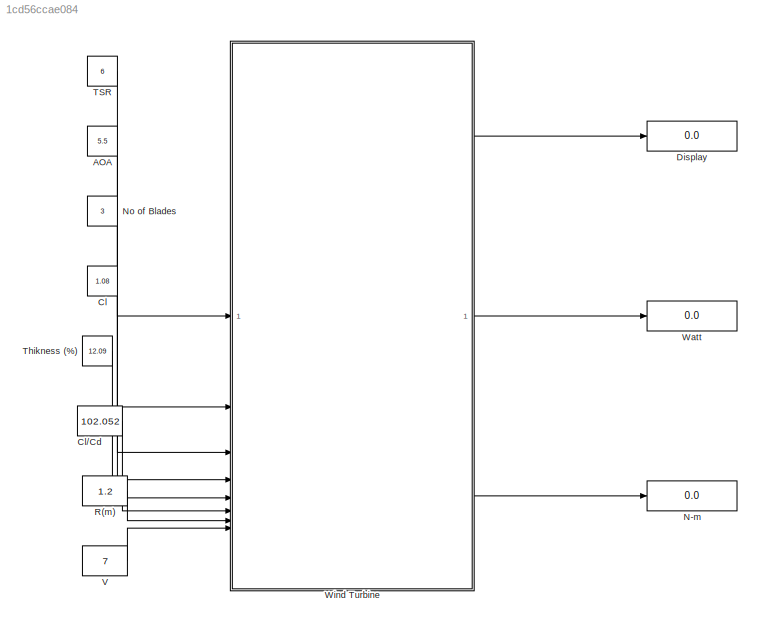
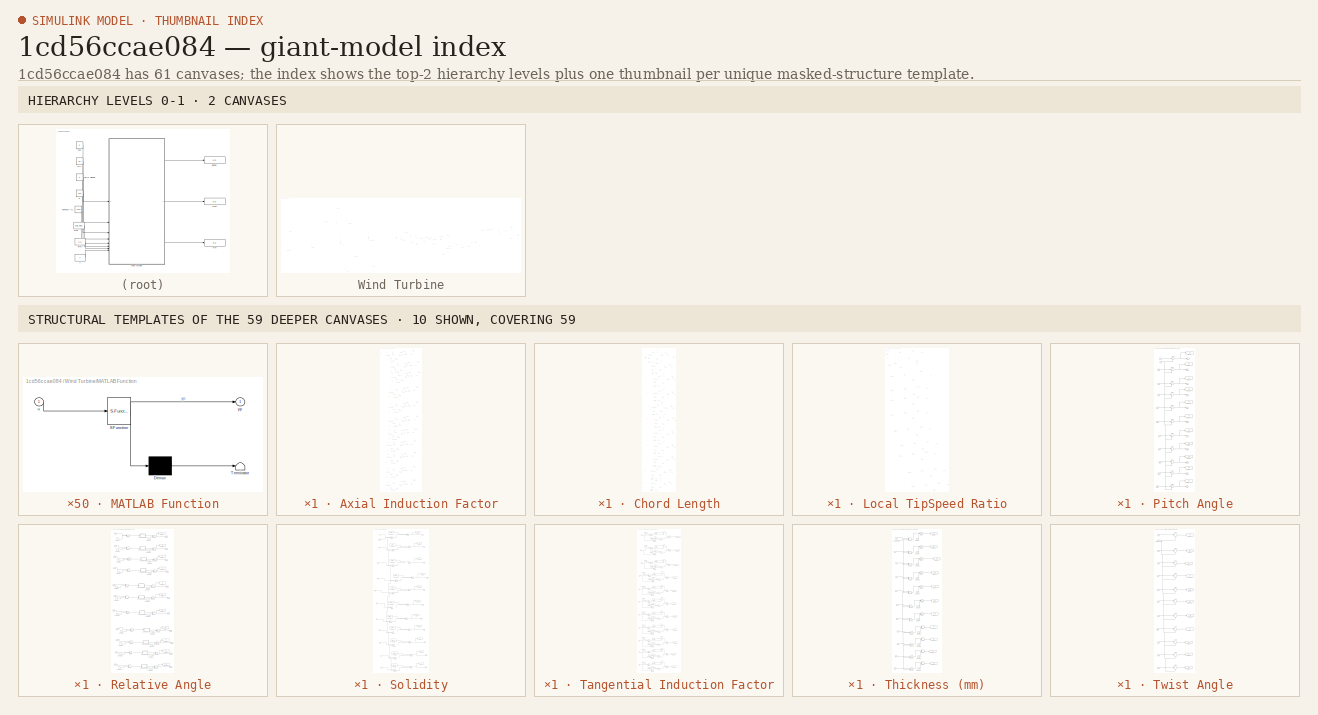
[diagram: thumbnail index - top-2 hierarchy levels (2 canvases) + 10 structural-template representatives of the remaining 59 canvases]
MODEL slx_1cd56ccae084
KIND model
CONFIG AbsTol = auto
CONFIG EnableMultiTasking = off
CONFIG FixedStep = auto
CONFIG MaxStep = auto
CONFIG MinStep = auto
CONFIG RelTol = 1e-3
CONFIG SampleTimeConstraint = Unconstrained
CONFIG SolverName = VariableStepAuto
CONFIG StartTime = 0.0
CONFIG StopTime = 10.0
BLOCK [Constant] AOA
  Value = 5.5
BLOCK [Constant] Cl
  Value = 1.08
BLOCK [Constant] Cl//Cd
  Value = 102.052
BLOCK [Display] Display
  Decimation = 1
BLOCK [Display] N-m
  Decimation = 1
BLOCK [Constant] No of Blades
  Value = 3
BLOCK [Constant] R(m)
  Value = 1.2
BLOCK [Constant] TSR
  Value = 6
BLOCK [Constant] Thikness (%)
  Value = 12.09
BLOCK [Constant] V
  Value = 7
BLOCK [Display] Watt
  Decimation = 1
BLOCK [SubSystem] Wind Turbine
BLOCK [Inport] Wind Turbine/AOA
  Port = 2
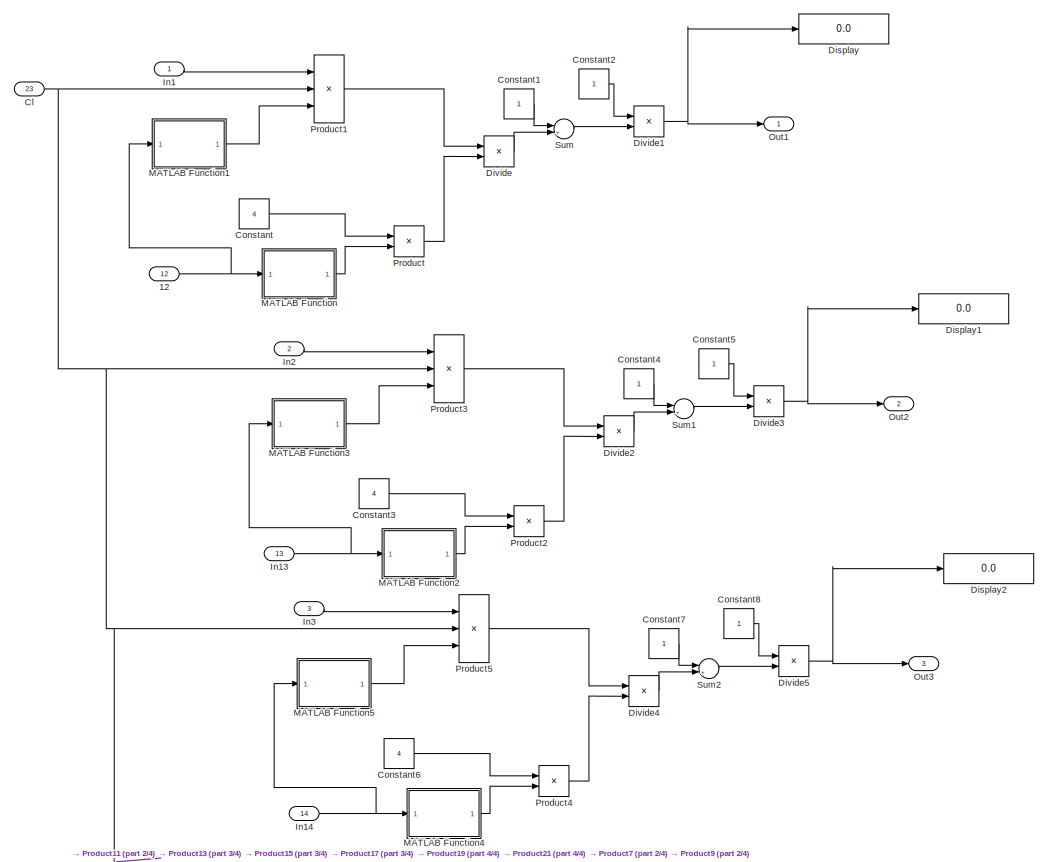
[diagram: Wind Turbine/Axial Induction Factor - part 1/4, full width, top band]
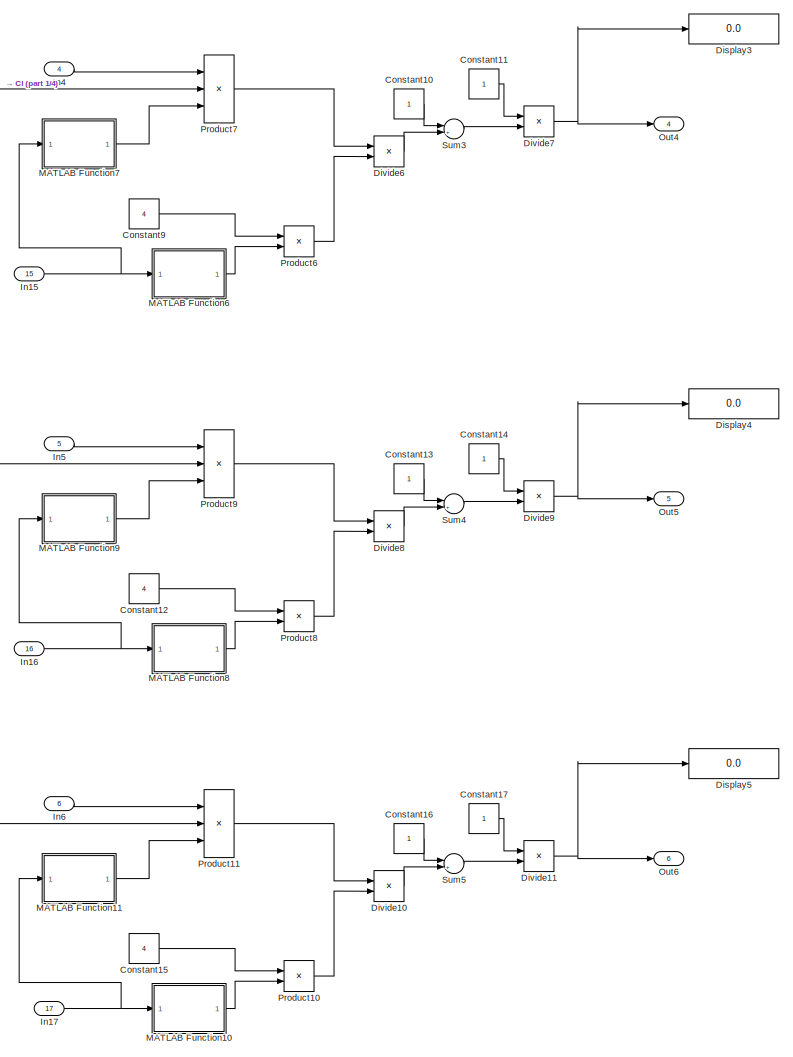
[diagram: Wind Turbine/Axial Induction Factor - part 2/4, full width, middle band]
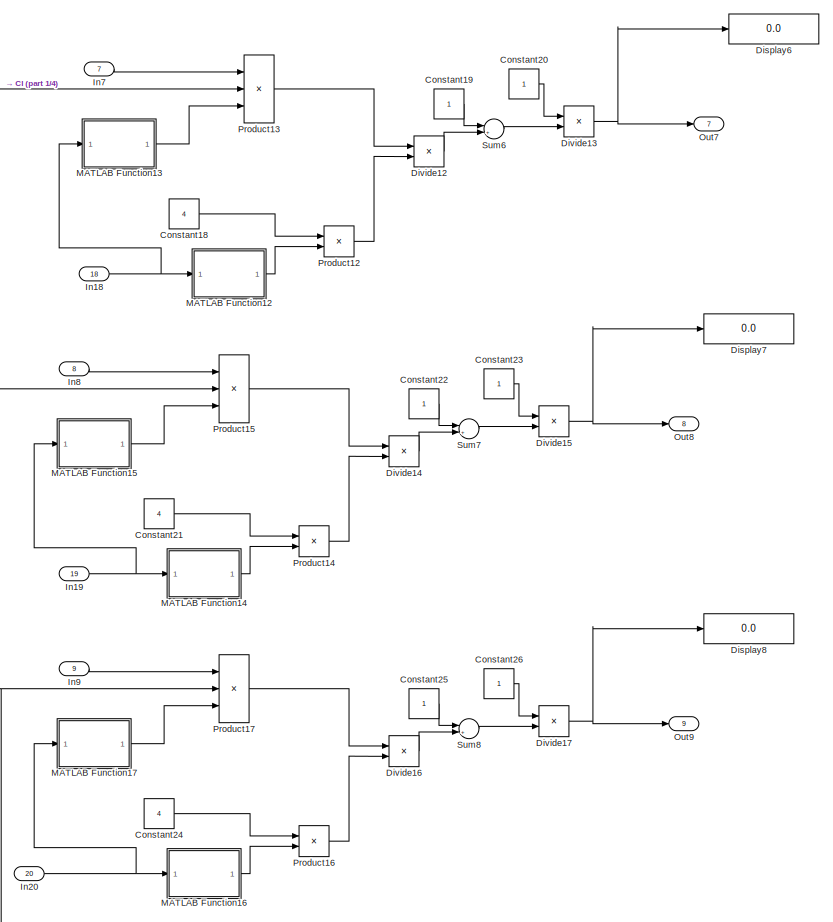
[diagram: Wind Turbine/Axial Induction Factor - part 3/4, full width, bottom band]
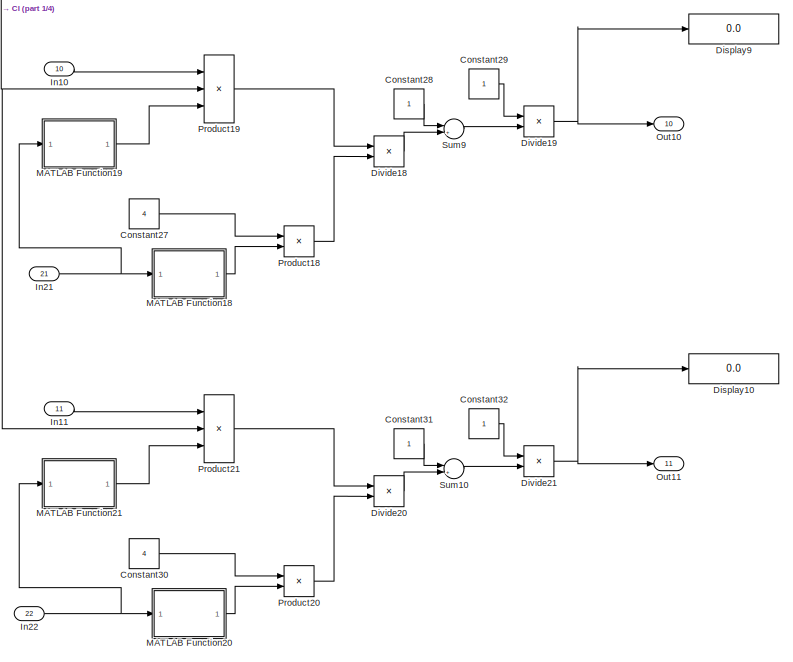
[diagram: Wind Turbine/Axial Induction Factor - part 4/4, full width, bottom band]
BLOCK [SubSystem] Wind Turbine/Axial Induction Factor
BLOCK [Inport] Wind Turbine/Axial Induction Factor/12
  Port = 12
BLOCK [Inport] Wind Turbine/Axial Induction Factor/Cl
  Port = 23
BLOCK [Constant] Wind Turbine/Axial Induction Factor/Constant
  Value = 4
BLOCK [Constant] Wind Turbine/Axial Induction Factor/Constant1
BLOCK [Constant] Wind Turbine/Axial Induction Factor/Constant10
BLOCK [Constant] Wind Turbine/Axial Induction Factor/Constant11
BLOCK [Constant] Wind Turbine/Axial Induction Factor/Constant12
  Value = 4
BLOCK [Constant] Wind Turbine/Axial Induction Factor/Constant13
BLOCK [Constant] Wind Turbine/Axial Induction Factor/Constant14
BLOCK [Constant] Wind Turbine/Axial Induction Factor/Constant15
  Value = 4
BLOCK [Constant] Wind Turbine/Axial Induction Factor/Constant16
BLOCK [Constant] Wind Turbine/Axial Induction Factor/Constant17
BLOCK [Constant] Wind Turbine/Axial Induction Factor/Constant18
  Value = 4
BLOCK [Constant] Wind Turbine/Axial Induction Factor/Constant19
BLOCK [Constant] Wind Turbine/Axial Induction Factor/Constant2
BLOCK [Constant] Wind Turbine/Axial Induction Factor/Constant20
BLOCK [Constant] Wind Turbine/Axial Induction Factor/Constant21
  Value = 4
BLOCK [Constant] Wind Turbine/Axial Induction Factor/Constant22
BLOCK [Constant] Wind Turbine/Axial Induction Factor/Constant23
BLOCK [Constant] Wind Turbine/Axial Induction Factor/Constant24
  Value = 4
BLOCK [Constant] Wind Turbine/Axial Induction Factor/Constant25
BLOCK [Constant] Wind Turbine/Axial Induction Factor/Constant26
BLOCK [Constant] Wind Turbine/Axial Induction Factor/Constant27
  Value = 4
BLOCK [Constant] Wind Turbine/Axial Induction Factor/Constant28
BLOCK [Constant] Wind Turbine/Axial Induction Factor/Constant29
BLOCK [Constant] Wind Turbine/Axial Induction Factor/Constant3
  Value = 4
BLOCK [Constant] Wind Turbine/Axial Induction Factor/Constant30
  Value = 4
BLOCK [Constant] Wind Turbine/Axial Induction Factor/Constant31
BLOCK [Constant] Wind Turbine/Axial Induction Factor/Constant32
BLOCK [Constant] Wind Turbine/Axial Induction Factor/Constant4
BLOCK [Constant] Wind Turbine/Axial Induction Factor/Constant5
BLOCK [Constant] Wind Turbine/Axial Induction Factor/Constant6
  Value = 4
BLOCK [Constant] Wind Turbine/Axial Induction Factor/Constant7
BLOCK [Constant] Wind Turbine/Axial Induction Factor/Constant8
BLOCK [Constant] Wind Turbine/Axial Induction Factor/Constant9
  Value = 4
BLOCK [Display] Wind Turbine/Axial Induction Factor/Display
  Decimation = 1
BLOCK [Display] Wind Turbine/Axial Induction Factor/Display1
  Decimation = 1
BLOCK [Display] Wind Turbine/Axial Induction Factor/Display10
  Decimation = 1
BLOCK [Display] Wind Turbine/Axial Induction Factor/Display2
  Decimation = 1
BLOCK [Display] Wind Turbine/Axial Induction Factor/Display3
  Decimation = 1
BLOCK [Display] Wind Turbine/Axial Induction Factor/Display4
  Decimation = 1
BLOCK [Display] Wind Turbine/Axial Induction Factor/Display5
  Decimation = 1
BLOCK [Display] Wind Turbine/Axial Induction Factor/Display6
  Decimation = 1
BLOCK [Display] Wind Turbine/Axial Induction Factor/Display7
  Decimation = 1
BLOCK [Display] Wind Turbine/Axial Induction Factor/Display8
  Decimation = 1
BLOCK [Display] Wind Turbine/Axial Induction Factor/Display9
  Decimation = 1
BLOCK [Product] Wind Turbine/Axial Induction Factor/Divide
  Inputs = /*
BLOCK [Product] Wind Turbine/Axial Induction Factor/Divide1
  Inputs = */
BLOCK [Product] Wind Turbine/Axial Induction Factor/Divide10
  Inputs = /*
BLOCK [Product] Wind Turbine/Axial Induction Factor/Divide11
  Inputs = */
BLOCK [Product] Wind Turbine/Axial Induction Factor/Divide12
  Inputs = /*
BLOCK [Product] Wind Turbine/Axial Induction Factor/Divide13
  Inputs = */
BLOCK [Product] Wind Turbine/Axial Induction Factor/Divide14
  Inputs = /*
BLOCK [Product] Wind Turbine/Axial Induction Factor/Divide15
  Inputs = */
BLOCK [Product] Wind Turbine/Axial Induction Factor/Divide16
  Inputs = /*
BLOCK [Product] Wind Turbine/Axial Induction Factor/Divide17
  Inputs = */
BLOCK [Product] Wind Turbine/Axial Induction Factor/Divide18
  Inputs = /*
BLOCK [Product] Wind Turbine/Axial Induction Factor/Divide19
  Inputs = */
BLOCK [Product] Wind Turbine/Axial Induction Factor/Divide2
  Inputs = /*
BLOCK [Product] Wind Turbine/Axial Induction Factor/Divide20
  Inputs = /*
BLOCK [Product] Wind Turbine/Axial Induction Factor/Divide21
  Inputs = */
BLOCK [Product] Wind Turbine/Axial Induction Factor/Divide3
  Inputs = */
BLOCK [Product] Wind Turbine/Axial Induction Factor/Divide4
  Inputs = /*
BLOCK [Product] Wind Turbine/Axial Induction Factor/Divide5
  Inputs = */
BLOCK [Product] Wind Turbine/Axial Induction Factor/Divide6
  Inputs = /*
BLOCK [Product] Wind Turbine/Axial Induction Factor/Divide7
  Inputs = */
BLOCK [Product] Wind Turbine/Axial Induction Factor/Divide8
  Inputs = /*
BLOCK [Product] Wind Turbine/Axial Induction Factor/Divide9
  Inputs = */
BLOCK [Inport] Wind Turbine/Axial Induction Factor/In1
BLOCK [Inport] Wind Turbine/Axial Induction Factor/In10
  Port = 10
BLOCK [Inport] Wind Turbine/Axial Induction Factor/In11
  Port = 11
BLOCK [Inport] Wind Turbine/Axial Induction Factor/In13
  Port = 13
BLOCK [Inport] Wind Turbine/Axial Induction Factor/In14
  Port = 14
BLOCK [Inport] Wind Turbine/Axial Induction Factor/In15
  Port = 15
BLOCK [Inport] Wind Turbine/Axial Induction Factor/In16
  Port = 16
BLOCK [Inport] Wind Turbine/Axial Induction Factor/In17
  Port = 17
BLOCK [Inport] Wind Turbine/Axial Induction Factor/In18
  Port = 18
BLOCK [Inport] Wind Turbine/Axial Induction Factor/In19
  Port = 19
BLOCK [Inport] Wind Turbine/Axial Induction Factor/In2
  Port = 2
BLOCK [Inport] Wind Turbine/Axial Induction Factor/In20
  Port = 20
BLOCK [Inport] Wind Turbine/Axial Induction Factor/In21
  Port = 21
BLOCK [Inport] Wind Turbine/Axial Induction Factor/In22
  Port = 22
BLOCK [Inport] Wind Turbine/Axial Induction Factor/In3
  Port = 3
BLOCK [Inport] Wind Turbine/Axial Induction Factor/In4
  Port = 4
BLOCK [Inport] Wind Turbine/Axial Induction Factor/In5
  Port = 5
BLOCK [Inport] Wind Turbine/Axial Induction Factor/In6
  Port = 6
BLOCK [Inport] Wind Turbine/Axial Induction Factor/In7
  Port = 7
BLOCK [Inport] Wind Turbine/Axial Induction Factor/In8
  Port = 8
BLOCK [Inport] Wind Turbine/Axial Induction Factor/In9
  Port = 9
BLOCK [SubSystem] Wind Turbine/Axial Induction Factor/MATLAB Function
  ErrorFcn = Stateflow.Translate.translate
  PermitHierarchicalResolution = ExplicitOnly
  SFBlockType = MATLAB Function
  TreatAsAtomicUnit = on
BLOCK [Demux] Wind Turbine/Axial Induction Factor/MATLAB Function/ Demux 
  Outputs = 1
BLOCK [S-Function] Wind Turbine/Axial Induction Factor/MATLAB Function/ SFunction 
  EnableBusSupport = on
  FunctionName = sf_sfun
  PortCounts = [1 2]
  SFcnIsStateOwnerBlock = off
  SFunctionDeploymentMode = off
  Tag = Stateflow S-Function 23
BLOCK [Terminator] Wind Turbine/Axial Induction Factor/MATLAB Function/ Terminator 
BLOCK [Inport] Wind Turbine/Axial Induction Factor/MATLAB Function/u
BLOCK [Outport] Wind Turbine/Axial Induction Factor/MATLAB Function/y
BLOCK [SubSystem] Wind Turbine/Axial Induction Factor/MATLAB Function1
  ErrorFcn = Stateflow.Translate.translate
  PermitHierarchicalResolution = ExplicitOnly
  SFBlockType = MATLAB Function
  TreatAsAtomicUnit = on
BLOCK [Demux] Wind Turbine/Axial Induction Factor/MATLAB Function1/ Demux 
  Outputs = 1
BLOCK [S-Function] Wind Turbine/Axial Induction Factor/MATLAB Function1/ SFunction 
  EnableBusSupport = on
  FunctionName = sf_sfun
  PortCounts = [1 2]
  SFcnIsStateOwnerBlock = off
  SFunctionDeploymentMode = off
  Tag = Stateflow S-Function 24
BLOCK [Terminator] Wind Turbine/Axial Induction Factor/MATLAB Function1/ Terminator 
BLOCK [Inport] Wind Turbine/Axial Induction Factor/MATLAB Function1/u
BLOCK [Outport] Wind Turbine/Axial Induction Factor/MATLAB Function1/y
BLOCK [SubSystem] Wind Turbine/Axial Induction Factor/MATLAB Function10
  ErrorFcn = Stateflow.Translate.translate
  PermitHierarchicalResolution = ExplicitOnly
  SFBlockType = MATLAB Function
  TreatAsAtomicUnit = on
BLOCK [Demux] Wind Turbine/Axial Induction Factor/MATLAB Function10/ Demux 
  Outputs = 1
BLOCK [S-Function] Wind Turbine/Axial Induction Factor/MATLAB Function10/ SFunction 
  EnableBusSupport = on
  FunctionName = sf_sfun
  PortCounts = [1 2]
  SFcnIsStateOwnerBlock = off
  SFunctionDeploymentMode = off
  Tag = Stateflow S-Function 33
BLOCK [Terminator] Wind Turbine/Axial Induction Factor/MATLAB Function10/ Terminator 
BLOCK [Inport] Wind Turbine/Axial Induction Factor/MATLAB Function10/u
BLOCK [Outport] Wind Turbine/Axial Induction Factor/MATLAB Function10/y
BLOCK [SubSystem] Wind Turbine/Axial Induction Factor/MATLAB Function11
  ErrorFcn = Stateflow.Translate.translate
  PermitHierarchicalResolution = ExplicitOnly
  SFBlockType = MATLAB Function
  TreatAsAtomicUnit = on
BLOCK [Demux] Wind Turbine/Axial Induction Factor/MATLAB Function11/ Demux 
  Outputs = 1
BLOCK [S-Function] Wind Turbine/Axial Induction Factor/MATLAB Function11/ SFunction 
  EnableBusSupport = on
  FunctionName = sf_sfun
  PortCounts = [1 2]
  SFcnIsStateOwnerBlock = off
  SFunctionDeploymentMode = off
  Tag = Stateflow S-Function 34
BLOCK [Terminator] Wind Turbine/Axial Induction Factor/MATLAB Function11/ Terminator 
BLOCK [Inport] Wind Turbine/Axial Induction Factor/MATLAB Function11/u
BLOCK [Outport] Wind Turbine/Axial Induction Factor/MATLAB Function11/y
BLOCK [SubSystem] Wind Turbine/Axial Induction Factor/MATLAB Function12
  ErrorFcn = Stateflow.Translate.translate
  PermitHierarchicalResolution = ExplicitOnly
  SFBlockType = MATLAB Function
  TreatAsAtomicUnit = on
BLOCK [Demux] Wind Turbine/Axial Induction Factor/MATLAB Function12/ Demux 
  Outputs = 1
BLOCK [S-Function] Wind Turbine/Axial Induction Factor/MATLAB Function12/ SFunction 
  EnableBusSupport = on
  FunctionName = sf_sfun
  PortCounts = [1 2]
  SFcnIsStateOwnerBlock = off
  SFunctionDeploymentMode = off
  Tag = Stateflow S-Function 35
BLOCK [Terminator] Wind Turbine/Axial Induction Factor/MATLAB Function12/ Terminator 
BLOCK [Inport] Wind Turbine/Axial Induction Factor/MATLAB Function12/u
BLOCK [Outport] Wind Turbine/Axial Induction Factor/MATLAB Function12/y
BLOCK [SubSystem] Wind Turbine/Axial Induction Factor/MATLAB Function13
  ErrorFcn = Stateflow.Translate.translate
  PermitHierarchicalResolution = ExplicitOnly
  SFBlockType = MATLAB Function
  TreatAsAtomicUnit = on
BLOCK [Demux] Wind Turbine/Axial Induction Factor/MATLAB Function13/ Demux 
  Outputs = 1
BLOCK [S-Function] Wind Turbine/Axial Induction Factor/MATLAB Function13/ SFunction 
  EnableBusSupport = on
  FunctionName = sf_sfun
  PortCounts = [1 2]
  SFcnIsStateOwnerBlock = off
  SFunctionDeploymentMode = off
  Tag = Stateflow S-Function 36
BLOCK [Terminator] Wind Turbine/Axial Induction Factor/MATLAB Function13/ Terminator 
BLOCK [Inport] Wind Turbine/Axial Induction Factor/MATLAB Function13/u
BLOCK [Outport] Wind Turbine/Axial Induction Factor/MATLAB Function13/y
BLOCK [SubSystem] Wind Turbine/Axial Induction Factor/MATLAB Function14
  ErrorFcn = Stateflow.Translate.translate
  PermitHierarchicalResolution = ExplicitOnly
  SFBlockType = MATLAB Function
  TreatAsAtomicUnit = on
BLOCK [Demux] Wind Turbine/Axial Induction Factor/MATLAB Function14/ Demux 
  Outputs = 1
BLOCK [S-Function] Wind Turbine/Axial Induction Factor/MATLAB Function14/ SFunction 
  EnableBusSupport = on
  FunctionName = sf_sfun
  PortCounts = [1 2]
  SFcnIsStateOwnerBlock = off
  SFunctionDeploymentMode = off
  Tag = Stateflow S-Function 37
BLOCK [Terminator] Wind Turbine/Axial Induction Factor/MATLAB Function14/ Terminator 
BLOCK [Inport] Wind Turbine/Axial Induction Factor/MATLAB Function14/u
BLOCK [Outport] Wind Turbine/Axial Induction Factor/MATLAB Function14/y
BLOCK [SubSystem] Wind Turbine/Axial Induction Factor/MATLAB Function15
  ErrorFcn = Stateflow.Translate.translate
  PermitHierarchicalResolution = ExplicitOnly
  SFBlockType = MATLAB Function
  TreatAsAtomicUnit = on
BLOCK [Demux] Wind Turbine/Axial Induction Factor/MATLAB Function15/ Demux 
  Outputs = 1
BLOCK [S-Function] Wind Turbine/Axial Induction Factor/MATLAB Function15/ SFunction 
  EnableBusSupport = on
  FunctionName = sf_sfun
  PortCounts = [1 2]
  SFcnIsStateOwnerBlock = off
  SFunctionDeploymentMode = off
  Tag = Stateflow S-Function 38
BLOCK [Terminator] Wind Turbine/Axial Induction Factor/MATLAB Function15/ Terminator 
BLOCK [Inport] Wind Turbine/Axial Induction Factor/MATLAB Function15/u
BLOCK [Outport] Wind Turbine/Axial Induction Factor/MATLAB Function15/y
BLOCK [SubSystem] Wind Turbine/Axial Induction Factor/MATLAB Function16
  ErrorFcn = Stateflow.Translate.translate
  PermitHierarchicalResolution = ExplicitOnly
  SFBlockType = MATLAB Function
  TreatAsAtomicUnit = on
BLOCK [Demux] Wind Turbine/Axial Induction Factor/MATLAB Function16/ Demux 
  Outputs = 1
BLOCK [S-Function] Wind Turbine/Axial Induction Factor/MATLAB Function16/ SFunction 
  EnableBusSupport = on
  FunctionName = sf_sfun
  PortCounts = [1 2]
  SFcnIsStateOwnerBlock = off
  SFunctionDeploymentMode = off
  Tag = Stateflow S-Function 39
BLOCK [Terminator] Wind Turbine/Axial Induction Factor/MATLAB Function16/ Terminator 
BLOCK [Inport] Wind Turbine/Axial Induction Factor/MATLAB Function16/u
BLOCK [Outport] Wind Turbine/Axial Induction Factor/MATLAB Function16/y
BLOCK [SubSystem] Wind Turbine/Axial Induction Factor/MATLAB Function17
  ErrorFcn = Stateflow.Translate.translate
  PermitHierarchicalResolution = ExplicitOnly
  SFBlockType = MATLAB Function
  TreatAsAtomicUnit = on
BLOCK [Demux] Wind Turbine/Axial Induction Factor/MATLAB Function17/ Demux 
  Outputs = 1
BLOCK [S-Function] Wind Turbine/Axial Induction Factor/MATLAB Function17/ SFunction 
  EnableBusSupport = on
  FunctionName = sf_sfun
  PortCounts = [1 2]
  SFcnIsStateOwnerBlock = off
  SFunctionDeploymentMode = off
  Tag = Stateflow S-Function 40
BLOCK [Terminator] Wind Turbine/Axial Induction Factor/MATLAB Function17/ Terminator 
BLOCK [Inport] Wind Turbine/Axial Induction Factor/MATLAB Function17/u
BLOCK [Outport] Wind Turbine/Axial Induction Factor/MATLAB Function17/y
BLOCK [SubSystem] Wind Turbine/Axial Induction Factor/MATLAB Function18
  ErrorFcn = Stateflow.Translate.translate
  PermitHierarchicalResolution = ExplicitOnly
  SFBlockType = MATLAB Function
  TreatAsAtomicUnit = on
BLOCK [Demux] Wind Turbine/Axial Induction Factor/MATLAB Function18/ Demux 
  Outputs = 1
BLOCK [S-Function] Wind Turbine/Axial Induction Factor/MATLAB Function18/ SFunction 
  EnableBusSupport = on
  FunctionName = sf_sfun
  PortCounts = [1 2]
  SFcnIsStateOwnerBlock = off
  SFunctionDeploymentMode = off
  Tag = Stateflow S-Function 41
BLOCK [Terminator] Wind Turbine/Axial Induction Factor/MATLAB Function18/ Terminator 
BLOCK [Inport] Wind Turbine/Axial Induction Factor/MATLAB Function18/u
BLOCK [Outport] Wind Turbine/Axial Induction Factor/MATLAB Function18/y
BLOCK [SubSystem] Wind Turbine/Axial Induction Factor/MATLAB Function19
  ErrorFcn = Stateflow.Translate.translate
  PermitHierarchicalResolution = ExplicitOnly
  SFBlockType = MATLAB Function
  TreatAsAtomicUnit = on
BLOCK [Demux] Wind Turbine/Axial Induction Factor/MATLAB Function19/ Demux 
  Outputs = 1
BLOCK [S-Function] Wind Turbine/Axial Induction Factor/MATLAB Function19/ SFunction 
  EnableBusSupport = on
  FunctionName = sf_sfun
  PortCounts = [1 2]
  SFcnIsStateOwnerBlock = off
  SFunctionDeploymentMode = off
  Tag = Stateflow S-Function 42
BLOCK [Terminator] Wind Turbine/Axial Induction Factor/MATLAB Function19/ Terminator 
BLOCK [Inport] Wind Turbine/Axial Induction Factor/MATLAB Function19/u
BLOCK [Outport] Wind Turbine/Axial Induction Factor/MATLAB Function19/y
BLOCK [SubSystem] Wind Turbine/Axial Induction Factor/MATLAB Function2
  ErrorFcn = Stateflow.Translate.translate
  PermitHierarchicalResolution = ExplicitOnly
  SFBlockType = MATLAB Function
  TreatAsAtomicUnit = on
BLOCK [Demux] Wind Turbine/Axial Induction Factor/MATLAB Function2/ Demux 
  Outputs = 1
BLOCK [S-Function] Wind Turbine/Axial Induction Factor/MATLAB Function2/ SFunction 
  EnableBusSupport = on
  FunctionName = sf_sfun
  PortCounts = [1 2]
  SFcnIsStateOwnerBlock = off
  SFunctionDeploymentMode = off
  Tag = Stateflow S-Function 25
BLOCK [Terminator] Wind Turbine/Axial Induction Factor/MATLAB Function2/ Terminator 
BLOCK [Inport] Wind Turbine/Axial Induction Factor/MATLAB Function2/u
BLOCK [Outport] Wind Turbine/Axial Induction Factor/MATLAB Function2/y
BLOCK [SubSystem] Wind Turbine/Axial Induction Factor/MATLAB Function20
  ErrorFcn = Stateflow.Translate.translate
  PermitHierarchicalResolution = ExplicitOnly
  SFBlockType = MATLAB Function
  TreatAsAtomicUnit = on
BLOCK [Demux] Wind Turbine/Axial Induction Factor/MATLAB Function20/ Demux 
  Outputs = 1
BLOCK [S-Function] Wind Turbine/Axial Induction Factor/MATLAB Function20/ SFunction 
  EnableBusSupport = on
  FunctionName = sf_sfun
  PortCounts = [1 2]
  SFcnIsStateOwnerBlock = off
  SFunctionDeploymentMode = off
  Tag = Stateflow S-Function 43
BLOCK [Terminator] Wind Turbine/Axial Induction Factor/MATLAB Function20/ Terminator 
BLOCK [Inport] Wind Turbine/Axial Induction Factor/MATLAB Function20/u
BLOCK [Outport] Wind Turbine/Axial Induction Factor/MATLAB Function20/y
BLOCK [SubSystem] Wind Turbine/Axial Induction Factor/MATLAB Function21
  ErrorFcn = Stateflow.Translate.translate
  PermitHierarchicalResolution = ExplicitOnly
  SFBlockType = MATLAB Function
  TreatAsAtomicUnit = on
BLOCK [Demux] Wind Turbine/Axial Induction Factor/MATLAB Function21/ Demux 
  Outputs = 1
BLOCK [S-Function] Wind Turbine/Axial Induction Factor/MATLAB Function21/ SFunction 
  EnableBusSupport = on
  FunctionName = sf_sfun
  PortCounts = [1 2]
  SFcnIsStateOwnerBlock = off
  SFunctionDeploymentMode = off
  Tag = Stateflow S-Function 44
BLOCK [Terminator] Wind Turbine/Axial Induction Factor/MATLAB Function21/ Terminator 
BLOCK [Inport] Wind Turbine/Axial Induction Factor/MATLAB Function21/u
BLOCK [Outport] Wind Turbine/Axial Induction Factor/MATLAB Function21/y
BLOCK [SubSystem] Wind Turbine/Axial Induction Factor/MATLAB Function3
  ErrorFcn = Stateflow.Translate.translate
  PermitHierarchicalResolution = ExplicitOnly
  SFBlockType = MATLAB Function
  TreatAsAtomicUnit = on
BLOCK [Demux] Wind Turbine/Axial Induction Factor/MATLAB Function3/ Demux 
  Outputs = 1
BLOCK [S-Function] Wind Turbine/Axial Induction Factor/MATLAB Function3/ SFunction 
  EnableBusSupport = on
  FunctionName = sf_sfun
  PortCounts = [1 2]
  SFcnIsStateOwnerBlock = off
  SFunctionDeploymentMode = off
  Tag = Stateflow S-Function 26
BLOCK [Terminator] Wind Turbine/Axial Induction Factor/MATLAB Function3/ Terminator 
BLOCK [Inport] Wind Turbine/Axial Induction Factor/MATLAB Function3/u
BLOCK [Outport] Wind Turbine/Axial Induction Factor/MATLAB Function3/y
BLOCK [SubSystem] Wind Turbine/Axial Induction Factor/MATLAB Function4
  ErrorFcn = Stateflow.Translate.translate
  PermitHierarchicalResolution = ExplicitOnly
  SFBlockType = MATLAB Function
  TreatAsAtomicUnit = on
BLOCK [Demux] Wind Turbine/Axial Induction Factor/MATLAB Function4/ Demux 
  Outputs = 1
BLOCK [S-Function] Wind Turbine/Axial Induction Factor/MATLAB Function4/ SFunction 
  EnableBusSupport = on
  FunctionName = sf_sfun
  PortCounts = [1 2]
  SFcnIsStateOwnerBlock = off
  SFunctionDeploymentMode = off
  Tag = Stateflow S-Function 27
BLOCK [Terminator] Wind Turbine/Axial Induction Factor/MATLAB Function4/ Terminator 
BLOCK [Inport] Wind Turbine/Axial Induction Factor/MATLAB Function4/u
BLOCK [Outport] Wind Turbine/Axial Induction Factor/MATLAB Function4/y
BLOCK [SubSystem] Wind Turbine/Axial Induction Factor/MATLAB Function5
  ErrorFcn = Stateflow.Translate.translate
  PermitHierarchicalResolution = ExplicitOnly
  SFBlockType = MATLAB Function
  TreatAsAtomicUnit = on
BLOCK [Demux] Wind Turbine/Axial Induction Factor/MATLAB Function5/ Demux 
  Outputs = 1
BLOCK [S-Function] Wind Turbine/Axial Induction Factor/MATLAB Function5/ SFunction 
  EnableBusSupport = on
  FunctionName = sf_sfun
  PortCounts = [1 2]
  SFcnIsStateOwnerBlock = off
  SFunctionDeploymentMode = off
  Tag = Stateflow S-Function 28
BLOCK [Terminator] Wind Turbine/Axial Induction Factor/MATLAB Function5/ Terminator 
BLOCK [Inport] Wind Turbine/Axial Induction Factor/MATLAB Function5/u
BLOCK [Outport] Wind Turbine/Axial Induction Factor/MATLAB Function5/y
BLOCK [SubSystem] Wind Turbine/Axial Induction Factor/MATLAB Function6
  ErrorFcn = Stateflow.Translate.translate
  PermitHierarchicalResolution = ExplicitOnly
  SFBlockType = MATLAB Function
  TreatAsAtomicUnit = on
BLOCK [Demux] Wind Turbine/Axial Induction Factor/MATLAB Function6/ Demux 
  Outputs = 1
BLOCK [S-Function] Wind Turbine/Axial Induction Factor/MATLAB Function6/ SFunction 
  EnableBusSupport = on
  FunctionName = sf_sfun
  PortCounts = [1 2]
  SFcnIsStateOwnerBlock = off
  SFunctionDeploymentMode = off
  Tag = Stateflow S-Function 29
BLOCK [Terminator] Wind Turbine/Axial Induction Factor/MATLAB Function6/ Terminator 
BLOCK [Inport] Wind Turbine/Axial Induction Factor/MATLAB Function6/u
BLOCK [Outport] Wind Turbine/Axial Induction Factor/MATLAB Function6/y
BLOCK [SubSystem] Wind Turbine/Axial Induction Factor/MATLAB Function7
  ErrorFcn = Stateflow.Translate.translate
  PermitHierarchicalResolution = ExplicitOnly
  SFBlockType = MATLAB Function
  TreatAsAtomicUnit = on
BLOCK [Demux] Wind Turbine/Axial Induction Factor/MATLAB Function7/ Demux 
  Outputs = 1
BLOCK [S-Function] Wind Turbine/Axial Induction Factor/MATLAB Function7/ SFunction 
  EnableBusSupport = on
  FunctionName = sf_sfun
  PortCounts = [1 2]
  SFcnIsStateOwnerBlock = off
  SFunctionDeploymentMode = off
  Tag = Stateflow S-Function 30
BLOCK [Terminator] Wind Turbine/Axial Induction Factor/MATLAB Function7/ Terminator 
BLOCK [Inport] Wind Turbine/Axial Induction Factor/MATLAB Function7/u
BLOCK [Outport] Wind Turbine/Axial Induction Factor/MATLAB Function7/y
BLOCK [SubSystem] Wind Turbine/Axial Induction Factor/MATLAB Function8
  ErrorFcn = Stateflow.Translate.translate
  PermitHierarchicalResolution = ExplicitOnly
  SFBlockType = MATLAB Function
  TreatAsAtomicUnit = on
BLOCK [Demux] Wind Turbine/Axial Induction Factor/MATLAB Function8/ Demux 
  Outputs = 1
BLOCK [S-Function] Wind Turbine/Axial Induction Factor/MATLAB Function8/ SFunction 
  EnableBusSupport = on
  FunctionName = sf_sfun
  PortCounts = [1 2]
  SFcnIsStateOwnerBlock = off
  SFunctionDeploymentMode = off
  Tag = Stateflow S-Function 31
BLOCK [Terminator] Wind Turbine/Axial Induction Factor/MATLAB Function8/ Terminator 
BLOCK [Inport] Wind Turbine/Axial Induction Factor/MATLAB Function8/u
BLOCK [Outport] Wind Turbine/Axial Induction Factor/MATLAB Function8/y
BLOCK [SubSystem] Wind Turbine/Axial Induction Factor/MATLAB Function9
  ErrorFcn = Stateflow.Translate.translate
  PermitHierarchicalResolution = ExplicitOnly
  SFBlockType = MATLAB Function
  TreatAsAtomicUnit = on
BLOCK [Demux] Wind Turbine/Axial Induction Factor/MATLAB Function9/ Demux 
  Outputs = 1
BLOCK [S-Function] Wind Turbine/Axial Induction Factor/MATLAB Function9/ SFunction 
  EnableBusSupport = on
  FunctionName = sf_sfun
  PortCounts = [1 2]
  SFcnIsStateOwnerBlock = off
  SFunctionDeploymentMode = off
  Tag = Stateflow S-Function 32
BLOCK [Terminator] Wind Turbine/Axial Induction Factor/MATLAB Function9/ Terminator 
BLOCK [Inport] Wind Turbine/Axial Induction Factor/MATLAB Function9/u
BLOCK [Outport] Wind Turbine/Axial Induction Factor/MATLAB Function9/y
BLOCK [Outport] Wind Turbine/Axial Induction Factor/Out1
BLOCK [Outport] Wind Turbine/Axial Induction Factor/Out10
  Port = 10
BLOCK [Outport] Wind Turbine/Axial Induction Factor/Out11
  Port = 11
BLOCK [Outport] Wind Turbine/Axial Induction Factor/Out2
  Port = 2
BLOCK [Outport] Wind Turbine/Axial Induction Factor/Out3
  Port = 3
BLOCK [Outport] Wind Turbine/Axial Induction Factor/Out4
  Port = 4
BLOCK [Outport] Wind Turbine/Axial Induction Factor/Out5
  Port = 5
BLOCK [Outport] Wind Turbine/Axial Induction Factor/Out6
  Port = 6
BLOCK [Outport] Wind Turbine/Axial Induction Factor/Out7
  Port = 7
BLOCK [Outport] Wind Turbine/Axial Induction Factor/Out8
  Port = 8
BLOCK [Outport] Wind Turbine/Axial Induction Factor/Out9
  Port = 9
BLOCK [Product] Wind Turbine/Axial Induction Factor/Product
BLOCK [Product] Wind Turbine/Axial Induction Factor/Product1
  Inputs = 3
BLOCK [Product] Wind Turbine/Axial Induction Factor/Product10
BLOCK [Product] Wind Turbine/Axial Induction Factor/Product11
  Inputs = 3
BLOCK [Product] Wind Turbine/Axial Induction Factor/Product12
BLOCK [Product] Wind Turbine/Axial Induction Factor/Product13
  Inputs = 3
BLOCK [Product] Wind Turbine/Axial Induction Factor/Product14
BLOCK [Product] Wind Turbine/Axial Induction Factor/Product15
  Inputs = 3
BLOCK [Product] Wind Turbine/Axial Induction Factor/Product16
BLOCK [Product] Wind Turbine/Axial Induction Factor/Product17
  Inputs = 3
BLOCK [Product] Wind Turbine/Axial Induction Factor/Product18
BLOCK [Product] Wind Turbine/Axial Induction Factor/Product19
  Inputs = 3
BLOCK [Product] Wind Turbine/Axial Induction Factor/Product2
BLOCK [Product] Wind Turbine/Axial Induction Factor/Product20
BLOCK [Product] Wind Turbine/Axial Induction Factor/Product21
  Inputs = 3
BLOCK [Product] Wind Turbine/Axial Induction Factor/Product3
  Inputs = 3
BLOCK [Product] Wind Turbine/Axial Induction Factor/Product4
BLOCK [Product] Wind Turbine/Axial Induction Factor/Product5
  Inputs = 3
BLOCK [Product] Wind Turbine/Axial Induction Factor/Product6
BLOCK [Product] Wind Turbine/Axial Induction Factor/Product7
  Inputs = 3
BLOCK [Product] Wind Turbine/Axial Induction Factor/Product8
BLOCK [Product] Wind Turbine/Axial Induction Factor/Product9
  Inputs = 3
BLOCK [Sum] Wind Turbine/Axial Induction Factor/Sum
  Inputs = |++
BLOCK [Sum] Wind Turbine/Axial Induction Factor/Sum1
  Inputs = |++
BLOCK [Sum] Wind Turbine/Axial Induction Factor/Sum10
  Inputs = |++
BLOCK [Sum] Wind Turbine/Axial Induction Factor/Sum2
  Inputs = |++
BLOCK [Sum] Wind Turbine/Axial Induction Factor/Sum3
  Inputs = |++
BLOCK [Sum] Wind Turbine/Axial Induction Factor/Sum4
  Inputs = |++
BLOCK [Sum] Wind Turbine/Axial Induction Factor/Sum5
  Inputs = |++
BLOCK [Sum] Wind Turbine/Axial Induction Factor/Sum6
  Inputs = |++
BLOCK [Sum] Wind Turbine/Axial Induction Factor/Sum7
  Inputs = |++
BLOCK [Sum] Wind Turbine/Axial Induction Factor/Sum8
  Inputs = |++
BLOCK [Sum] Wind Turbine/Axial Induction Factor/Sum9
  Inputs = |++
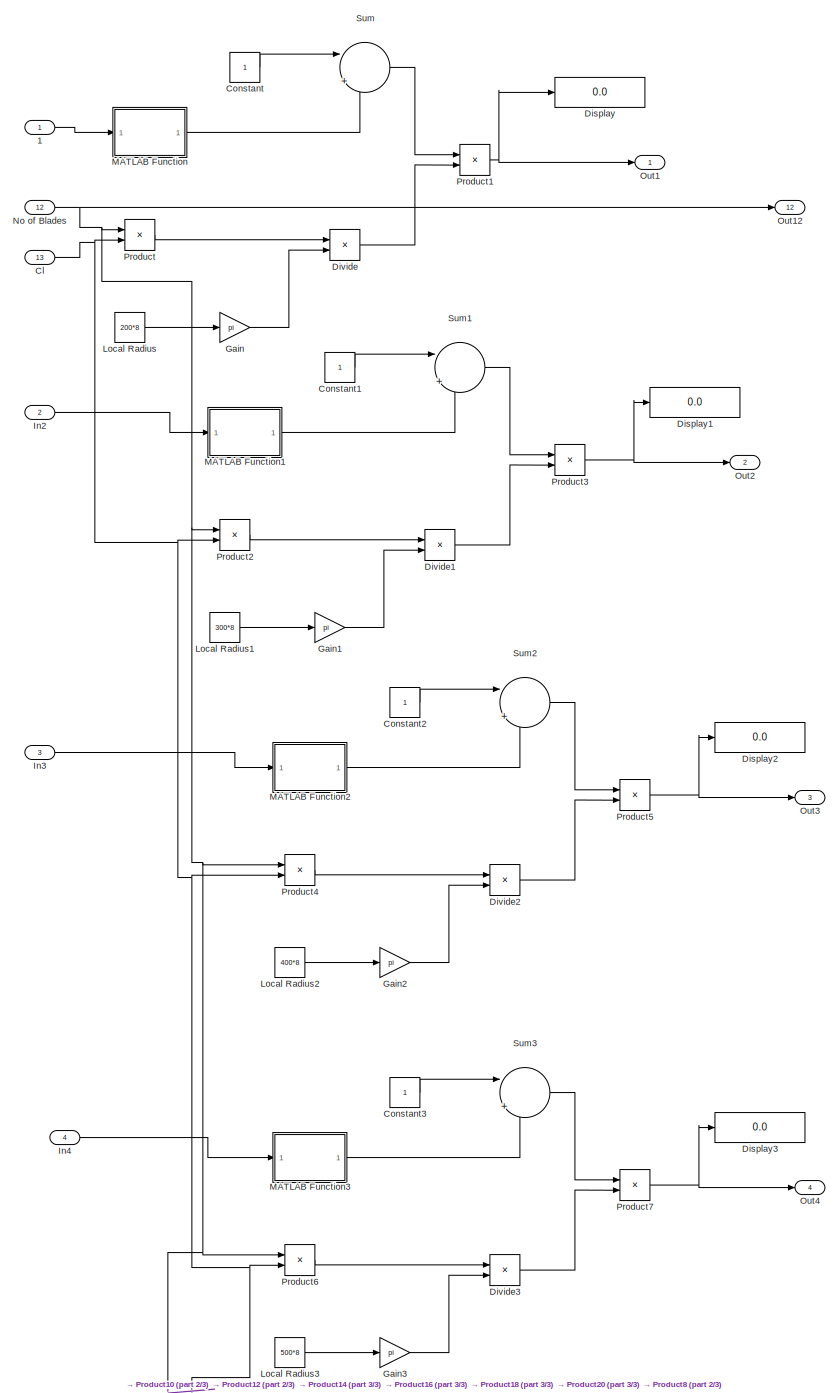
[diagram: Wind Turbine/Chord Length - part 1/3, full width, top band]
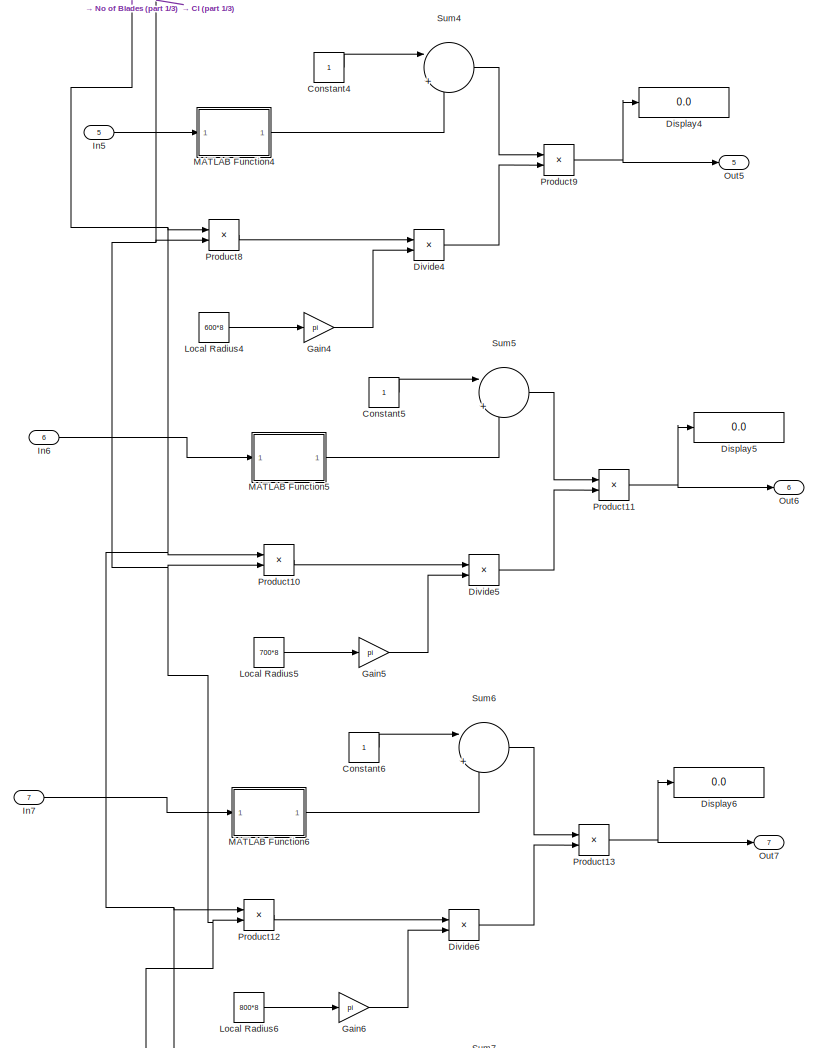
[diagram: Wind Turbine/Chord Length - part 2/3, full width, middle band]
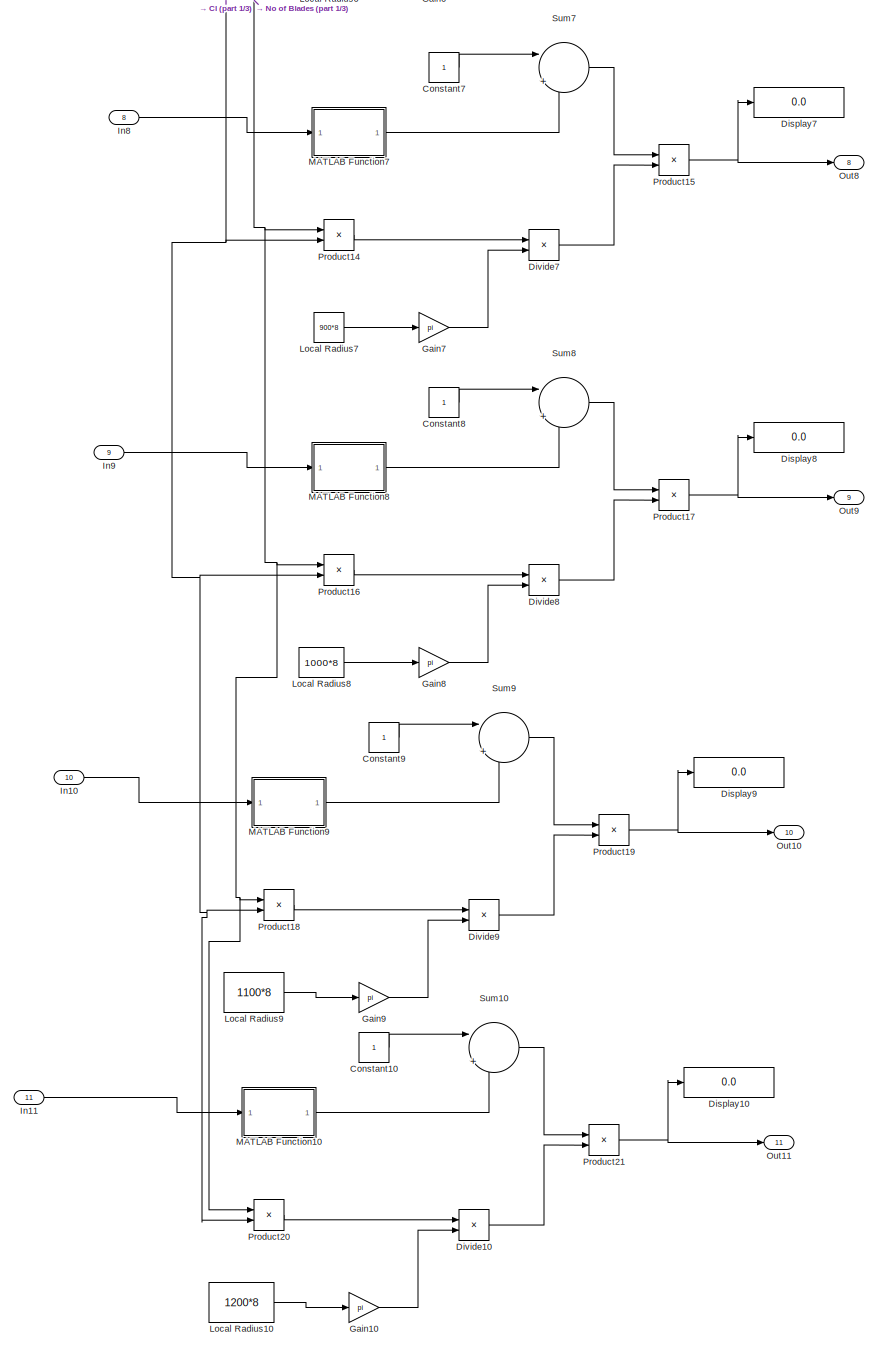
[diagram: Wind Turbine/Chord Length - part 3/3, full width, bottom band]
BLOCK [SubSystem] Wind Turbine/Chord Length
BLOCK [Inport] Wind Turbine/Chord Length/1
BLOCK [Inport] Wind Turbine/Chord Length/Cl
  Port = 13
BLOCK [Constant] Wind Turbine/Chord Length/Constant
BLOCK [Constant] Wind Turbine/Chord Length/Constant1
BLOCK [Constant] Wind Turbine/Chord Length/Constant10
BLOCK [Constant] Wind Turbine/Chord Length/Constant2
BLOCK [Constant] Wind Turbine/Chord Length/Constant3
BLOCK [Constant] Wind Turbine/Chord Length/Constant4
BLOCK [Constant] Wind Turbine/Chord Length/Constant5
BLOCK [Constant] Wind Turbine/Chord Length/Constant6
BLOCK [Constant] Wind Turbine/Chord Length/Constant7
BLOCK [Constant] Wind Turbine/Chord Length/Constant8
BLOCK [Constant] Wind Turbine/Chord Length/Constant9
BLOCK [Display] Wind Turbine/Chord Length/Display
  Decimation = 1
BLOCK [Display] Wind Turbine/Chord Length/Display1
  Decimation = 1
BLOCK [Display] Wind Turbine/Chord Length/Display10
  Decimation = 1
BLOCK [Display] Wind Turbine/Chord Length/Display2
  Decimation = 1
BLOCK [Display] Wind Turbine/Chord Length/Display3
  Decimation = 1
BLOCK [Display] Wind Turbine/Chord Length/Display4
  Decimation = 1
BLOCK [Display] Wind Turbine/Chord Length/Display5
  Decimation = 1
BLOCK [Display] Wind Turbine/Chord Length/Display6
  Decimation = 1
BLOCK [Display] Wind Turbine/Chord Length/Display7
  Decimation = 1
BLOCK [Display] Wind Turbine/Chord Length/Display8
  Decimation = 1
BLOCK [Display] Wind Turbine/Chord Length/Display9
  Decimation = 1
BLOCK [Product] Wind Turbine/Chord Length/Divide
  Inputs = /*
BLOCK [Product] Wind Turbine/Chord Length/Divide1
  Inputs = /*
BLOCK [Product] Wind Turbine/Chord Length/Divide10
  Inputs = /*
BLOCK [Product] Wind Turbine/Chord Length/Divide2
  Inputs = /*
BLOCK [Product] Wind Turbine/Chord Length/Divide3
  Inputs = /*
BLOCK [Product] Wind Turbine/Chord Length/Divide4
  Inputs = /*
BLOCK [Product] Wind Turbine/Chord Length/Divide5
  Inputs = /*
BLOCK [Product] Wind Turbine/Chord Length/Divide6
  Inputs = /*
BLOCK [Product] Wind Turbine/Chord Length/Divide7
  Inputs = /*
BLOCK [Product] Wind Turbine/Chord Length/Divide8
  Inputs = /*
BLOCK [Product] Wind Turbine/Chord Length/Divide9
  Inputs = /*
BLOCK [Gain] Wind Turbine/Chord Length/Gain
  Gain = pi
BLOCK [Gain] Wind Turbine/Chord Length/Gain1
  Gain = pi
BLOCK [Gain] Wind Turbine/Chord Length/Gain10
  Gain = pi
BLOCK [Gain] Wind Turbine/Chord Length/Gain2
  Gain = pi
BLOCK [Gain] Wind Turbine/Chord Length/Gain3
  Gain = pi
BLOCK [Gain] Wind Turbine/Chord Length/Gain4
  Gain = pi
BLOCK [Gain] Wind Turbine/Chord Length/Gain5
  Gain = pi
BLOCK [Gain] Wind Turbine/Chord Length/Gain6
  Gain = pi
BLOCK [Gain] Wind Turbine/Chord Length/Gain7
  Gain = pi
BLOCK [Gain] Wind Turbine/Chord Length/Gain8
  Gain = pi
BLOCK [Gain] Wind Turbine/Chord Length/Gain9
  Gain = pi
BLOCK [Inport] Wind Turbine/Chord Length/In10
  Port = 10
BLOCK [Inport] Wind Turbine/Chord Length/In11
  Port = 11
BLOCK [Inport] Wind Turbine/Chord Length/In2
  Port = 2
BLOCK [Inport] Wind Turbine/Chord Length/In3
  Port = 3
BLOCK [Inport] Wind Turbine/Chord Length/In4
  Port = 4
BLOCK [Inport] Wind Turbine/Chord Length/In5
  Port = 5
BLOCK [Inport] Wind Turbine/Chord Length/In6
  Port = 6
BLOCK [Inport] Wind Turbine/Chord Length/In7
  Port = 7
BLOCK [Inport] Wind Turbine/Chord Length/In8
  Port = 8
BLOCK [Inport] Wind Turbine/Chord Length/In9
  Port = 9
BLOCK [Constant] Wind Turbine/Chord Length/Local Radius
  Value = 200*8
BLOCK [Constant] Wind Turbine/Chord Length/Local Radius1
  Value = 300*8
BLOCK [Constant] Wind Turbine/Chord Length/Local Radius10
  Value = 1200*8
BLOCK [Constant] Wind Turbine/Chord Length/Local Radius2
  Value = 400*8
BLOCK [Constant] Wind Turbine/Chord Length/Local Radius3
  Value = 500*8
BLOCK [Constant] Wind Turbine/Chord Length/Local Radius4
  Value = 600*8
BLOCK [Constant] Wind Turbine/Chord Length/Local Radius5
  Value = 700*8
BLOCK [Constant] Wind Turbine/Chord Length/Local Radius6
  Value = 800*8
BLOCK [Constant] Wind Turbine/Chord Length/Local Radius7
  Value = 900*8
BLOCK [Constant] Wind Turbine/Chord Length/Local Radius8
  Value = 1000*8
BLOCK [Constant] Wind Turbine/Chord Length/Local Radius9
  Value = 1100*8
BLOCK [SubSystem] Wind Turbine/Chord Length/MATLAB Function
  ErrorFcn = Stateflow.Translate.translate
  PermitHierarchicalResolution = ExplicitOnly
  SFBlockType = MATLAB Function
  TreatAsAtomicUnit = on
BLOCK [Demux] Wind Turbine/Chord Length/MATLAB Function/ Demux 
  Outputs = 1
BLOCK [S-Function] Wind Turbine/Chord Length/MATLAB Function/ SFunction 
  EnableBusSupport = on
  FunctionName = sf_sfun
  PortCounts = [1 2]
  SFcnIsStateOwnerBlock = off
  SFunctionDeploymentMode = off
  Tag = Stateflow S-Function 12
BLOCK [Terminator] Wind Turbine/Chord Length/MATLAB Function/ Terminator 
BLOCK [Inport] Wind Turbine/Chord Length/MATLAB Function/u
BLOCK [Outport] Wind Turbine/Chord Length/MATLAB Function/y
BLOCK [SubSystem] Wind Turbine/Chord Length/MATLAB Function1
  ErrorFcn = Stateflow.Translate.translate
  PermitHierarchicalResolution = ExplicitOnly
  SFBlockType = MATLAB Function
  TreatAsAtomicUnit = on
BLOCK [Demux] Wind Turbine/Chord Length/MATLAB Function1/ Demux 
  Outputs = 1
BLOCK [S-Function] Wind Turbine/Chord Length/MATLAB Function1/ SFunction 
  EnableBusSupport = on
  FunctionName = sf_sfun
  PortCounts = [1 2]
  SFcnIsStateOwnerBlock = off
  SFunctionDeploymentMode = off
  Tag = Stateflow S-Function 13
BLOCK [Terminator] Wind Turbine/Chord Length/MATLAB Function1/ Terminator 
BLOCK [Inport] Wind Turbine/Chord Length/MATLAB Function1/u
BLOCK [Outport] Wind Turbine/Chord Length/MATLAB Function1/y
BLOCK [SubSystem] Wind Turbine/Chord Length/MATLAB Function10
  ErrorFcn = Stateflow.Translate.translate
  PermitHierarchicalResolution = ExplicitOnly
  SFBlockType = MATLAB Function
  TreatAsAtomicUnit = on
BLOCK [Demux] Wind Turbine/Chord Length/MATLAB Function10/ Demux 
  Outputs = 1
BLOCK [S-Function] Wind Turbine/Chord Length/MATLAB Function10/ SFunction 
  EnableBusSupport = on
  FunctionName = sf_sfun
  PortCounts = [1 2]
  SFcnIsStateOwnerBlock = off
  SFunctionDeploymentMode = off
  Tag = Stateflow S-Function 22
BLOCK [Terminator] Wind Turbine/Chord Length/MATLAB Function10/ Terminator 
BLOCK [Inport] Wind Turbine/Chord Length/MATLAB Function10/u
BLOCK [Outport] Wind Turbine/Chord Length/MATLAB Function10/y
BLOCK [SubSystem] Wind Turbine/Chord Length/MATLAB Function2
  ErrorFcn = Stateflow.Translate.translate
  PermitHierarchicalResolution = ExplicitOnly
  SFBlockType = MATLAB Function
  TreatAsAtomicUnit = on
BLOCK [Demux] Wind Turbine/Chord Length/MATLAB Function2/ Demux 
  Outputs = 1
BLOCK [S-Function] Wind Turbine/Chord Length/MATLAB Function2/ SFunction 
  EnableBusSupport = on
  FunctionName = sf_sfun
  PortCounts = [1 2]
  SFcnIsStateOwnerBlock = off
  SFunctionDeploymentMode = off
  Tag = Stateflow S-Function 14
BLOCK [Terminator] Wind Turbine/Chord Length/MATLAB Function2/ Terminator 
BLOCK [Inport] Wind Turbine/Chord Length/MATLAB Function2/u
BLOCK [Outport] Wind Turbine/Chord Length/MATLAB Function2/y
BLOCK [SubSystem] Wind Turbine/Chord Length/MATLAB Function3
  ErrorFcn = Stateflow.Translate.translate
  PermitHierarchicalResolution = ExplicitOnly
  SFBlockType = MATLAB Function
  TreatAsAtomicUnit = on
BLOCK [Demux] Wind Turbine/Chord Length/MATLAB Function3/ Demux 
  Outputs = 1
BLOCK [S-Function] Wind Turbine/Chord Length/MATLAB Function3/ SFunction 
  EnableBusSupport = on
  FunctionName = sf_sfun
  PortCounts = [1 2]
  SFcnIsStateOwnerBlock = off
  SFunctionDeploymentMode = off
  Tag = Stateflow S-Function 15
BLOCK [Terminator] Wind Turbine/Chord Length/MATLAB Function3/ Terminator 
BLOCK [Inport] Wind Turbine/Chord Length/MATLAB Function3/u
BLOCK [Outport] Wind Turbine/Chord Length/MATLAB Function3/y
BLOCK [SubSystem] Wind Turbine/Chord Length/MATLAB Function4
  ErrorFcn = Stateflow.Translate.translate
  PermitHierarchicalResolution = ExplicitOnly
  SFBlockType = MATLAB Function
  TreatAsAtomicUnit = on
BLOCK [Demux] Wind Turbine/Chord Length/MATLAB Function4/ Demux 
  Outputs = 1
BLOCK [S-Function] Wind Turbine/Chord Length/MATLAB Function4/ SFunction 
  EnableBusSupport = on
  FunctionName = sf_sfun
  PortCounts = [1 2]
  SFcnIsStateOwnerBlock = off
  SFunctionDeploymentMode = off
  Tag = Stateflow S-Function 16
BLOCK [Terminator] Wind Turbine/Chord Length/MATLAB Function4/ Terminator 
BLOCK [Inport] Wind Turbine/Chord Length/MATLAB Function4/u
BLOCK [Outport] Wind Turbine/Chord Length/MATLAB Function4/y
BLOCK [SubSystem] Wind Turbine/Chord Length/MATLAB Function5
  ErrorFcn = Stateflow.Translate.translate
  PermitHierarchicalResolution = ExplicitOnly
  SFBlockType = MATLAB Function
  TreatAsAtomicUnit = on
BLOCK [Demux] Wind Turbine/Chord Length/MATLAB Function5/ Demux 
  Outputs = 1
BLOCK [S-Function] Wind Turbine/Chord Length/MATLAB Function5/ SFunction 
  EnableBusSupport = on
  FunctionName = sf_sfun
  PortCounts = [1 2]
  SFcnIsStateOwnerBlock = off
  SFunctionDeploymentMode = off
  Tag = Stateflow S-Function 17
BLOCK [Terminator] Wind Turbine/Chord Length/MATLAB Function5/ Terminator 
BLOCK [Inport] Wind Turbine/Chord Length/MATLAB Function5/u
BLOCK [Outport] Wind Turbine/Chord Length/MATLAB Function5/y
BLOCK [SubSystem] Wind Turbine/Chord Length/MATLAB Function6
  ErrorFcn = Stateflow.Translate.translate
  PermitHierarchicalResolution = ExplicitOnly
  SFBlockType = MATLAB Function
  TreatAsAtomicUnit = on
BLOCK [Demux] Wind Turbine/Chord Length/MATLAB Function6/ Demux 
  Outputs = 1
BLOCK [S-Function] Wind Turbine/Chord Length/MATLAB Function6/ SFunction 
  EnableBusSupport = on
  FunctionName = sf_sfun
  PortCounts = [1 2]
  SFcnIsStateOwnerBlock = off
  SFunctionDeploymentMode = off
  Tag = Stateflow S-Function 18
BLOCK [Terminator] Wind Turbine/Chord Length/MATLAB Function6/ Terminator 
BLOCK [Inport] Wind Turbine/Chord Length/MATLAB Function6/u
BLOCK [Outport] Wind Turbine/Chord Length/MATLAB Function6/y
BLOCK [SubSystem] Wind Turbine/Chord Length/MATLAB Function7
  ErrorFcn = Stateflow.Translate.translate
  PermitHierarchicalResolution = ExplicitOnly
  SFBlockType = MATLAB Function
  TreatAsAtomicUnit = on
BLOCK [Demux] Wind Turbine/Chord Length/MATLAB Function7/ Demux 
  Outputs = 1
BLOCK [S-Function] Wind Turbine/Chord Length/MATLAB Function7/ SFunction 
  EnableBusSupport = on
  FunctionName = sf_sfun
  PortCounts = [1 2]
  SFcnIsStateOwnerBlock = off
  SFunctionDeploymentMode = off
  Tag = Stateflow S-Function 19
BLOCK [Terminator] Wind Turbine/Chord Length/MATLAB Function7/ Terminator 
BLOCK [Inport] Wind Turbine/Chord Length/MATLAB Function7/u
BLOCK [Outport] Wind Turbine/Chord Length/MATLAB Function7/y
BLOCK [SubSystem] Wind Turbine/Chord Length/MATLAB Function8
  ErrorFcn = Stateflow.Translate.translate
  PermitHierarchicalResolution = ExplicitOnly
  SFBlockType = MATLAB Function
  TreatAsAtomicUnit = on
BLOCK [Demux] Wind Turbine/Chord Length/MATLAB Function8/ Demux 
  Outputs = 1
BLOCK [S-Function] Wind Turbine/Chord Length/MATLAB Function8/ SFunction 
  EnableBusSupport = on
  FunctionName = sf_sfun
  PortCounts = [1 2]
  SFcnIsStateOwnerBlock = off
  SFunctionDeploymentMode = off
  Tag = Stateflow S-Function 20
BLOCK [Terminator] Wind Turbine/Chord Length/MATLAB Function8/ Terminator 
BLOCK [Inport] Wind Turbine/Chord Length/MATLAB Function8/u
BLOCK [Outport] Wind Turbine/Chord Length/MATLAB Function8/y
BLOCK [SubSystem] Wind Turbine/Chord Length/MATLAB Function9
  ErrorFcn = Stateflow.Translate.translate
  PermitHierarchicalResolution = ExplicitOnly
  SFBlockType = MATLAB Function
  TreatAsAtomicUnit = on
BLOCK [Demux] Wind Turbine/Chord Length/MATLAB Function9/ Demux 
  Outputs = 1
BLOCK [S-Function] Wind Turbine/Chord Length/MATLAB Function9/ SFunction 
  EnableBusSupport = on
  FunctionName = sf_sfun
  PortCounts = [1 2]
  SFcnIsStateOwnerBlock = off
  SFunctionDeploymentMode = off
  Tag = Stateflow S-Function 21
BLOCK [Terminator] Wind Turbine/Chord Length/MATLAB Function9/ Terminator 
BLOCK [Inport] Wind Turbine/Chord Length/MATLAB Function9/u
BLOCK [Outport] Wind Turbine/Chord Length/MATLAB Function9/y
BLOCK [Inport] Wind Turbine/Chord Length/No of Blades
  Port = 12
BLOCK [Outport] Wind Turbine/Chord Length/Out1
BLOCK [Outport] Wind Turbine/Chord Length/Out10
  Port = 10
BLOCK [Outport] Wind Turbine/Chord Length/Out11
  Port = 11
BLOCK [Outport] Wind Turbine/Chord Length/Out12
  Port = 12
BLOCK [Outport] Wind Turbine/Chord Length/Out2
  Port = 2
BLOCK [Outport] Wind Turbine/Chord Length/Out3
  Port = 3
BLOCK [Outport] Wind Turbine/Chord Length/Out4
  Port = 4
BLOCK [Outport] Wind Turbine/Chord Length/Out5
  Port = 5
BLOCK [Outport] Wind Turbine/Chord Length/Out6
  Port = 6
BLOCK [Outport] Wind Turbine/Chord Length/Out7
  Port = 7
BLOCK [Outport] Wind Turbine/Chord Length/Out8
  Port = 8
BLOCK [Outport] Wind Turbine/Chord Length/Out9
  Port = 9
BLOCK [Product] Wind Turbine/Chord Length/Product
BLOCK [Product] Wind Turbine/Chord Length/Product1
BLOCK [Product] Wind Turbine/Chord Length/Product10
BLOCK [Product] Wind Turbine/Chord Length/Product11
BLOCK [Product] Wind Turbine/Chord Length/Product12
BLOCK [Product] Wind Turbine/Chord Length/Product13
BLOCK [Product] Wind Turbine/Chord Length/Product14
BLOCK [Product] Wind Turbine/Chord Length/Product15
BLOCK [Product] Wind Turbine/Chord Length/Product16
BLOCK [Product] Wind Turbine/Chord Length/Product17
BLOCK [Product] Wind Turbine/Chord Length/Product18
BLOCK [Product] Wind Turbine/Chord Length/Product19
BLOCK [Product] Wind Turbine/Chord Length/Product2
BLOCK [Product] Wind Turbine/Chord Length/Product20
BLOCK [Product] Wind Turbine/Chord Length/Product21
BLOCK [Product] Wind Turbine/Chord Length/Product3
BLOCK [Product] Wind Turbine/Chord Length/Product4
BLOCK [Product] Wind Turbine/Chord Length/Product5
BLOCK [Product] Wind Turbine/Chord Length/Product6
BLOCK [Product] Wind Turbine/Chord Length/Product7
BLOCK [Product] Wind Turbine/Chord Length/Product8
BLOCK [Product] Wind Turbine/Chord Length/Product9
BLOCK [Sum] Wind Turbine/Chord Length/Sum
  Inputs = |+-
BLOCK [Sum] Wind Turbine/Chord Length/Sum1
  Inputs = |+-
BLOCK [Sum] Wind Turbine/Chord Length/Sum10
  Inputs = |+-
BLOCK [Sum] Wind Turbine/Chord Length/Sum2
  Inputs = |+-
BLOCK [Sum] Wind Turbine/Chord Length/Sum3
  Inputs = |+-
BLOCK [Sum] Wind Turbine/Chord Length/Sum4
  Inputs = |+-
BLOCK [Sum] Wind Turbine/Chord Length/Sum5
  Inputs = |+-
BLOCK [Sum] Wind Turbine/Chord Length/Sum6
  Inputs = |+-
BLOCK [Sum] Wind Turbine/Chord Length/Sum7
  Inputs = |+-
BLOCK [Sum] Wind Turbine/Chord Length/Sum8
  Inputs = |+-
BLOCK [Sum] Wind Turbine/Chord Length/Sum9
  Inputs = |+-
BLOCK [Inport] Wind Turbine/Cl
  Port = 4
BLOCK [Inport] Wind Turbine/Cl//Cd
  Port = 6
BLOCK [Constant] Wind Turbine/Constant
  Value = 16/27
BLOCK [Constant] Wind Turbine/Constant1
  Value = 8
BLOCK [Constant] Wind Turbine/Constant2
  Value = 20
BLOCK [Constant] Wind Turbine/Constant3
  Value = 1.32
BLOCK [Constant] Wind Turbine/Constant4
  Value = 0.57
BLOCK [Constant] Wind Turbine/Constant5
  Value = 2
BLOCK [Constant] Wind Turbine/Constant6
BLOCK [Constant] Wind Turbine/Constant7
  Value = 1.225
BLOCK [Outport] Wind Turbine/Cp
BLOCK [Display] Wind Turbine/Display
  Decimation = 1
BLOCK [Display] Wind Turbine/Display1
  Decimation = 1
BLOCK [Display] Wind Turbine/Display2
  Decimation = 1
BLOCK [Product] Wind Turbine/Divide
  Inputs = /*
BLOCK [Product] Wind Turbine/Divide1
  Inputs = */
BLOCK [Product] Wind Turbine/Divide2
  Inputs = */
BLOCK [Product] Wind Turbine/Divide3
  Inputs = */
BLOCK [Product] Wind Turbine/Divide4
  Inputs = */
BLOCK [Gain] Wind Turbine/Gain
  Gain = 1/2
BLOCK [Gain] Wind Turbine/Gain1
  Gain = pi
BLOCK [SubSystem] Wind Turbine/Local TipSpeed Ratio
BLOCK [Display] Wind Turbine/Local TipSpeed Ratio/Display
  Decimation = 1
BLOCK [Display] Wind Turbine/Local TipSpeed Ratio/Display1
  Decimation = 1
BLOCK [Display] Wind Turbine/Local TipSpeed Ratio/Display10
  Decimation = 1
BLOCK [Display] Wind Turbine/Local TipSpeed Ratio/Display2
  Decimation = 1
BLOCK [Display] Wind Turbine/Local TipSpeed Ratio/Display3
  Decimation = 1
BLOCK [Display] Wind Turbine/Local TipSpeed Ratio/Display4
  Decimation = 1
BLOCK [Display] Wind Turbine/Local TipSpeed Ratio/Display5
  Decimation = 1
BLOCK [Display] Wind Turbine/Local TipSpeed Ratio/Display6
  Decimation = 1
BLOCK [Display] Wind Turbine/Local TipSpeed Ratio/Display7
  Decimation = 1
BLOCK [Display] Wind Turbine/Local TipSpeed Ratio/Display8
  Decimation = 1
BLOCK [Display] Wind Turbine/Local TipSpeed Ratio/Display9
  Decimation = 1
BLOCK [Product] Wind Turbine/Local TipSpeed Ratio/Divide
  Inputs = */
BLOCK [Product] Wind Turbine/Local TipSpeed Ratio/Divide1
  Inputs = */
BLOCK [Product] Wind Turbine/Local TipSpeed Ratio/Divide10
  Inputs = */
BLOCK [Product] Wind Turbine/Local TipSpeed Ratio/Divide2
  Inputs = */
BLOCK [Product] Wind Turbine/Local TipSpeed Ratio/Divide3
  Inputs = */
BLOCK [Product] Wind Turbine/Local TipSpeed Ratio/Divide4
  Inputs = */
BLOCK [Product] Wind Turbine/Local TipSpeed Ratio/Divide5
  Inputs = */
BLOCK [Product] Wind Turbine/Local TipSpeed Ratio/Divide6
  Inputs = */
BLOCK [Product] Wind Turbine/Local TipSpeed Ratio/Divide7
  Inputs = */
BLOCK [Product] Wind Turbine/Local TipSpeed Ratio/Divide8
  Inputs = */
BLOCK [Product] Wind Turbine/Local TipSpeed Ratio/Divide9
  Inputs = */
BLOCK [Constant] Wind Turbine/Local TipSpeed Ratio/Local Radius 1
  Value = 200
BLOCK [Constant] Wind Turbine/Local TipSpeed Ratio/Local Radius 10
  Value = 1100
BLOCK [Constant] Wind Turbine/Local TipSpeed Ratio/Local Radius 11
  Value = 1200
BLOCK [Constant] Wind Turbine/Local TipSpeed Ratio/Local Radius 2
  Value = 300
BLOCK [Constant] Wind Turbine/Local TipSpeed Ratio/Local Radius 3
  Value = 400
BLOCK [Constant] Wind Turbine/Local TipSpeed Ratio/Local Radius 4
  Value = 500
BLOCK [Constant] Wind Turbine/Local TipSpeed Ratio/Local Radius 5
  Value = 600
BLOCK [Constant] Wind Turbine/Local TipSpeed Ratio/Local Radius 6
  Value = 700
BLOCK [Constant] Wind Turbine/Local TipSpeed Ratio/Local Radius 7
  Value = 800
BLOCK [Constant] Wind Turbine/Local TipSpeed Ratio/Local Radius 8
  Value = 900
BLOCK [Constant] Wind Turbine/Local TipSpeed Ratio/Local Radius 9
  Value = 1000
BLOCK [Product] Wind Turbine/Local TipSpeed Ratio/Product
BLOCK [Product] Wind Turbine/Local TipSpeed Ratio/Product1
BLOCK [Product] Wind Turbine/Local TipSpeed Ratio/Product10
BLOCK [Product] Wind Turbine/Local TipSpeed Ratio/Product2
BLOCK [Product] Wind Turbine/Local TipSpeed Ratio/Product3
BLOCK [Product] Wind Turbine/Local TipSpeed Ratio/Product4
BLOCK [Product] Wind Turbine/Local TipSpeed Ratio/Product5
BLOCK [Product] Wind Turbine/Local TipSpeed Ratio/Product6
BLOCK [Product] Wind Turbine/Local TipSpeed Ratio/Product7
BLOCK [Product] Wind Turbine/Local TipSpeed Ratio/Product8
BLOCK [Product] Wind Turbine/Local TipSpeed Ratio/Product9
BLOCK [Constant] Wind Turbine/Local TipSpeed Ratio/R
  Value = 1200
BLOCK [Outport] Wind Turbine/Local TipSpeed Ratio/TSR 1
BLOCK [Outport] Wind Turbine/Local TipSpeed Ratio/TSR 10
  Port = 10
BLOCK [Outport] Wind Turbine/Local TipSpeed Ratio/TSR 11
  Port = 11
BLOCK [Outport] Wind Turbine/Local TipSpeed Ratio/TSR 2
  Port = 2
BLOCK [Outport] Wind Turbine/Local TipSpeed Ratio/TSR 3
  Port = 3
BLOCK [Outport] Wind Turbine/Local TipSpeed Ratio/TSR 4
  Port = 4
BLOCK [Outport] Wind Turbine/Local TipSpeed Ratio/TSR 5
  Port = 5
BLOCK [Outport] Wind Turbine/Local TipSpeed Ratio/TSR 6
  Port = 6
BLOCK [Outport] Wind Turbine/Local TipSpeed Ratio/TSR 7
  Port = 7
BLOCK [Outport] Wind Turbine/Local TipSpeed Ratio/TSR 8
  Port = 8
BLOCK [Outport] Wind Turbine/Local TipSpeed Ratio/TSR 9
  Port = 9
BLOCK [Inport] Wind Turbine/Local TipSpeed Ratio/Tip Speed ratio
BLOCK [SubSystem] Wind Turbine/MATLAB Function
  ErrorFcn = Stateflow.Translate.translate
  PermitHierarchicalResolution = ExplicitOnly
  SFBlockType = MATLAB Function
  TreatAsAtomicUnit = on
BLOCK [Demux] Wind Turbine/MATLAB Function/ Demux 
  Outputs = 1
BLOCK [S-Function] Wind Turbine/MATLAB Function/ SFunction 
  EnableBusSupport = on
  FunctionName = sf_sfun
  PortCounts = [1 2]
  SFcnIsStateOwnerBlock = off
  SFunctionDeploymentMode = off
  Tag = Stateflow S-Function 45
BLOCK [Terminator] Wind Turbine/MATLAB Function/ Terminator 
BLOCK [Inport] Wind Turbine/MATLAB Function/u
BLOCK [Outport] Wind Turbine/MATLAB Function/yp
BLOCK [SubSystem] Wind Turbine/MATLAB Function1
  ErrorFcn = Stateflow.Translate.translate
  PermitHierarchicalResolution = ExplicitOnly
  SFBlockType = MATLAB Function
  TreatAsAtomicUnit = on
BLOCK [Demux] Wind Turbine/MATLAB Function1/ Demux 
  Outputs = 1
BLOCK [S-Function] Wind Turbine/MATLAB Function1/ SFunction 
  EnableBusSupport = on
  FunctionName = sf_sfun
  PortCounts = [1 2]
  SFcnIsStateOwnerBlock = off
  SFunctionDeploymentMode = off
  Tag = Stateflow S-Function 46
BLOCK [Terminator] Wind Turbine/MATLAB Function1/ Terminator 
BLOCK [Inport] Wind Turbine/MATLAB Function1/u
BLOCK [Outport] Wind Turbine/MATLAB Function1/yap
BLOCK [SubSystem] Wind Turbine/MATLAB Function2
  ErrorFcn = Stateflow.Translate.translate
  PermitHierarchicalResolution = ExplicitOnly
  SFBlockType = MATLAB Function
  TreatAsAtomicUnit = on
BLOCK [Demux] Wind Turbine/MATLAB Function2/ Demux 
  Outputs = 1
BLOCK [S-Function] Wind Turbine/MATLAB Function2/ SFunction 
  EnableBusSupport = on
  FunctionName = sf_sfun
  PortCounts = [1 2]
  SFcnIsStateOwnerBlock = off
  SFunctionDeploymentMode = off
  Tag = Stateflow S-Function 47
BLOCK [Terminator] Wind Turbine/MATLAB Function2/ Terminator 
BLOCK [Inport] Wind Turbine/MATLAB Function2/u
BLOCK [Outport] Wind Turbine/MATLAB Function2/yp
BLOCK [SubSystem] Wind Turbine/MATLAB Function3
  ErrorFcn = Stateflow.Translate.translate
  PermitHierarchicalResolution = ExplicitOnly
  SFBlockType = MATLAB Function
  TreatAsAtomicUnit = on
BLOCK [Demux] Wind Turbine/MATLAB Function3/ Demux 
  Outputs = 1
BLOCK [S-Function] Wind Turbine/MATLAB Function3/ SFunction 
  EnableBusSupport = on
  FunctionName = sf_sfun
  PortCounts = [1 2]
  SFcnIsStateOwnerBlock = off
  SFunctionDeploymentMode = off
  Tag = Stateflow S-Function 48
BLOCK [Terminator] Wind Turbine/MATLAB Function3/ Terminator 
BLOCK [Inport] Wind Turbine/MATLAB Function3/u
BLOCK [Outport] Wind Turbine/MATLAB Function3/yp
BLOCK [SubSystem] Wind Turbine/MATLAB Function4
  ErrorFcn = Stateflow.Translate.translate
  PermitHierarchicalResolution = ExplicitOnly
  SFBlockType = MATLAB Function
  TreatAsAtomicUnit = on
BLOCK [Demux] Wind Turbine/MATLAB Function4/ Demux 
  Outputs = 1
BLOCK [S-Function] Wind Turbine/MATLAB Function4/ SFunction 
  EnableBusSupport = on
  FunctionName = sf_sfun
  PortCounts = [1 2]
  SFcnIsStateOwnerBlock = off
  SFunctionDeploymentMode = off
  Tag = Stateflow S-Function 49
BLOCK [Terminator] Wind Turbine/MATLAB Function4/ Terminator 
BLOCK [Inport] Wind Turbine/MATLAB Function4/u
BLOCK [Outport] Wind Turbine/MATLAB Function4/yp
BLOCK [SubSystem] Wind Turbine/MATLAB Function5
  ErrorFcn = Stateflow.Translate.translate
  PermitHierarchicalResolution = ExplicitOnly
  SFBlockType = MATLAB Function
  TreatAsAtomicUnit = on
BLOCK [Demux] Wind Turbine/MATLAB Function5/ Demux 
  Outputs = 1
BLOCK [S-Function] Wind Turbine/MATLAB Function5/ SFunction 
  EnableBusSupport = on
  FunctionName = sf_sfun
  PortCounts = [1 2]
  SFcnIsStateOwnerBlock = off
  SFunctionDeploymentMode = off
  Tag = Stateflow S-Function 50
BLOCK [Terminator] Wind Turbine/MATLAB Function5/ Terminator 
BLOCK [Inport] Wind Turbine/MATLAB Function5/u
BLOCK [Outport] Wind Turbine/MATLAB Function5/yp
BLOCK [Inport] Wind Turbine/No. of Blades
  Port = 3
BLOCK [SubSystem] Wind Turbine/Pitch Angle
BLOCK [Outport] Wind Turbine/Pitch Angle/11
  Port = 11
BLOCK [Inport] Wind Turbine/Pitch Angle/AOA
  Port = 12
BLOCK [Display] Wind Turbine/Pitch Angle/Display
  Decimation = 1
BLOCK [Display] Wind Turbine/Pitch Angle/Display1
  Decimation = 1
BLOCK [Display] Wind Turbine/Pitch Angle/Display10
  Decimation = 1
BLOCK [Display] Wind Turbine/Pitch Angle/Display2
  Decimation = 1
BLOCK [Display] Wind Turbine/Pitch Angle/Display3
  Decimation = 1
BLOCK [Display] Wind Turbine/Pitch Angle/Display4
  Decimation = 1
BLOCK [Display] Wind Turbine/Pitch Angle/Display5
  Decimation = 1
BLOCK [Display] Wind Turbine/Pitch Angle/Display6
  Decimation = 1
BLOCK [Display] Wind Turbine/Pitch Angle/Display7
  Decimation = 1
BLOCK [Display] Wind Turbine/Pitch Angle/Display8
  Decimation = 1
BLOCK [Display] Wind Turbine/Pitch Angle/Display9
  Decimation = 1
BLOCK [Inport] Wind Turbine/Pitch Angle/In1
BLOCK [Inport] Wind Turbine/Pitch Angle/In10
  Port = 10
BLOCK [Inport] Wind Turbine/Pitch Angle/In11
  Port = 11
BLOCK [Inport] Wind Turbine/Pitch Angle/In2
  Port = 2
BLOCK [Inport] Wind Turbine/Pitch Angle/In3
  Port = 3
BLOCK [Inport] Wind Turbine/Pitch Angle/In4
  Port = 4
BLOCK [Inport] Wind Turbine/Pitch Angle/In5
  Port = 5
BLOCK [Inport] Wind Turbine/Pitch Angle/In6
  Port = 6
BLOCK [Inport] Wind Turbine/Pitch Angle/In7
  Port = 7
BLOCK [Inport] Wind Turbine/Pitch Angle/In8
  Port = 8
BLOCK [Inport] Wind Turbine/Pitch Angle/In9
  Port = 9
BLOCK [Outport] Wind Turbine/Pitch Angle/Out1
BLOCK [Outport] Wind Turbine/Pitch Angle/Out10
  Port = 10
BLOCK [Outport] Wind Turbine/Pitch Angle/Out2
  Port = 3
BLOCK [Outport] Wind Turbine/Pitch Angle/Out3
  Port = 2
BLOCK [Outport] Wind Turbine/Pitch Angle/Out4
  Port = 4
BLOCK [Outport] Wind Turbine/Pitch Angle/Out5
  Port = 5
BLOCK [Outport] Wind Turbine/Pitch Angle/Out6
  Port = 6
BLOCK [Outport] Wind Turbine/Pitch Angle/Out7
  Port = 7
BLOCK [Outport] Wind Turbine/Pitch Angle/Out8
  Port = 8
BLOCK [Outport] Wind Turbine/Pitch Angle/Out9
  Port = 9
BLOCK [Sum] Wind Turbine/Pitch Angle/Sum
  Inputs = |+-
BLOCK [Sum] Wind Turbine/Pitch Angle/Sum1
  Inputs = |+-
BLOCK [Sum] Wind Turbine/Pitch Angle/Sum10
  Inputs = |+-
BLOCK [Sum] Wind Turbine/Pitch Angle/Sum2
  Inputs = |+-
BLOCK [Sum] Wind Turbine/Pitch Angle/Sum3
  Inputs = |+-
BLOCK [Sum] Wind Turbine/Pitch Angle/Sum4
  Inputs = |+-
BLOCK [Sum] Wind Turbine/Pitch Angle/Sum5
  Inputs = |+-
BLOCK [Sum] Wind Turbine/Pitch Angle/Sum6
  Inputs = |+-
BLOCK [Sum] Wind Turbine/Pitch Angle/Sum7
  Inputs = |+-
BLOCK [Sum] Wind Turbine/Pitch Angle/Sum8
  Inputs = |+-
BLOCK [Sum] Wind Turbine/Pitch Angle/Sum9
  Inputs = |+-
BLOCK [Outport] Wind Turbine/Pout
  Port = 2
BLOCK [Product] Wind Turbine/Product
  Inputs = 4
BLOCK [Product] Wind Turbine/Product1
BLOCK [Product] Wind Turbine/Product2
BLOCK [Product] Wind Turbine/Product3
BLOCK [Product] Wind Turbine/Product4
BLOCK [Product] Wind Turbine/Product5
BLOCK [Inport] Wind Turbine/R(m)
  Port = 7
BLOCK [SubSystem] Wind Turbine/Relative Angle
BLOCK [Constant] Wind Turbine/Relative Angle/Constant
BLOCK [Constant] Wind Turbine/Relative Angle/Constant1
  Value = 2/3
BLOCK [Constant] Wind Turbine/Relative Angle/Constant10
BLOCK [Constant] Wind Turbine/Relative Angle/Constant11
  Value = 2/3
BLOCK [Constant] Wind Turbine/Relative Angle/Constant12
BLOCK [Constant] Wind Turbine/Relative Angle/Constant13
  Value = 2/3
BLOCK [Constant] Wind Turbine/Relative Angle/Constant14
BLOCK [Constant] Wind Turbine/Relative Angle/Constant15
  Value = 2/3
BLOCK [Constant] Wind Turbine/Relative Angle/Constant16
BLOCK [Constant] Wind Turbine/Relative Angle/Constant17
  Value = 2/3
BLOCK [Constant] Wind Turbine/Relative Angle/Constant18
BLOCK [Constant] Wind Turbine/Relative Angle/Constant19
  Value = 2/3
BLOCK [Constant] Wind Turbine/Relative Angle/Constant2
BLOCK [Constant] Wind Turbine/Relative Angle/Constant20
BLOCK [Constant] Wind Turbine/Relative Angle/Constant21
  Value = 2/3
BLOCK [Constant] Wind Turbine/Relative Angle/Constant3
  Value = 2/3
BLOCK [Constant] Wind Turbine/Relative Angle/Constant4
BLOCK [Constant] Wind Turbine/Relative Angle/Constant5
  Value = 2/3
BLOCK [Constant] Wind Turbine/Relative Angle/Constant6
BLOCK [Constant] Wind Turbine/Relative Angle/Constant7
  Value = 2/3
BLOCK [Constant] Wind Turbine/Relative Angle/Constant8
BLOCK [Constant] Wind Turbine/Relative Angle/Constant9
  Value = 2/3
BLOCK [Display] Wind Turbine/Relative Angle/Display
  Decimation = 1
BLOCK [Display] Wind Turbine/Relative Angle/Display1
  Decimation = 1
BLOCK [Display] Wind Turbine/Relative Angle/Display10
  Decimation = 1
BLOCK [Display] Wind Turbine/Relative Angle/Display2
  Decimation = 1
BLOCK [Display] Wind Turbine/Relative Angle/Display3
  Decimation = 1
BLOCK [Display] Wind Turbine/Relative Angle/Display4
  Decimation = 1
BLOCK [Display] Wind Turbine/Relative Angle/Display5
  Decimation = 1
BLOCK [Display] Wind Turbine/Relative Angle/Display6
  Decimation = 1
BLOCK [Display] Wind Turbine/Relative Angle/Display7
  Decimation = 1
BLOCK [Display] Wind Turbine/Relative Angle/Display8
  Decimation = 1
BLOCK [Display] Wind Turbine/Relative Angle/Display9
  Decimation = 1
BLOCK [Product] Wind Turbine/Relative Angle/Divide
  Inputs = /*
BLOCK [Product] Wind Turbine/Relative Angle/Divide1
  Inputs = /*
BLOCK [Product] Wind Turbine/Relative Angle/Divide10
  Inputs = /*
BLOCK [Product] Wind Turbine/Relative Angle/Divide2
  Inputs = /*
BLOCK [Product] Wind Turbine/Relative Angle/Divide3
  Inputs = /*
BLOCK [Product] Wind Turbine/Relative Angle/Divide4
  Inputs = /*
BLOCK [Product] Wind Turbine/Relative Angle/Divide5
  Inputs = /*
BLOCK [Product] Wind Turbine/Relative Angle/Divide6
  Inputs = /*
BLOCK [Product] Wind Turbine/Relative Angle/Divide7
  Inputs = /*
BLOCK [Product] Wind Turbine/Relative Angle/Divide8
  Inputs = /*
BLOCK [Product] Wind Turbine/Relative Angle/Divide9
  Inputs = /*
BLOCK [SubSystem] Wind Turbine/Relative Angle/MATLAB Function
  ErrorFcn = Stateflow.Translate.translate
  PermitHierarchicalResolution = ExplicitOnly
  SFBlockType = MATLAB Function
  TreatAsAtomicUnit = on
BLOCK [Demux] Wind Turbine/Relative Angle/MATLAB Function/ Demux 
  Outputs = 1
BLOCK [S-Function] Wind Turbine/Relative Angle/MATLAB Function/ SFunction 
  EnableBusSupport = on
  FunctionName = sf_sfun
  PortCounts = [1 2]
  SFcnIsStateOwnerBlock = off
  SFunctionDeploymentMode = off
  Tag = Stateflow S-Function 2
BLOCK [Terminator] Wind Turbine/Relative Angle/MATLAB Function/ Terminator 
BLOCK [Inport] Wind Turbine/Relative Angle/MATLAB Function/u
BLOCK [Outport] Wind Turbine/Relative Angle/MATLAB Function/y
BLOCK [SubSystem] Wind Turbine/Relative Angle/MATLAB Function1
  ErrorFcn = Stateflow.Translate.translate
  PermitHierarchicalResolution = ExplicitOnly
  SFBlockType = MATLAB Function
  TreatAsAtomicUnit = on
BLOCK [Demux] Wind Turbine/Relative Angle/MATLAB Function1/ Demux 
  Outputs = 1
BLOCK [S-Function] Wind Turbine/Relative Angle/MATLAB Function1/ SFunction 
  EnableBusSupport = on
  FunctionName = sf_sfun
  PortCounts = [1 2]
  SFcnIsStateOwnerBlock = off
  SFunctionDeploymentMode = off
  Tag = Stateflow S-Function 1
BLOCK [Terminator] Wind Turbine/Relative Angle/MATLAB Function1/ Terminator 
BLOCK [Inport] Wind Turbine/Relative Angle/MATLAB Function1/u
BLOCK [Outport] Wind Turbine/Relative Angle/MATLAB Function1/y
BLOCK [SubSystem] Wind Turbine/Relative Angle/MATLAB Function10
  ErrorFcn = Stateflow.Translate.translate
  PermitHierarchicalResolution = ExplicitOnly
  SFBlockType = MATLAB Function
  TreatAsAtomicUnit = on
BLOCK [Demux] Wind Turbine/Relative Angle/MATLAB Function10/ Demux 
  Outputs = 1
BLOCK [S-Function] Wind Turbine/Relative Angle/MATLAB Function10/ SFunction 
  EnableBusSupport = on
  FunctionName = sf_sfun
  PortCounts = [1 2]
  SFcnIsStateOwnerBlock = off
  SFunctionDeploymentMode = off
  Tag = Stateflow S-Function 11
BLOCK [Terminator] Wind Turbine/Relative Angle/MATLAB Function10/ Terminator 
BLOCK [Inport] Wind Turbine/Relative Angle/MATLAB Function10/u
BLOCK [Outport] Wind Turbine/Relative Angle/MATLAB Function10/y
BLOCK [SubSystem] Wind Turbine/Relative Angle/MATLAB Function2
  ErrorFcn = Stateflow.Translate.translate
  PermitHierarchicalResolution = ExplicitOnly
  SFBlockType = MATLAB Function
  TreatAsAtomicUnit = on
BLOCK [Demux] Wind Turbine/Relative Angle/MATLAB Function2/ Demux 
  Outputs = 1
BLOCK [S-Function] Wind Turbine/Relative Angle/MATLAB Function2/ SFunction 
  EnableBusSupport = on
  FunctionName = sf_sfun
  PortCounts = [1 2]
  SFcnIsStateOwnerBlock = off
  SFunctionDeploymentMode = off
  Tag = Stateflow S-Function 3
BLOCK [Terminator] Wind Turbine/Relative Angle/MATLAB Function2/ Terminator 
BLOCK [Inport] Wind Turbine/Relative Angle/MATLAB Function2/u
BLOCK [Outport] Wind Turbine/Relative Angle/MATLAB Function2/y
BLOCK [SubSystem] Wind Turbine/Relative Angle/MATLAB Function3
  ErrorFcn = Stateflow.Translate.translate
  PermitHierarchicalResolution = ExplicitOnly
  SFBlockType = MATLAB Function
  TreatAsAtomicUnit = on
BLOCK [Demux] Wind Turbine/Relative Angle/MATLAB Function3/ Demux 
  Outputs = 1
BLOCK [S-Function] Wind Turbine/Relative Angle/MATLAB Function3/ SFunction 
  EnableBusSupport = on
  FunctionName = sf_sfun
  PortCounts = [1 2]
  SFcnIsStateOwnerBlock = off
  SFunctionDeploymentMode = off
  Tag = Stateflow S-Function 4
BLOCK [Terminator] Wind Turbine/Relative Angle/MATLAB Function3/ Terminator 
BLOCK [Inport] Wind Turbine/Relative Angle/MATLAB Function3/u
BLOCK [Outport] Wind Turbine/Relative Angle/MATLAB Function3/y
BLOCK [SubSystem] Wind Turbine/Relative Angle/MATLAB Function4
  ErrorFcn = Stateflow.Translate.translate
  PermitHierarchicalResolution = ExplicitOnly
  SFBlockType = MATLAB Function
  TreatAsAtomicUnit = on
BLOCK [Demux] Wind Turbine/Relative Angle/MATLAB Function4/ Demux 
  Outputs = 1
BLOCK [S-Function] Wind Turbine/Relative Angle/MATLAB Function4/ SFunction 
  EnableBusSupport = on
  FunctionName = sf_sfun
  PortCounts = [1 2]
  SFcnIsStateOwnerBlock = off
  SFunctionDeploymentMode = off
  Tag = Stateflow S-Function 5
BLOCK [Terminator] Wind Turbine/Relative Angle/MATLAB Function4/ Terminator 
BLOCK [Inport] Wind Turbine/Relative Angle/MATLAB Function4/u
BLOCK [Outport] Wind Turbine/Relative Angle/MATLAB Function4/y
BLOCK [SubSystem] Wind Turbine/Relative Angle/MATLAB Function5
  ErrorFcn = Stateflow.Translate.translate
  PermitHierarchicalResolution = ExplicitOnly
  SFBlockType = MATLAB Function
  TreatAsAtomicUnit = on
BLOCK [Demux] Wind Turbine/Relative Angle/MATLAB Function5/ Demux 
  Outputs = 1
BLOCK [S-Function] Wind Turbine/Relative Angle/MATLAB Function5/ SFunction 
  EnableBusSupport = on
  FunctionName = sf_sfun
  PortCounts = [1 2]
  SFcnIsStateOwnerBlock = off
  SFunctionDeploymentMode = off
  Tag = Stateflow S-Function 6
BLOCK [Terminator] Wind Turbine/Relative Angle/MATLAB Function5/ Terminator 
BLOCK [Inport] Wind Turbine/Relative Angle/MATLAB Function5/u
BLOCK [Outport] Wind Turbine/Relative Angle/MATLAB Function5/y
BLOCK [SubSystem] Wind Turbine/Relative Angle/MATLAB Function6
  ErrorFcn = Stateflow.Translate.translate
  PermitHierarchicalResolution = ExplicitOnly
  SFBlockType = MATLAB Function
  TreatAsAtomicUnit = on
BLOCK [Demux] Wind Turbine/Relative Angle/MATLAB Function6/ Demux 
  Outputs = 1
BLOCK [S-Function] Wind Turbine/Relative Angle/MATLAB Function6/ SFunction 
  EnableBusSupport = on
  FunctionName = sf_sfun
  PortCounts = [1 2]
  SFcnIsStateOwnerBlock = off
  SFunctionDeploymentMode = off
  Tag = Stateflow S-Function 7
BLOCK [Terminator] Wind Turbine/Relative Angle/MATLAB Function6/ Terminator 
BLOCK [Inport] Wind Turbine/Relative Angle/MATLAB Function6/u
BLOCK [Outport] Wind Turbine/Relative Angle/MATLAB Function6/y
BLOCK [SubSystem] Wind Turbine/Relative Angle/MATLAB Function7
  ErrorFcn = Stateflow.Translate.translate
  PermitHierarchicalResolution = ExplicitOnly
  SFBlockType = MATLAB Function
  TreatAsAtomicUnit = on
BLOCK [Demux] Wind Turbine/Relative Angle/MATLAB Function7/ Demux 
  Outputs = 1
BLOCK [S-Function] Wind Turbine/Relative Angle/MATLAB Function7/ SFunction 
  EnableBusSupport = on
  FunctionName = sf_sfun
  PortCounts = [1 2]
  SFcnIsStateOwnerBlock = off
  SFunctionDeploymentMode = off
  Tag = Stateflow S-Function 8
BLOCK [Terminator] Wind Turbine/Relative Angle/MATLAB Function7/ Terminator 
BLOCK [Inport] Wind Turbine/Relative Angle/MATLAB Function7/u
BLOCK [Outport] Wind Turbine/Relative Angle/MATLAB Function7/y
BLOCK [SubSystem] Wind Turbine/Relative Angle/MATLAB Function8
  ErrorFcn = Stateflow.Translate.translate
  PermitHierarchicalResolution = ExplicitOnly
  SFBlockType = MATLAB Function
  TreatAsAtomicUnit = on
BLOCK [Demux] Wind Turbine/Relative Angle/MATLAB Function8/ Demux 
  Outputs = 1
BLOCK [S-Function] Wind Turbine/Relative Angle/MATLAB Function8/ SFunction 
  EnableBusSupport = on
  FunctionName = sf_sfun
  PortCounts = [1 2]
  SFcnIsStateOwnerBlock = off
  SFunctionDeploymentMode = off
  Tag = Stateflow S-Function 9
BLOCK [Terminator] Wind Turbine/Relative Angle/MATLAB Function8/ Terminator 
BLOCK [Inport] Wind Turbine/Relative Angle/MATLAB Function8/u
BLOCK [Outport] Wind Turbine/Relative Angle/MATLAB Function8/y
BLOCK [SubSystem] Wind Turbine/Relative Angle/MATLAB Function9
  ErrorFcn = Stateflow.Translate.translate
  PermitHierarchicalResolution = ExplicitOnly
  SFBlockType = MATLAB Function
  TreatAsAtomicUnit = on
BLOCK [Demux] Wind Turbine/Relative Angle/MATLAB Function9/ Demux 
  Outputs = 1
BLOCK [S-Function] Wind Turbine/Relative Angle/MATLAB Function9/ SFunction 
  EnableBusSupport = on
  FunctionName = sf_sfun
  PortCounts = [1 2]
  SFcnIsStateOwnerBlock = off
  SFunctionDeploymentMode = off
  Tag = Stateflow S-Function 10
BLOCK [Terminator] Wind Turbine/Relative Angle/MATLAB Function9/ Terminator 
BLOCK [Inport] Wind Turbine/Relative Angle/MATLAB Function9/u
BLOCK [Outport] Wind Turbine/Relative Angle/MATLAB Function9/y
BLOCK [Outport] Wind Turbine/Relative Angle/Out12
BLOCK [Outport] Wind Turbine/Relative Angle/Out13
  Port = 2
BLOCK [Outport] Wind Turbine/Relative Angle/Out14
  Port = 3
BLOCK [Outport] Wind Turbine/Relative Angle/Out15
  Port = 4
BLOCK [Outport] Wind Turbine/Relative Angle/Out16
  Port = 5
BLOCK [Outport] Wind Turbine/Relative Angle/Out17
  Port = 6
BLOCK [Outport] Wind Turbine/Relative Angle/Out18
  Port = 7
BLOCK [Outport] Wind Turbine/Relative Angle/Out19
  Port = 8
BLOCK [Outport] Wind Turbine/Relative Angle/Out20
  Port = 9
BLOCK [Outport] Wind Turbine/Relative Angle/Out21
  Port = 10
BLOCK [Outport] Wind Turbine/Relative Angle/Out22
  Port = 11
BLOCK [Product] Wind Turbine/Relative Angle/Product
BLOCK [Product] Wind Turbine/Relative Angle/Product1
BLOCK [Product] Wind Turbine/Relative Angle/Product10
BLOCK [Product] Wind Turbine/Relative Angle/Product2
BLOCK [Product] Wind Turbine/Relative Angle/Product3
BLOCK [Product] Wind Turbine/Relative Angle/Product4
BLOCK [Product] Wind Turbine/Relative Angle/Product5
BLOCK [Product] Wind Turbine/Relative Angle/Product6
BLOCK [Product] Wind Turbine/Relative Angle/Product7
BLOCK [Product] Wind Turbine/Relative Angle/Product8
BLOCK [Product] Wind Turbine/Relative Angle/Product9
BLOCK [Inport] Wind Turbine/Relative Angle/TSR 1
BLOCK [Inport] Wind Turbine/Relative Angle/TSR 10
  Port = 10
BLOCK [Inport] Wind Turbine/Relative Angle/TSR 11
  Port = 11
BLOCK [Inport] Wind Turbine/Relative Angle/TSR 2
  Port = 2
BLOCK [Inport] Wind Turbine/Relative Angle/TSR 3
  Port = 3
BLOCK [Inport] Wind Turbine/Relative Angle/TSR 4
  Port = 4
BLOCK [Inport] Wind Turbine/Relative Angle/TSR 5
  Port = 5
BLOCK [Inport] Wind Turbine/Relative Angle/TSR 6
  Port = 6
BLOCK [Inport] Wind Turbine/Relative Angle/TSR 7
  Port = 7
BLOCK [Inport] Wind Turbine/Relative Angle/TSR 8
  Port = 8
BLOCK [Inport] Wind Turbine/Relative Angle/TSR 9
  Port = 9
BLOCK [SubSystem] Wind Turbine/Solidity
BLOCK [Constant] Wind Turbine/Solidity/Constant
  Value = 2*pi*200
BLOCK [Constant] Wind Turbine/Solidity/Constant1
  Value = 2*pi*300
BLOCK [Constant] Wind Turbine/Solidity/Constant10
  Value = 2*pi*1200
BLOCK [Constant] Wind Turbine/Solidity/Constant2
  Value = 2*pi*400
BLOCK [Constant] Wind Turbine/Solidity/Constant3
  Value = 2*pi*500
BLOCK [Constant] Wind Turbine/Solidity/Constant4
  Value = 2*pi*600
BLOCK [Constant] Wind Turbine/Solidity/Constant5
  Value = 2*pi*700
BLOCK [Constant] Wind Turbine/Solidity/Constant6
  Value = 2*pi*800
BLOCK [Constant] Wind Turbine/Solidity/Constant7
  Value = 2*pi*900
BLOCK [Constant] Wind Turbine/Solidity/Constant8
  Value = 2*pi*1000
BLOCK [Constant] Wind Turbine/Solidity/Constant9
  Value = 2*pi*1100
BLOCK [Display] Wind Turbine/Solidity/Display
  Decimation = 1
BLOCK [Display] Wind Turbine/Solidity/Display1
  Decimation = 1
BLOCK [Display] Wind Turbine/Solidity/Display10
  Decimation = 1
BLOCK [Display] Wind Turbine/Solidity/Display2
  Decimation = 1
BLOCK [Display] Wind Turbine/Solidity/Display3
  Decimation = 1
BLOCK [Display] Wind Turbine/Solidity/Display4
  Decimation = 1
BLOCK [Display] Wind Turbine/Solidity/Display5
  Decimation = 1
BLOCK [Display] Wind Turbine/Solidity/Display6
  Decimation = 1
BLOCK [Display] Wind Turbine/Solidity/Display7
  Decimation = 1
BLOCK [Display] Wind Turbine/Solidity/Display8
  Decimation = 1
BLOCK [Display] Wind Turbine/Solidity/Display9
  Decimation = 1
BLOCK [Product] Wind Turbine/Solidity/Divide
  Inputs = /*
BLOCK [Product] Wind Turbine/Solidity/Divide1
  Inputs = /*
BLOCK [Product] Wind Turbine/Solidity/Divide10
  Inputs = /*
BLOCK [Product] Wind Turbine/Solidity/Divide2
  Inputs = /*
BLOCK [Product] Wind Turbine/Solidity/Divide3
  Inputs = /*
BLOCK [Product] Wind Turbine/Solidity/Divide4
  Inputs = /*
BLOCK [Product] Wind Turbine/Solidity/Divide5
  Inputs = /*
BLOCK [Product] Wind Turbine/Solidity/Divide6
  Inputs = /*
BLOCK [Product] Wind Turbine/Solidity/Divide7
  Inputs = /*
BLOCK [Product] Wind Turbine/Solidity/Divide8
  Inputs = /*
BLOCK [Product] Wind Turbine/Solidity/Divide9
  Inputs = /*
BLOCK [Inport] Wind Turbine/Solidity/In1
BLOCK [Inport] Wind Turbine/Solidity/In10
  Port = 10
BLOCK [Inport] Wind Turbine/Solidity/In11
  Port = 11
BLOCK [Inport] Wind Turbine/Solidity/In2
  Port = 2
BLOCK [Inport] Wind Turbine/Solidity/In3
  Port = 3
BLOCK [Inport] Wind Turbine/Solidity/In4
  Port = 4
BLOCK [Inport] Wind Turbine/Solidity/In5
  Port = 5
BLOCK [Inport] Wind Turbine/Solidity/In6
  Port = 6
BLOCK [Inport] Wind Turbine/Solidity/In7
  Port = 7
BLOCK [Inport] Wind Turbine/Solidity/In8
  Port = 8
BLOCK [Inport] Wind Turbine/Solidity/In9
  Port = 9
BLOCK [Inport] Wind Turbine/Solidity/No of Blades
  Port = 12
BLOCK [Outport] Wind Turbine/Solidity/Out1
BLOCK [Outport] Wind Turbine/Solidity/Out10
  Port = 10
BLOCK [Outport] Wind Turbine/Solidity/Out11
  Port = 11
BLOCK [Outport] Wind Turbine/Solidity/Out2
  Port = 2
BLOCK [Outport] Wind Turbine/Solidity/Out3
  Port = 3
BLOCK [Outport] Wind Turbine/Solidity/Out4
  Port = 4
BLOCK [Outport] Wind Turbine/Solidity/Out5
  Port = 5
BLOCK [Outport] Wind Turbine/Solidity/Out6
  Port = 6
BLOCK [Outport] Wind Turbine/Solidity/Out7
  Port = 7
BLOCK [Outport] Wind Turbine/Solidity/Out8
  Port = 8
BLOCK [Outport] Wind Turbine/Solidity/Out9
  Port = 9
BLOCK [Product] Wind Turbine/Solidity/Product
BLOCK [Product] Wind Turbine/Solidity/Product1
BLOCK [Product] Wind Turbine/Solidity/Product10
BLOCK [Product] Wind Turbine/Solidity/Product2
BLOCK [Product] Wind Turbine/Solidity/Product3
BLOCK [Product] Wind Turbine/Solidity/Product4
BLOCK [Product] Wind Turbine/Solidity/Product5
BLOCK [Product] Wind Turbine/Solidity/Product6
BLOCK [Product] Wind Turbine/Solidity/Product7
BLOCK [Product] Wind Turbine/Solidity/Product8
BLOCK [Product] Wind Turbine/Solidity/Product9
BLOCK [Sum] Wind Turbine/Sum
  Inputs = |+-
BLOCK [Sum] Wind Turbine/Sum1
  Inputs = |++
BLOCK [Sum] Wind Turbine/Sum2
  Inputs = |++
BLOCK [Sum] Wind Turbine/Sum3
  Inputs = |+-
BLOCK [Sum] Wind Turbine/Sum4
  Inputs = |++
BLOCK [Inport] Wind Turbine/TSR
BLOCK [SubSystem] Wind Turbine/Tangential Induction Factor
BLOCK [Constant] Wind Turbine/Tangential Induction Factor/Constant
BLOCK [Constant] Wind Turbine/Tangential Induction Factor/Constant1
  Value = 3
BLOCK [Constant] Wind Turbine/Tangential Induction Factor/Constant10
BLOCK [Constant] Wind Turbine/Tangential Induction Factor/Constant11
  Value = 4
BLOCK [Constant] Wind Turbine/Tangential Induction Factor/Constant12
BLOCK [Constant] Wind Turbine/Tangential Induction Factor/Constant13
  Value = 4
BLOCK [Constant] Wind Turbine/Tangential Induction Factor/Constant14
BLOCK [Constant] Wind Turbine/Tangential Induction Factor/Constant15
  Value = 3
BLOCK [Constant] Wind Turbine/Tangential Induction Factor/Constant16
BLOCK [Constant] Wind Turbine/Tangential Induction Factor/Constant17
  Value = 4
BLOCK [Constant] Wind Turbine/Tangential Induction Factor/Constant18
BLOCK [Constant] Wind Turbine/Tangential Induction Factor/Constant19
  Value = 3
BLOCK [Constant] Wind Turbine/Tangential Induction Factor/Constant2
BLOCK [Constant] Wind Turbine/Tangential Induction Factor/Constant20
BLOCK [Constant] Wind Turbine/Tangential Induction Factor/Constant21
  Value = 4
BLOCK [Constant] Wind Turbine/Tangential Induction Factor/Constant22
BLOCK [Constant] Wind Turbine/Tangential Induction Factor/Constant23
  Value = 3
BLOCK [Constant] Wind Turbine/Tangential Induction Factor/Constant24
BLOCK [Constant] Wind Turbine/Tangential Induction Factor/Constant25
  Value = 4
BLOCK [Constant] Wind Turbine/Tangential Induction Factor/Constant26
BLOCK [Constant] Wind Turbine/Tangential Induction Factor/Constant27
  Value = 3
BLOCK [Constant] Wind Turbine/Tangential Induction Factor/Constant28
BLOCK [Constant] Wind Turbine/Tangential Induction Factor/Constant29
  Value = 4
BLOCK [Constant] Wind Turbine/Tangential Induction Factor/Constant3
  Value = 4
BLOCK [Constant] Wind Turbine/Tangential Induction Factor/Constant30
BLOCK [Constant] Wind Turbine/Tangential Induction Factor/Constant31
  Value = 3
BLOCK [Constant] Wind Turbine/Tangential Induction Factor/Constant32
BLOCK [Constant] Wind Turbine/Tangential Induction Factor/Constant33
  Value = 4
BLOCK [Constant] Wind Turbine/Tangential Induction Factor/Constant34
BLOCK [Constant] Wind Turbine/Tangential Induction Factor/Constant35
  Value = 3
BLOCK [Constant] Wind Turbine/Tangential Induction Factor/Constant36
BLOCK [Constant] Wind Turbine/Tangential Induction Factor/Constant37
  Value = 4
BLOCK [Constant] Wind Turbine/Tangential Induction Factor/Constant38
BLOCK [Constant] Wind Turbine/Tangential Induction Factor/Constant39
  Value = 3
BLOCK [Constant] Wind Turbine/Tangential Induction Factor/Constant4
BLOCK [Constant] Wind Turbine/Tangential Induction Factor/Constant40
BLOCK [Constant] Wind Turbine/Tangential Induction Factor/Constant41
  Value = 4
BLOCK [Constant] Wind Turbine/Tangential Induction Factor/Constant42
BLOCK [Constant] Wind Turbine/Tangential Induction Factor/Constant43
  Value = 3
BLOCK [Constant] Wind Turbine/Tangential Induction Factor/Constant5
  Value = 3
BLOCK [Constant] Wind Turbine/Tangential Induction Factor/Constant6
BLOCK [Constant] Wind Turbine/Tangential Induction Factor/Constant7
  Value = 4
BLOCK [Constant] Wind Turbine/Tangential Induction Factor/Constant8
BLOCK [Constant] Wind Turbine/Tangential Induction Factor/Constant9
  Value = 3
BLOCK [Display] Wind Turbine/Tangential Induction Factor/Display
  Decimation = 1
BLOCK [Display] Wind Turbine/Tangential Induction Factor/Display1
  Decimation = 1
BLOCK [Display] Wind Turbine/Tangential Induction Factor/Display10
  Decimation = 1
BLOCK [Display] Wind Turbine/Tangential Induction Factor/Display2
  Decimation = 1
BLOCK [Display] Wind Turbine/Tangential Induction Factor/Display3
  Decimation = 1
BLOCK [Display] Wind Turbine/Tangential Induction Factor/Display4
  Decimation = 1
BLOCK [Display] Wind Turbine/Tangential Induction Factor/Display5
  Decimation = 1
BLOCK [Display] Wind Turbine/Tangential Induction Factor/Display6
  Decimation = 1
BLOCK [Display] Wind Turbine/Tangential Induction Factor/Display7
  Decimation = 1
BLOCK [Display] Wind Turbine/Tangential Induction Factor/Display8
  Decimation = 1
BLOCK [Display] Wind Turbine/Tangential Induction Factor/Display9
  Decimation = 1
BLOCK [Product] Wind Turbine/Tangential Induction Factor/Divide
  Inputs = */
BLOCK [Product] Wind Turbine/Tangential Induction Factor/Divide1
  Inputs = */
BLOCK [Product] Wind Turbine/Tangential Induction Factor/Divide10
  Inputs = */
BLOCK [Product] Wind Turbine/Tangential Induction Factor/Divide2
  Inputs = */
BLOCK [Product] Wind Turbine/Tangential Induction Factor/Divide3
  Inputs = */
BLOCK [Product] Wind Turbine/Tangential Induction Factor/Divide4
  Inputs = */
BLOCK [Product] Wind Turbine/Tangential Induction Factor/Divide5
  Inputs = */
BLOCK [Product] Wind Turbine/Tangential Induction Factor/Divide6
  Inputs = */
BLOCK [Product] Wind Turbine/Tangential Induction Factor/Divide7
  Inputs = */
BLOCK [Product] Wind Turbine/Tangential Induction Factor/Divide8
  Inputs = */
BLOCK [Product] Wind Turbine/Tangential Induction Factor/Divide9
  Inputs = */
BLOCK [Inport] Wind Turbine/Tangential Induction Factor/In1
BLOCK [Inport] Wind Turbine/Tangential Induction Factor/In10
  Port = 10
BLOCK [Inport] Wind Turbine/Tangential Induction Factor/In11
  Port = 11
BLOCK [Inport] Wind Turbine/Tangential Induction Factor/In2
  Port = 2
BLOCK [Inport] Wind Turbine/Tangential Induction Factor/In3
  Port = 3
BLOCK [Inport] Wind Turbine/Tangential Induction Factor/In4
  Port = 4
BLOCK [Inport] Wind Turbine/Tangential Induction Factor/In5
  Port = 5
BLOCK [Inport] Wind Turbine/Tangential Induction Factor/In6
  Port = 6
BLOCK [Inport] Wind Turbine/Tangential Induction Factor/In7
  Port = 7
BLOCK [Inport] Wind Turbine/Tangential Induction Factor/In8
  Port = 8
BLOCK [Inport] Wind Turbine/Tangential Induction Factor/In9
  Port = 9
BLOCK [Product] Wind Turbine/Tangential Induction Factor/Product
BLOCK [Product] Wind Turbine/Tangential Induction Factor/Product1
BLOCK [Product] Wind Turbine/Tangential Induction Factor/Product10
BLOCK [Product] Wind Turbine/Tangential Induction Factor/Product11
BLOCK [Product] Wind Turbine/Tangential Induction Factor/Product12
BLOCK [Product] Wind Turbine/Tangential Induction Factor/Product13
BLOCK [Product] Wind Turbine/Tangential Induction Factor/Product14
BLOCK [Product] Wind Turbine/Tangential Induction Factor/Product15
BLOCK [Product] Wind Turbine/Tangential Induction Factor/Product16
BLOCK [Product] Wind Turbine/Tangential Induction Factor/Product17
BLOCK [Product] Wind Turbine/Tangential Induction Factor/Product18
BLOCK [Product] Wind Turbine/Tangential Induction Factor/Product19
BLOCK [Product] Wind Turbine/Tangential Induction Factor/Product2
BLOCK [Product] Wind Turbine/Tangential Induction Factor/Product20
BLOCK [Product] Wind Turbine/Tangential Induction Factor/Product21
BLOCK [Product] Wind Turbine/Tangential Induction Factor/Product3
BLOCK [Product] Wind Turbine/Tangential Induction Factor/Product4
BLOCK [Product] Wind Turbine/Tangential Induction Factor/Product5
BLOCK [Product] Wind Turbine/Tangential Induction Factor/Product6
BLOCK [Product] Wind Turbine/Tangential Induction Factor/Product7
BLOCK [Product] Wind Turbine/Tangential Induction Factor/Product8
BLOCK [Product] Wind Turbine/Tangential Induction Factor/Product9
BLOCK [Sum] Wind Turbine/Tangential Induction Factor/Sum
  Inputs = |+-
BLOCK [Sum] Wind Turbine/Tangential Induction Factor/Sum1
  Inputs = |-+
BLOCK [Sum] Wind Turbine/Tangential Induction Factor/Sum10
  Inputs = |+-
BLOCK [Sum] Wind Turbine/Tangential Induction Factor/Sum11
  Inputs = |-+
BLOCK [Sum] Wind Turbine/Tangential Induction Factor/Sum12
  Inputs = |+-
BLOCK [Sum] Wind Turbine/Tangential Induction Factor/Sum13
  Inputs = |-+
BLOCK [Sum] Wind Turbine/Tangential Induction Factor/Sum14
  Inputs = |+-
BLOCK [Sum] Wind Turbine/Tangential Induction Factor/Sum15
  Inputs = |-+
BLOCK [Sum] Wind Turbine/Tangential Induction Factor/Sum16
  Inputs = |+-
BLOCK [Sum] Wind Turbine/Tangential Induction Factor/Sum17
  Inputs = |-+
BLOCK [Sum] Wind Turbine/Tangential Induction Factor/Sum18
  Inputs = |+-
BLOCK [Sum] Wind Turbine/Tangential Induction Factor/Sum19
  Inputs = |-+
BLOCK [Sum] Wind Turbine/Tangential Induction Factor/Sum2
  Inputs = |+-
BLOCK [Sum] Wind Turbine/Tangential Induction Factor/Sum20
  Inputs = |+-
BLOCK [Sum] Wind Turbine/Tangential Induction Factor/Sum21
  Inputs = |-+
BLOCK [Sum] Wind Turbine/Tangential Induction Factor/Sum3
  Inputs = |-+
BLOCK [Sum] Wind Turbine/Tangential Induction Factor/Sum4
  Inputs = |+-
BLOCK [Sum] Wind Turbine/Tangential Induction Factor/Sum5
  Inputs = |-+
BLOCK [Sum] Wind Turbine/Tangential Induction Factor/Sum6
  Inputs = |+-
BLOCK [Sum] Wind Turbine/Tangential Induction Factor/Sum7
  Inputs = |-+
BLOCK [Sum] Wind Turbine/Tangential Induction Factor/Sum8
  Inputs = |+-
BLOCK [Sum] Wind Turbine/Tangential Induction Factor/Sum9
  Inputs = |-+
BLOCK [Inport] Wind Turbine/Thickness (%)
  Port = 5
BLOCK [SubSystem] Wind Turbine/Thickness (mm)
BLOCK [Constant] Wind Turbine/Thickness (mm)/Constant
  Value = 100
BLOCK [Constant] Wind Turbine/Thickness (mm)/Constant1
  Value = 100
BLOCK [Constant] Wind Turbine/Thickness (mm)/Constant10
  Value = 100
BLOCK [Constant] Wind Turbine/Thickness (mm)/Constant2
  Value = 100
BLOCK [Constant] Wind Turbine/Thickness (mm)/Constant3
  Value = 100
BLOCK [Constant] Wind Turbine/Thickness (mm)/Constant4
  Value = 100
BLOCK [Constant] Wind Turbine/Thickness (mm)/Constant5
  Value = 100
BLOCK [Constant] Wind Turbine/Thickness (mm)/Constant6
  Value = 100
BLOCK [Constant] Wind Turbine/Thickness (mm)/Constant7
  Value = 100
BLOCK [Constant] Wind Turbine/Thickness (mm)/Constant8
  Value = 100
BLOCK [Constant] Wind Turbine/Thickness (mm)/Constant9
  Value = 100
BLOCK [Display] Wind Turbine/Thickness (mm)/Display
  Decimation = 1
BLOCK [Display] Wind Turbine/Thickness (mm)/Display1
  Decimation = 1
BLOCK [Display] Wind Turbine/Thickness (mm)/Display10
  Decimation = 1
BLOCK [Display] Wind Turbine/Thickness (mm)/Display2
  Decimation = 1
BLOCK [Display] Wind Turbine/Thickness (mm)/Display3
  Decimation = 1
BLOCK [Display] Wind Turbine/Thickness (mm)/Display4
  Decimation = 1
BLOCK [Display] Wind Turbine/Thickness (mm)/Display5
  Decimation = 1
BLOCK [Display] Wind Turbine/Thickness (mm)/Display6
  Decimation = 1
BLOCK [Display] Wind Turbine/Thickness (mm)/Display7
  Decimation = 1
BLOCK [Display] Wind Turbine/Thickness (mm)/Display8
  Decimation = 1
BLOCK [Display] Wind Turbine/Thickness (mm)/Display9
  Decimation = 1
BLOCK [Product] Wind Turbine/Thickness (mm)/Divide
  Inputs = */
BLOCK [Product] Wind Turbine/Thickness (mm)/Divide1
  Inputs = */
BLOCK [Product] Wind Turbine/Thickness (mm)/Divide10
  Inputs = */
BLOCK [Product] Wind Turbine/Thickness (mm)/Divide2
  Inputs = */
BLOCK [Product] Wind Turbine/Thickness (mm)/Divide3
  Inputs = */
BLOCK [Product] Wind Turbine/Thickness (mm)/Divide4
  Inputs = */
BLOCK [Product] Wind Turbine/Thickness (mm)/Divide5
  Inputs = */
BLOCK [Product] Wind Turbine/Thickness (mm)/Divide6
  Inputs = */
BLOCK [Product] Wind Turbine/Thickness (mm)/Divide7
  Inputs = */
BLOCK [Product] Wind Turbine/Thickness (mm)/Divide8
  Inputs = */
BLOCK [Product] Wind Turbine/Thickness (mm)/Divide9
  Inputs = */
BLOCK [Inport] Wind Turbine/Thickness (mm)/In1
BLOCK [Inport] Wind Turbine/Thickness (mm)/In10
  Port = 11
BLOCK [Inport] Wind Turbine/Thickness (mm)/In12
  Port = 10
BLOCK [Inport] Wind Turbine/Thickness (mm)/In2
  Port = 2
BLOCK [Inport] Wind Turbine/Thickness (mm)/In3
  Port = 3
BLOCK [Inport] Wind Turbine/Thickness (mm)/In4
  Port = 4
BLOCK [Inport] Wind Turbine/Thickness (mm)/In5
  Port = 5
BLOCK [Inport] Wind Turbine/Thickness (mm)/In6
  Port = 6
BLOCK [Inport] Wind Turbine/Thickness (mm)/In7
  Port = 7
BLOCK [Inport] Wind Turbine/Thickness (mm)/In8
  Port = 8
BLOCK [Inport] Wind Turbine/Thickness (mm)/In9
  Port = 9
BLOCK [Product] Wind Turbine/Thickness (mm)/Product
BLOCK [Product] Wind Turbine/Thickness (mm)/Product1
BLOCK [Product] Wind Turbine/Thickness (mm)/Product10
BLOCK [Product] Wind Turbine/Thickness (mm)/Product2
BLOCK [Product] Wind Turbine/Thickness (mm)/Product3
BLOCK [Product] Wind Turbine/Thickness (mm)/Product4
BLOCK [Product] Wind Turbine/Thickness (mm)/Product5
BLOCK [Product] Wind Turbine/Thickness (mm)/Product6
BLOCK [Product] Wind Turbine/Thickness (mm)/Product7
BLOCK [Product] Wind Turbine/Thickness (mm)/Product8
BLOCK [Product] Wind Turbine/Thickness (mm)/Product9
BLOCK [Inport] Wind Turbine/Thickness (mm)/Thickness (%)
  Port = 12
BLOCK [Outport] Wind Turbine/Tm
  Port = 3
BLOCK [SubSystem] Wind Turbine/Twist Angle
BLOCK [Display] Wind Turbine/Twist Angle/Display
  Decimation = 1
BLOCK [Display] Wind Turbine/Twist Angle/Display1
  Decimation = 1
BLOCK [Display] Wind Turbine/Twist Angle/Display10
  Decimation = 1
BLOCK [Display] Wind Turbine/Twist Angle/Display2
  Decimation = 1
BLOCK [Display] Wind Turbine/Twist Angle/Display3
  Decimation = 1
BLOCK [Display] Wind Turbine/Twist Angle/Display4
  Decimation = 1
BLOCK [Display] Wind Turbine/Twist Angle/Display5
  Decimation = 1
BLOCK [Display] Wind Turbine/Twist Angle/Display6
  Decimation = 1
BLOCK [Display] Wind Turbine/Twist Angle/Display7
  Decimation = 1
BLOCK [Display] Wind Turbine/Twist Angle/Display8
  Decimation = 1
BLOCK [Display] Wind Turbine/Twist Angle/Display9
  Decimation = 1
BLOCK [Inport] Wind Turbine/Twist Angle/In1
BLOCK [Inport] Wind Turbine/Twist Angle/In10
  Port = 10
BLOCK [Inport] Wind Turbine/Twist Angle/In11
  Port = 11
BLOCK [Inport] Wind Turbine/Twist Angle/In2
  Port = 2
BLOCK [Inport] Wind Turbine/Twist Angle/In3
  Port = 3
BLOCK [Inport] Wind Turbine/Twist Angle/In4
  Port = 4
BLOCK [Inport] Wind Turbine/Twist Angle/In5
  Port = 5
BLOCK [Inport] Wind Turbine/Twist Angle/In6
  Port = 6
BLOCK [Inport] Wind Turbine/Twist Angle/In7
  Port = 7
BLOCK [Inport] Wind Turbine/Twist Angle/In8
  Port = 8
BLOCK [Inport] Wind Turbine/Twist Angle/In9
  Port = 9
BLOCK [Inport] Wind Turbine/Twist Angle/Last Pitch Anlge
  Port = 12
BLOCK [Sum] Wind Turbine/Twist Angle/Sum
  Inputs = |+-
BLOCK [Sum] Wind Turbine/Twist Angle/Sum1
  Inputs = |+-
BLOCK [Sum] Wind Turbine/Twist Angle/Sum10
  Inputs = |+-
BLOCK [Sum] Wind Turbine/Twist Angle/Sum2
  Inputs = |+-
BLOCK [Sum] Wind Turbine/Twist Angle/Sum3
  Inputs = |+-
BLOCK [Sum] Wind Turbine/Twist Angle/Sum4
  Inputs = |+-
BLOCK [Sum] Wind Turbine/Twist Angle/Sum5
  Inputs = |+-
BLOCK [Sum] Wind Turbine/Twist Angle/Sum6
  Inputs = |+-
BLOCK [Sum] Wind Turbine/Twist Angle/Sum7
  Inputs = |+-
BLOCK [Sum] Wind Turbine/Twist Angle/Sum8
  Inputs = |+-
BLOCK [Sum] Wind Turbine/Twist Angle/Sum9
  Inputs = |+-
BLOCK [Inport] Wind Turbine/V(m//s)
  Port = 8
LINE AOA:1 -> Wind Turbine:2
LINE Cl//Cd:1 -> Wind Turbine:6
LINE Cl:1 -> Wind Turbine:4
LINE No of Blades:1 -> Wind Turbine:3
LINE R(m):1 -> Wind Turbine:7
LINE TSR:1 -> Wind Turbine:1
LINE Thikness (%):1 -> Wind Turbine:5
LINE V:1 -> Wind Turbine:8
LINE Wind Turbine/AOA:1 -> Wind Turbine/Pitch Angle:12
NET Wind Turbine/Axial Induction Factor/12:1 -> Wind Turbine/Axial Induction Factor/MATLAB Function1:1, Wind Turbine/Axial Induction Factor/MATLAB Function:1
NET Wind Turbine/Axial Induction Factor/Cl:1 -> Wind Turbine/Axial Induction Factor/Product11:2, Wind Turbine/Axial Induction Factor/Product13:2, Wind Turbine/Axial Induction Factor/Product15:2, Wind Turbine/Axial Induction Factor/Product17:2, Wind Turbine/Axial Induction Factor/Product19:2, Wind Turbine/Axial Induction Factor/Product1:2, Wind Turbine/Axial Induction Factor/Product21:2, Wind Turbine/Axial Induction Factor/Product3:2, Wind Turbine/Axial Induction Factor/Product5:2, Wind Turbine/Axial Induction Factor/Product7:2, Wind Turbine/Axial Induction Factor/Product9:2
LINE Wind Turbine/Axial Induction Factor/Constant10:1 -> Wind Turbine/Axial Induction Factor/Sum3:1
LINE Wind Turbine/Axial Induction Factor/Constant11:1 -> Wind Turbine/Axial Induction Factor/Divide7:1
LINE Wind Turbine/Axial Induction Factor/Constant12:1 -> Wind Turbine/Axial Induction Factor/Product8:1
LINE Wind Turbine/Axial Induction Factor/Constant13:1 -> Wind Turbine/Axial Induction Factor/Sum4:1
LINE Wind Turbine/Axial Induction Factor/Constant14:1 -> Wind Turbine/Axial Induction Factor/Divide9:1
LINE Wind Turbine/Axial Induction Factor/Constant15:1 -> Wind Turbine/Axial Induction Factor/Product10:1
LINE Wind Turbine/Axial Induction Factor/Constant16:1 -> Wind Turbine/Axial Induction Factor/Sum5:1
LINE Wind Turbine/Axial Induction Factor/Constant17:1 -> Wind Turbine/Axial Induction Factor/Divide11:1
LINE Wind Turbine/Axial Induction Factor/Constant18:1 -> Wind Turbine/Axial Induction Factor/Product12:1
LINE Wind Turbine/Axial Induction Factor/Constant19:1 -> Wind Turbine/Axial Induction Factor/Sum6:1
LINE Wind Turbine/Axial Induction Factor/Constant1:1 -> Wind Turbine/Axial Induction Factor/Sum:1
LINE Wind Turbine/Axial Induction Factor/Constant20:1 -> Wind Turbine/Axial Induction Factor/Divide13:1
LINE Wind Turbine/Axial Induction Factor/Constant21:1 -> Wind Turbine/Axial Induction Factor/Product14:1
LINE Wind Turbine/Axial Induction Factor/Constant22:1 -> Wind Turbine/Axial Induction Factor/Sum7:1
LINE Wind Turbine/Axial Induction Factor/Constant23:1 -> Wind Turbine/Axial Induction Factor/Divide15:1
LINE Wind Turbine/Axial Induction Factor/Constant24:1 -> Wind Turbine/Axial Induction Factor/Product16:1
LINE Wind Turbine/Axial Induction Factor/Constant25:1 -> Wind Turbine/Axial Induction Factor/Sum8:1
LINE Wind Turbine/Axial Induction Factor/Constant26:1 -> Wind Turbine/Axial Induction Factor/Divide17:1
LINE Wind Turbine/Axial Induction Factor/Constant27:1 -> Wind Turbine/Axial Induction Factor/Product18:1
LINE Wind Turbine/Axial Induction Factor/Constant28:1 -> Wind Turbine/Axial Induction Factor/Sum9:1
LINE Wind Turbine/Axial Induction Factor/Constant29:1 -> Wind Turbine/Axial Induction Factor/Divide19:1
LINE Wind Turbine/Axial Induction Factor/Constant2:1 -> Wind Turbine/Axial Induction Factor/Divide1:1
LINE Wind Turbine/Axial Induction Factor/Constant30:1 -> Wind Turbine/Axial Induction Factor/Product20:1
LINE Wind Turbine/Axial Induction Factor/Constant31:1 -> Wind Turbine/Axial Induction Factor/Sum10:1
LINE Wind Turbine/Axial Induction Factor/Constant32:1 -> Wind Turbine/Axial Induction Factor/Divide21:1
LINE Wind Turbine/Axial Induction Factor/Constant3:1 -> Wind Turbine/Axial Induction Factor/Product2:1
LINE Wind Turbine/Axial Induction Factor/Constant4:1 -> Wind Turbine/Axial Induction Factor/Sum1:1
LINE Wind Turbine/Axial Induction Factor/Constant5:1 -> Wind Turbine/Axial Induction Factor/Divide3:1
LINE Wind Turbine/Axial Induction Factor/Constant6:1 -> Wind Turbine/Axial Induction Factor/Product4:1
LINE Wind Turbine/Axial Induction Factor/Constant7:1 -> Wind Turbine/Axial Induction Factor/Sum2:1
LINE Wind Turbine/Axial Induction Factor/Constant8:1 -> Wind Turbine/Axial Induction Factor/Divide5:1
LINE Wind Turbine/Axial Induction Factor/Constant9:1 -> Wind Turbine/Axial Induction Factor/Product6:1
LINE Wind Turbine/Axial Induction Factor/Constant:1 -> Wind Turbine/Axial Induction Factor/Product:1
LINE Wind Turbine/Axial Induction Factor/Divide10:1 -> Wind Turbine/Axial Induction Factor/Sum5:2
NET Wind Turbine/Axial Induction Factor/Divide11:1 -> Wind Turbine/Axial Induction Factor/Display5:1, Wind Turbine/Axial Induction Factor/Out6:1
LINE Wind Turbine/Axial Induction Factor/Divide12:1 -> Wind Turbine/Axial Induction Factor/Sum6:2
NET Wind Turbine/Axial Induction Factor/Divide13:1 -> Wind Turbine/Axial Induction Factor/Display6:1, Wind Turbine/Axial Induction Factor/Out7:1
LINE Wind Turbine/Axial Induction Factor/Divide14:1 -> Wind Turbine/Axial Induction Factor/Sum7:2
NET Wind Turbine/Axial Induction Factor/Divide15:1 -> Wind Turbine/Axial Induction Factor/Display7:1, Wind Turbine/Axial Induction Factor/Out8:1
LINE Wind Turbine/Axial Induction Factor/Divide16:1 -> Wind Turbine/Axial Induction Factor/Sum8:2
NET Wind Turbine/Axial Induction Factor/Divide17:1 -> Wind Turbine/Axial Induction Factor/Display8:1, Wind Turbine/Axial Induction Factor/Out9:1
LINE Wind Turbine/Axial Induction Factor/Divide18:1 -> Wind Turbine/Axial Induction Factor/Sum9:2
NET Wind Turbine/Axial Induction Factor/Divide19:1 -> Wind Turbine/Axial Induction Factor/Display9:1, Wind Turbine/Axial Induction Factor/Out10:1
NET Wind Turbine/Axial Induction Factor/Divide1:1 -> Wind Turbine/Axial Induction Factor/Display:1, Wind Turbine/Axial Induction Factor/Out1:1
LINE Wind Turbine/Axial Induction Factor/Divide20:1 -> Wind Turbine/Axial Induction Factor/Sum10:2
NET Wind Turbine/Axial Induction Factor/Divide21:1 -> Wind Turbine/Axial Induction Factor/Display10:1, Wind Turbine/Axial Induction Factor/Out11:1
LINE Wind Turbine/Axial Induction Factor/Divide2:1 -> Wind Turbine/Axial Induction Factor/Sum1:2
NET Wind Turbine/Axial Induction Factor/Divide3:1 -> Wind Turbine/Axial Induction Factor/Display1:1, Wind Turbine/Axial Induction Factor/Out2:1
LINE Wind Turbine/Axial Induction Factor/Divide4:1 -> Wind Turbine/Axial Induction Factor/Sum2:2
NET Wind Turbine/Axial Induction Factor/Divide5:1 -> Wind Turbine/Axial Induction Factor/Display2:1, Wind Turbine/Axial Induction Factor/Out3:1
LINE Wind Turbine/Axial Induction Factor/Divide6:1 -> Wind Turbine/Axial Induction Factor/Sum3:2
NET Wind Turbine/Axial Induction Factor/Divide7:1 -> Wind Turbine/Axial Induction Factor/Display3:1, Wind Turbine/Axial Induction Factor/Out4:1
LINE Wind Turbine/Axial Induction Factor/Divide8:1 -> Wind Turbine/Axial Induction Factor/Sum4:2
NET Wind Turbine/Axial Induction Factor/Divide9:1 -> Wind Turbine/Axial Induction Factor/Display4:1, Wind Turbine/Axial Induction Factor/Out5:1
LINE Wind Turbine/Axial Induction Factor/Divide:1 -> Wind Turbine/Axial Induction Factor/Sum:2
LINE Wind Turbine/Axial Induction Factor/In10:1 -> Wind Turbine/Axial Induction Factor/Product19:1
LINE Wind Turbine/Axial Induction Factor/In11:1 -> Wind Turbine/Axial Induction Factor/Product21:1
NET Wind Turbine/Axial Induction Factor/In13:1 -> Wind Turbine/Axial Induction Factor/MATLAB Function2:1, Wind Turbine/Axial Induction Factor/MATLAB Function3:1
NET Wind Turbine/Axial Induction Factor/In14:1 -> Wind Turbine/Axial Induction Factor/MATLAB Function4:1, Wind Turbine/Axial Induction Factor/MATLAB Function5:1
NET Wind Turbine/Axial Induction Factor/In15:1 -> Wind Turbine/Axial Induction Factor/MATLAB Function6:1, Wind Turbine/Axial Induction Factor/MATLAB Function7:1
NET Wind Turbine/Axial Induction Factor/In16:1 -> Wind Turbine/Axial Induction Factor/MATLAB Function8:1, Wind Turbine/Axial Induction Factor/MATLAB Function9:1
NET Wind Turbine/Axial Induction Factor/In17:1 -> Wind Turbine/Axial Induction Factor/MATLAB Function10:1, Wind Turbine/Axial Induction Factor/MATLAB Function11:1
NET Wind Turbine/Axial Induction Factor/In18:1 -> Wind Turbine/Axial Induction Factor/MATLAB Function12:1, Wind Turbine/Axial Induction Factor/MATLAB Function13:1
NET Wind Turbine/Axial Induction Factor/In19:1 -> Wind Turbine/Axial Induction Factor/MATLAB Function14:1, Wind Turbine/Axial Induction Factor/MATLAB Function15:1
LINE Wind Turbine/Axial Induction Factor/In1:1 -> Wind Turbine/Axial Induction Factor/Product1:1
NET Wind Turbine/Axial Induction Factor/In20:1 -> Wind Turbine/Axial Induction Factor/MATLAB Function16:1, Wind Turbine/Axial Induction Factor/MATLAB Function17:1
NET Wind Turbine/Axial Induction Factor/In21:1 -> Wind Turbine/Axial Induction Factor/MATLAB Function18:1, Wind Turbine/Axial Induction Factor/MATLAB Function19:1
NET Wind Turbine/Axial Induction Factor/In22:1 -> Wind Turbine/Axial Induction Factor/MATLAB Function20:1, Wind Turbine/Axial Induction Factor/MATLAB Function21:1
LINE Wind Turbine/Axial Induction Factor/In2:1 -> Wind Turbine/Axial Induction Factor/Product3:1
LINE Wind Turbine/Axial Induction Factor/In3:1 -> Wind Turbine/Axial Induction Factor/Product5:1
LINE Wind Turbine/Axial Induction Factor/In4:1 -> Wind Turbine/Axial Induction Factor/Product7:1
LINE Wind Turbine/Axial Induction Factor/In5:1 -> Wind Turbine/Axial Induction Factor/Product9:1
LINE Wind Turbine/Axial Induction Factor/In6:1 -> Wind Turbine/Axial Induction Factor/Product11:1
LINE Wind Turbine/Axial Induction Factor/In7:1 -> Wind Turbine/Axial Induction Factor/Product13:1
LINE Wind Turbine/Axial Induction Factor/In8:1 -> Wind Turbine/Axial Induction Factor/Product15:1
LINE Wind Turbine/Axial Induction Factor/In9:1 -> Wind Turbine/Axial Induction Factor/Product17:1
LINE Wind Turbine/Axial Induction Factor/MATLAB Function10:1 -> Wind Turbine/Axial Induction Factor/Product10:2
LINE Wind Turbine/Axial Induction Factor/MATLAB Function11:1 -> Wind Turbine/Axial Induction Factor/Product11:3
LINE Wind Turbine/Axial Induction Factor/MATLAB Function12:1 -> Wind Turbine/Axial Induction Factor/Product12:2
LINE Wind Turbine/Axial Induction Factor/MATLAB Function13:1 -> Wind Turbine/Axial Induction Factor/Product13:3
LINE Wind Turbine/Axial Induction Factor/MATLAB Function14:1 -> Wind Turbine/Axial Induction Factor/Product14:2
LINE Wind Turbine/Axial Induction Factor/MATLAB Function15:1 -> Wind Turbine/Axial Induction Factor/Product15:3
LINE Wind Turbine/Axial Induction Factor/MATLAB Function16:1 -> Wind Turbine/Axial Induction Factor/Product16:2
LINE Wind Turbine/Axial Induction Factor/MATLAB Function17:1 -> Wind Turbine/Axial Induction Factor/Product17:3
LINE Wind Turbine/Axial Induction Factor/MATLAB Function18:1 -> Wind Turbine/Axial Induction Factor/Product18:2
LINE Wind Turbine/Axial Induction Factor/MATLAB Function19:1 -> Wind Turbine/Axial Induction Factor/Product19:3
LINE Wind Turbine/Axial Induction Factor/MATLAB Function1:1 -> Wind Turbine/Axial Induction Factor/Product1:3
LINE Wind Turbine/Axial Induction Factor/MATLAB Function20:1 -> Wind Turbine/Axial Induction Factor/Product20:2
LINE Wind Turbine/Axial Induction Factor/MATLAB Function21:1 -> Wind Turbine/Axial Induction Factor/Product21:3
LINE Wind Turbine/Axial Induction Factor/MATLAB Function2:1 -> Wind Turbine/Axial Induction Factor/Product2:2
LINE Wind Turbine/Axial Induction Factor/MATLAB Function3:1 -> Wind Turbine/Axial Induction Factor/Product3:3
LINE Wind Turbine/Axial Induction Factor/MATLAB Function4:1 -> Wind Turbine/Axial Induction Factor/Product4:2
LINE Wind Turbine/Axial Induction Factor/MATLAB Function5:1 -> Wind Turbine/Axial Induction Factor/Product5:3
LINE Wind Turbine/Axial Induction Factor/MATLAB Function6:1 -> Wind Turbine/Axial Induction Factor/Product6:2
LINE Wind Turbine/Axial Induction Factor/MATLAB Function7:1 -> Wind Turbine/Axial Induction Factor/Product7:3
LINE Wind Turbine/Axial Induction Factor/MATLAB Function8:1 -> Wind Turbine/Axial Induction Factor/Product8:2
LINE Wind Turbine/Axial Induction Factor/MATLAB Function9:1 -> Wind Turbine/Axial Induction Factor/Product9:3
LINE Wind Turbine/Axial Induction Factor/MATLAB Function:1 -> Wind Turbine/Axial Induction Factor/Product:2
LINE Wind Turbine/Axial Induction Factor/Product10:1 -> Wind Turbine/Axial Induction Factor/Divide10:2
LINE Wind Turbine/Axial Induction Factor/Product11:1 -> Wind Turbine/Axial Induction Factor/Divide10:1
LINE Wind Turbine/Axial Induction Factor/Product12:1 -> Wind Turbine/Axial Induction Factor/Divide12:2
LINE Wind Turbine/Axial Induction Factor/Product13:1 -> Wind Turbine/Axial Induction Factor/Divide12:1
LINE Wind Turbine/Axial Induction Factor/Product14:1 -> Wind Turbine/Axial Induction Factor/Divide14:2
LINE Wind Turbine/Axial Induction Factor/Product15:1 -> Wind Turbine/Axial Induction Factor/Divide14:1
LINE Wind Turbine/Axial Induction Factor/Product16:1 -> Wind Turbine/Axial Induction Factor/Divide16:2
LINE Wind Turbine/Axial Induction Factor/Product17:1 -> Wind Turbine/Axial Induction Factor/Divide16:1
LINE Wind Turbine/Axial Induction Factor/Product18:1 -> Wind Turbine/Axial Induction Factor/Divide18:2
LINE Wind Turbine/Axial Induction Factor/Product19:1 -> Wind Turbine/Axial Induction Factor/Divide18:1
LINE Wind Turbine/Axial Induction Factor/Product1:1 -> Wind Turbine/Axial Induction Factor/Divide:1
LINE Wind Turbine/Axial Induction Factor/Product20:1 -> Wind Turbine/Axial Induction Factor/Divide20:2
LINE Wind Turbine/Axial Induction Factor/Product21:1 -> Wind Turbine/Axial Induction Factor/Divide20:1
LINE Wind Turbine/Axial Induction Factor/Product2:1 -> Wind Turbine/Axial Induction Factor/Divide2:2
LINE Wind Turbine/Axial Induction Factor/Product3:1 -> Wind Turbine/Axial Induction Factor/Divide2:1
LINE Wind Turbine/Axial Induction Factor/Product4:1 -> Wind Turbine/Axial Induction Factor/Divide4:2
LINE Wind Turbine/Axial Induction Factor/Product5:1 -> Wind Turbine/Axial Induction Factor/Divide4:1
LINE Wind Turbine/Axial Induction Factor/Product6:1 -> Wind Turbine/Axial Induction Factor/Divide6:2
LINE Wind Turbine/Axial Induction Factor/Product7:1 -> Wind Turbine/Axial Induction Factor/Divide6:1
LINE Wind Turbine/Axial Induction Factor/Product8:1 -> Wind Turbine/Axial Induction Factor/Divide8:2
LINE Wind Turbine/Axial Induction Factor/Product9:1 -> Wind Turbine/Axial Induction Factor/Divide8:1
LINE Wind Turbine/Axial Induction Factor/Product:1 -> Wind Turbine/Axial Induction Factor/Divide:2
LINE Wind Turbine/Axial Induction Factor/Sum10:1 -> Wind Turbine/Axial Induction Factor/Divide21:2
LINE Wind Turbine/Axial Induction Factor/Sum1:1 -> Wind Turbine/Axial Induction Factor/Divide3:2
LINE Wind Turbine/Axial Induction Factor/Sum2:1 -> Wind Turbine/Axial Induction Factor/Divide5:2
LINE Wind Turbine/Axial Induction Factor/Sum3:1 -> Wind Turbine/Axial Induction Factor/Divide7:2
LINE Wind Turbine/Axial Induction Factor/Sum4:1 -> Wind Turbine/Axial Induction Factor/Divide9:2
LINE Wind Turbine/Axial Induction Factor/Sum5:1 -> Wind Turbine/Axial Induction Factor/Divide11:2
LINE Wind Turbine/Axial Induction Factor/Sum6:1 -> Wind Turbine/Axial Induction Factor/Divide13:2
LINE Wind Turbine/Axial Induction Factor/Sum7:1 -> Wind Turbine/Axial Induction Factor/Divide15:2
LINE Wind Turbine/Axial Induction Factor/Sum8:1 -> Wind Turbine/Axial Induction Factor/Divide17:2
LINE Wind Turbine/Axial Induction Factor/Sum9:1 -> Wind Turbine/Axial Induction Factor/Divide19:2
LINE Wind Turbine/Axial Induction Factor/Sum:1 -> Wind Turbine/Axial Induction Factor/Divide1:2
LINE Wind Turbine/Axial Induction Factor:1 -> Wind Turbine/Tangential Induction Factor:1
LINE Wind Turbine/Axial Induction Factor:10 -> Wind Turbine/Tangential Induction Factor:10
LINE Wind Turbine/Axial Induction Factor:11 -> Wind Turbine/Tangential Induction Factor:11
LINE Wind Turbine/Axial Induction Factor:2 -> Wind Turbine/Tangential Induction Factor:2
LINE Wind Turbine/Axial Induction Factor:3 -> Wind Turbine/Tangential Induction Factor:3
LINE Wind Turbine/Axial Induction Factor:4 -> Wind Turbine/Tangential Induction Factor:4
LINE Wind Turbine/Axial Induction Factor:5 -> Wind Turbine/Tangential Induction Factor:5
LINE Wind Turbine/Axial Induction Factor:6 -> Wind Turbine/Tangential Induction Factor:6
LINE Wind Turbine/Axial Induction Factor:7 -> Wind Turbine/Tangential Induction Factor:7
LINE Wind Turbine/Axial Induction Factor:8 -> Wind Turbine/Tangential Induction Factor:8
LINE Wind Turbine/Axial Induction Factor:9 -> Wind Turbine/Tangential Induction Factor:9
LINE Wind Turbine/Chord Length/1:1 -> Wind Turbine/Chord Length/MATLAB Function:1
NET Wind Turbine/Chord Length/Cl:1 -> Wind Turbine/Chord Length/Product10:2, Wind Turbine/Chord Length/Product12:2, Wind Turbine/Chord Length/Product14:2, Wind Turbine/Chord Length/Product16:2, Wind Turbine/Chord Length/Product18:2, Wind Turbine/Chord Length/Product20:2, Wind Turbine/Chord Length/Product2:2, Wind Turbine/Chord Length/Product4:2, Wind Turbine/Chord Length/Product6:2, Wind Turbine/Chord Length/Product8:2, Wind Turbine/Chord Length/Product:2
LINE Wind Turbine/Chord Length/Constant10:1 -> Wind Turbine/Chord Length/Sum10:1
LINE Wind Turbine/Chord Length/Constant1:1 -> Wind Turbine/Chord Length/Sum1:1
LINE Wind Turbine/Chord Length/Constant2:1 -> Wind Turbine/Chord Length/Sum2:1
LINE Wind Turbine/Chord Length/Constant3:1 -> Wind Turbine/Chord Length/Sum3:1
LINE Wind Turbine/Chord Length/Constant4:1 -> Wind Turbine/Chord Length/Sum4:1
LINE Wind Turbine/Chord Length/Constant5:1 -> Wind Turbine/Chord Length/Sum5:1
LINE Wind Turbine/Chord Length/Constant6:1 -> Wind Turbine/Chord Length/Sum6:1
LINE Wind Turbine/Chord Length/Constant7:1 -> Wind Turbine/Chord Length/Sum7:1
LINE Wind Turbine/Chord Length/Constant8:1 -> Wind Turbine/Chord Length/Sum8:1
LINE Wind Turbine/Chord Length/Constant9:1 -> Wind Turbine/Chord Length/Sum9:1
LINE Wind Turbine/Chord Length/Constant:1 -> Wind Turbine/Chord Length/Sum:1
LINE Wind Turbine/Chord Length/Divide10:1 -> Wind Turbine/Chord Length/Product21:2
LINE Wind Turbine/Chord Length/Divide1:1 -> Wind Turbine/Chord Length/Product3:2
LINE Wind Turbine/Chord Length/Divide2:1 -> Wind Turbine/Chord Length/Product5:2
LINE Wind Turbine/Chord Length/Divide3:1 -> Wind Turbine/Chord Length/Product7:2
LINE Wind Turbine/Chord Length/Divide4:1 -> Wind Turbine/Chord Length/Product9:2
LINE Wind Turbine/Chord Length/Divide5:1 -> Wind Turbine/Chord Length/Product11:2
LINE Wind Turbine/Chord Length/Divide6:1 -> Wind Turbine/Chord Length/Product13:2
LINE Wind Turbine/Chord Length/Divide7:1 -> Wind Turbine/Chord Length/Product15:2
LINE Wind Turbine/Chord Length/Divide8:1 -> Wind Turbine/Chord Length/Product17:2
LINE Wind Turbine/Chord Length/Divide9:1 -> Wind Turbine/Chord Length/Product19:2
LINE Wind Turbine/Chord Length/Divide:1 -> Wind Turbine/Chord Length/Product1:2
LINE Wind Turbine/Chord Length/Gain10:1 -> Wind Turbine/Chord Length/Divide10:2
LINE Wind Turbine/Chord Length/Gain1:1 -> Wind Turbine/Chord Length/Divide1:2
LINE Wind Turbine/Chord Length/Gain2:1 -> Wind Turbine/Chord Length/Divide2:2
LINE Wind Turbine/Chord Length/Gain3:1 -> Wind Turbine/Chord Length/Divide3:2
LINE Wind Turbine/Chord Length/Gain4:1 -> Wind Turbine/Chord Length/Divide4:2
LINE Wind Turbine/Chord Length/Gain5:1 -> Wind Turbine/Chord Length/Divide5:2
LINE Wind Turbine/Chord Length/Gain6:1 -> Wind Turbine/Chord Length/Divide6:2
LINE Wind Turbine/Chord Length/Gain7:1 -> Wind Turbine/Chord Length/Divide7:2
LINE Wind Turbine/Chord Length/Gain8:1 -> Wind Turbine/Chord Length/Divide8:2
LINE Wind Turbine/Chord Length/Gain9:1 -> Wind Turbine/Chord Length/Divide9:2
LINE Wind Turbine/Chord Length/Gain:1 -> Wind Turbine/Chord Length/Divide:2
LINE Wind Turbine/Chord Length/In10:1 -> Wind Turbine/Chord Length/MATLAB Function9:1
LINE Wind Turbine/Chord Length/In11:1 -> Wind Turbine/Chord Length/MATLAB Function10:1
LINE Wind Turbine/Chord Length/In2:1 -> Wind Turbine/Chord Length/MATLAB Function1:1
LINE Wind Turbine/Chord Length/In3:1 -> Wind Turbine/Chord Length/MATLAB Function2:1
LINE Wind Turbine/Chord Length/In4:1 -> Wind Turbine/Chord Length/MATLAB Function3:1
LINE Wind Turbine/Chord Length/In5:1 -> Wind Turbine/Chord Length/MATLAB Function4:1
LINE Wind Turbine/Chord Length/In6:1 -> Wind Turbine/Chord Length/MATLAB Function5:1
LINE Wind Turbine/Chord Length/In7:1 -> Wind Turbine/Chord Length/MATLAB Function6:1
LINE Wind Turbine/Chord Length/In8:1 -> Wind Turbine/Chord Length/MATLAB Function7:1
LINE Wind Turbine/Chord Length/In9:1 -> Wind Turbine/Chord Length/MATLAB Function8:1
LINE Wind Turbine/Chord Length/Local Radius10:1 -> Wind Turbine/Chord Length/Gain10:1
LINE Wind Turbine/Chord Length/Local Radius1:1 -> Wind Turbine/Chord Length/Gain1:1
LINE Wind Turbine/Chord Length/Local Radius2:1 -> Wind Turbine/Chord Length/Gain2:1
LINE Wind Turbine/Chord Length/Local Radius3:1 -> Wind Turbine/Chord Length/Gain3:1
LINE Wind Turbine/Chord Length/Local Radius4:1 -> Wind Turbine/Chord Length/Gain4:1
LINE Wind Turbine/Chord Length/Local Radius5:1 -> Wind Turbine/Chord Length/Gain5:1
LINE Wind Turbine/Chord Length/Local Radius6:1 -> Wind Turbine/Chord Length/Gain6:1
LINE Wind Turbine/Chord Length/Local Radius7:1 -> Wind Turbine/Chord Length/Gain7:1
LINE Wind Turbine/Chord Length/Local Radius8:1 -> Wind Turbine/Chord Length/Gain8:1
LINE Wind Turbine/Chord Length/Local Radius9:1 -> Wind Turbine/Chord Length/Gain9:1
LINE Wind Turbine/Chord Length/Local Radius:1 -> Wind Turbine/Chord Length/Gain:1
LINE Wind Turbine/Chord Length/MATLAB Function10:1 -> Wind Turbine/Chord Length/Sum10:2
LINE Wind Turbine/Chord Length/MATLAB Function1:1 -> Wind Turbine/Chord Length/Sum1:2
LINE Wind Turbine/Chord Length/MATLAB Function2:1 -> Wind Turbine/Chord Length/Sum2:2
LINE Wind Turbine/Chord Length/MATLAB Function3:1 -> Wind Turbine/Chord Length/Sum3:2
LINE Wind Turbine/Chord Length/MATLAB Function4:1 -> Wind Turbine/Chord Length/Sum4:2
LINE Wind Turbine/Chord Length/MATLAB Function5:1 -> Wind Turbine/Chord Length/Sum5:2
LINE Wind Turbine/Chord Length/MATLAB Function6:1 -> Wind Turbine/Chord Length/Sum6:2
LINE Wind Turbine/Chord Length/MATLAB Function7:1 -> Wind Turbine/Chord Length/Sum7:2
LINE Wind Turbine/Chord Length/MATLAB Function8:1 -> Wind Turbine/Chord Length/Sum8:2
LINE Wind Turbine/Chord Length/MATLAB Function9:1 -> Wind Turbine/Chord Length/Sum9:2
LINE Wind Turbine/Chord Length/MATLAB Function:1 -> Wind Turbine/Chord Length/Sum:2
NET Wind Turbine/Chord Length/No of Blades:1 -> Wind Turbine/Chord Length/Out12:1, Wind Turbine/Chord Length/Product10:1, Wind Turbine/Chord Length/Product12:1, Wind Turbine/Chord Length/Product14:1, Wind Turbine/Chord Length/Product16:1, Wind Turbine/Chord Length/Product18:1, Wind Turbine/Chord Length/Product20:1, Wind Turbine/Chord Length/Product2:1, Wind Turbine/Chord Length/Product4:1, Wind Turbine/Chord Length/Product6:1, Wind Turbine/Chord Length/Product8:1, Wind Turbine/Chord Length/Product:1
LINE Wind Turbine/Chord Length/Product10:1 -> Wind Turbine/Chord Length/Divide5:1
NET Wind Turbine/Chord Length/Product11:1 -> Wind Turbine/Chord Length/Display5:1, Wind Turbine/Chord Length/Out6:1
LINE Wind Turbine/Chord Length/Product12:1 -> Wind Turbine/Chord Length/Divide6:1
NET Wind Turbine/Chord Length/Product13:1 -> Wind Turbine/Chord Length/Display6:1, Wind Turbine/Chord Length/Out7:1
LINE Wind Turbine/Chord Length/Product14:1 -> Wind Turbine/Chord Length/Divide7:1
NET Wind Turbine/Chord Length/Product15:1 -> Wind Turbine/Chord Length/Display7:1, Wind Turbine/Chord Length/Out8:1
LINE Wind Turbine/Chord Length/Product16:1 -> Wind Turbine/Chord Length/Divide8:1
NET Wind Turbine/Chord Length/Product17:1 -> Wind Turbine/Chord Length/Display8:1, Wind Turbine/Chord Length/Out9:1
LINE Wind Turbine/Chord Length/Product18:1 -> Wind Turbine/Chord Length/Divide9:1
NET Wind Turbine/Chord Length/Product19:1 -> Wind Turbine/Chord Length/Display9:1, Wind Turbine/Chord Length/Out10:1
NET Wind Turbine/Chord Length/Product1:1 -> Wind Turbine/Chord Length/Display:1, Wind Turbine/Chord Length/Out1:1
LINE Wind Turbine/Chord Length/Product20:1 -> Wind Turbine/Chord Length/Divide10:1
NET Wind Turbine/Chord Length/Product21:1 -> Wind Turbine/Chord Length/Display10:1, Wind Turbine/Chord Length/Out11:1
LINE Wind Turbine/Chord Length/Product2:1 -> Wind Turbine/Chord Length/Divide1:1
NET Wind Turbine/Chord Length/Product3:1 -> Wind Turbine/Chord Length/Display1:1, Wind Turbine/Chord Length/Out2:1
LINE Wind Turbine/Chord Length/Product4:1 -> Wind Turbine/Chord Length/Divide2:1
NET Wind Turbine/Chord Length/Product5:1 -> Wind Turbine/Chord Length/Display2:1, Wind Turbine/Chord Length/Out3:1
LINE Wind Turbine/Chord Length/Product6:1 -> Wind Turbine/Chord Length/Divide3:1
NET Wind Turbine/Chord Length/Product7:1 -> Wind Turbine/Chord Length/Display3:1, Wind Turbine/Chord Length/Out4:1
LINE Wind Turbine/Chord Length/Product8:1 -> Wind Turbine/Chord Length/Divide4:1
NET Wind Turbine/Chord Length/Product9:1 -> Wind Turbine/Chord Length/Display4:1, Wind Turbine/Chord Length/Out5:1
LINE Wind Turbine/Chord Length/Product:1 -> Wind Turbine/Chord Length/Divide:1
LINE Wind Turbine/Chord Length/Sum10:1 -> Wind Turbine/Chord Length/Product21:1
LINE Wind Turbine/Chord Length/Sum1:1 -> Wind Turbine/Chord Length/Product3:1
LINE Wind Turbine/Chord Length/Sum2:1 -> Wind Turbine/Chord Length/Product5:1
LINE Wind Turbine/Chord Length/Sum3:1 -> Wind Turbine/Chord Length/Product7:1
LINE Wind Turbine/Chord Length/Sum4:1 -> Wind Turbine/Chord Length/Product9:1
LINE Wind Turbine/Chord Length/Sum5:1 -> Wind Turbine/Chord Length/Product11:1
LINE Wind Turbine/Chord Length/Sum6:1 -> Wind Turbine/Chord Length/Product13:1
LINE Wind Turbine/Chord Length/Sum7:1 -> Wind Turbine/Chord Length/Product15:1
LINE Wind Turbine/Chord Length/Sum8:1 -> Wind Turbine/Chord Length/Product17:1
LINE Wind Turbine/Chord Length/Sum9:1 -> Wind Turbine/Chord Length/Product19:1
LINE Wind Turbine/Chord Length/Sum:1 -> Wind Turbine/Chord Length/Product1:1
NET Wind Turbine/Chord Length:1 -> Wind Turbine/Solidity:1, Wind Turbine/Thickness (mm):1
NET Wind Turbine/Chord Length:10 -> Wind Turbine/Solidity:10, Wind Turbine/Thickness (mm):10
NET Wind Turbine/Chord Length:11 -> Wind Turbine/Solidity:11, Wind Turbine/Thickness (mm):11
LINE Wind Turbine/Chord Length:12 -> Wind Turbine/Solidity:12
NET Wind Turbine/Chord Length:2 -> Wind Turbine/Solidity:2, Wind Turbine/Thickness (mm):2
NET Wind Turbine/Chord Length:3 -> Wind Turbine/Solidity:3, Wind Turbine/Thickness (mm):3
NET Wind Turbine/Chord Length:4 -> Wind Turbine/Solidity:4, Wind Turbine/Thickness (mm):4
NET Wind Turbine/Chord Length:5 -> Wind Turbine/Solidity:5, Wind Turbine/Thickness (mm):5
NET Wind Turbine/Chord Length:6 -> Wind Turbine/Solidity:6, Wind Turbine/Thickness (mm):6
NET Wind Turbine/Chord Length:7 -> Wind Turbine/Solidity:7, Wind Turbine/Thickness (mm):7
NET Wind Turbine/Chord Length:8 -> Wind Turbine/Solidity:8, Wind Turbine/Thickness (mm):8
NET Wind Turbine/Chord Length:9 -> Wind Turbine/Solidity:9, Wind Turbine/Thickness (mm):9
LINE Wind Turbine/Cl//Cd:1 -> Wind Turbine/Product5:1
NET Wind Turbine/Cl:1 -> Wind Turbine/Axial Induction Factor:23, Wind Turbine/Chord Length:13
LINE Wind Turbine/Constant1:1 -> Wind Turbine/Sum:2
LINE Wind Turbine/Constant2:1 -> Wind Turbine/Divide1:2
LINE Wind Turbine/Constant3:1 -> Wind Turbine/Sum1:2
LINE Wind Turbine/Constant4:1 -> Wind Turbine/Product3:2
LINE Wind Turbine/Constant5:1 -> Wind Turbine/Product4:2
LINE Wind Turbine/Constant6:1 -> Wind Turbine/Divide3:1
LINE Wind Turbine/Constant7:1 -> Wind Turbine/Product:3
LINE Wind Turbine/Constant:1 -> Wind Turbine/Product1:1
LINE Wind Turbine/Divide1:1 -> Wind Turbine/MATLAB Function2:1
LINE Wind Turbine/Divide2:1 -> Wind Turbine/Sum4:1
LINE Wind Turbine/Divide3:1 -> Wind Turbine/Sum2:2
LINE Wind Turbine/Divide4:1 -> Wind Turbine/Sum3:2
NET Wind Turbine/Divide:1 -> Wind Turbine/Display1:1, Wind Turbine/Tm:1
LINE Wind Turbine/Gain1:1 -> Wind Turbine/Product:1
NET Wind Turbine/Gain:1 -> Wind Turbine/Display:1, Wind Turbine/Divide:1, Wind Turbine/Pout:1
NET Wind Turbine/Local TipSpeed Ratio/Divide10:1 -> Wind Turbine/Local TipSpeed Ratio/Display10:1, Wind Turbine/Local TipSpeed Ratio/TSR 11:1
NET Wind Turbine/Local TipSpeed Ratio/Divide1:1 -> Wind Turbine/Local TipSpeed Ratio/Display1:1, Wind Turbine/Local TipSpeed Ratio/TSR 2:1
NET Wind Turbine/Local TipSpeed Ratio/Divide2:1 -> Wind Turbine/Local TipSpeed Ratio/Display2:1, Wind Turbine/Local TipSpeed Ratio/TSR 3:1
NET Wind Turbine/Local TipSpeed Ratio/Divide3:1 -> Wind Turbine/Local TipSpeed Ratio/Display3:1, Wind Turbine/Local TipSpeed Ratio/TSR 4:1
NET Wind Turbine/Local TipSpeed Ratio/Divide4:1 -> Wind Turbine/Local TipSpeed Ratio/Display4:1, Wind Turbine/Local TipSpeed Ratio/TSR 5:1
NET Wind Turbine/Local TipSpeed Ratio/Divide5:1 -> Wind Turbine/Local TipSpeed Ratio/Display5:1, Wind Turbine/Local TipSpeed Ratio/TSR 6:1
NET Wind Turbine/Local TipSpeed Ratio/Divide6:1 -> Wind Turbine/Local TipSpeed Ratio/Display6:1, Wind Turbine/Local TipSpeed Ratio/TSR 7:1
NET Wind Turbine/Local TipSpeed Ratio/Divide7:1 -> Wind Turbine/Local TipSpeed Ratio/Display7:1, Wind Turbine/Local TipSpeed Ratio/TSR 8:1
NET Wind Turbine/Local TipSpeed Ratio/Divide8:1 -> Wind Turbine/Local TipSpeed Ratio/Display8:1, Wind Turbine/Local TipSpeed Ratio/TSR 9:1
NET Wind Turbine/Local TipSpeed Ratio/Divide9:1 -> Wind Turbine/Local TipSpeed Ratio/Display9:1, Wind Turbine/Local TipSpeed Ratio/TSR 10:1
NET Wind Turbine/Local TipSpeed Ratio/Divide:1 -> Wind Turbine/Local TipSpeed Ratio/Display:1, Wind Turbine/Local TipSpeed Ratio/TSR 1:1
LINE Wind Turbine/Local TipSpeed Ratio/Local Radius 10:1 -> Wind Turbine/Local TipSpeed Ratio/Product9:2
LINE Wind Turbine/Local TipSpeed Ratio/Local Radius 11:1 -> Wind Turbine/Local TipSpeed Ratio/Product10:2
LINE Wind Turbine/Local TipSpeed Ratio/Local Radius 1:1 -> Wind Turbine/Local TipSpeed Ratio/Product:2
LINE Wind Turbine/Local TipSpeed Ratio/Local Radius 2:1 -> Wind Turbine/Local TipSpeed Ratio/Product1:2
LINE Wind Turbine/Local TipSpeed Ratio/Local Radius 3:1 -> Wind Turbine/Local TipSpeed Ratio/Product2:2
LINE Wind Turbine/Local TipSpeed Ratio/Local Radius 4:1 -> Wind Turbine/Local TipSpeed Ratio/Product3:2
LINE Wind Turbine/Local TipSpeed Ratio/Local Radius 5:1 -> Wind Turbine/Local TipSpeed Ratio/Product4:2
LINE Wind Turbine/Local TipSpeed Ratio/Local Radius 6:1 -> Wind Turbine/Local TipSpeed Ratio/Product5:2
LINE Wind Turbine/Local TipSpeed Ratio/Local Radius 7:1 -> Wind Turbine/Local TipSpeed Ratio/Product6:2
LINE Wind Turbine/Local TipSpeed Ratio/Local Radius 8:1 -> Wind Turbine/Local TipSpeed Ratio/Product7:2
LINE Wind Turbine/Local TipSpeed Ratio/Local Radius 9:1 -> Wind Turbine/Local TipSpeed Ratio/Product8:2
LINE Wind Turbine/Local TipSpeed Ratio/Product10:1 -> Wind Turbine/Local TipSpeed Ratio/Divide10:1
LINE Wind Turbine/Local TipSpeed Ratio/Product1:1 -> Wind Turbine/Local TipSpeed Ratio/Divide1:1
LINE Wind Turbine/Local TipSpeed Ratio/Product2:1 -> Wind Turbine/Local TipSpeed Ratio/Divide2:1
LINE Wind Turbine/Local TipSpeed Ratio/Product3:1 -> Wind Turbine/Local TipSpeed Ratio/Divide3:1
LINE Wind Turbine/Local TipSpeed Ratio/Product4:1 -> Wind Turbine/Local TipSpeed Ratio/Divide4:1
LINE Wind Turbine/Local TipSpeed Ratio/Product5:1 -> Wind Turbine/Local TipSpeed Ratio/Divide5:1
LINE Wind Turbine/Local TipSpeed Ratio/Product6:1 -> Wind Turbine/Local TipSpeed Ratio/Divide6:1
LINE Wind Turbine/Local TipSpeed Ratio/Product7:1 -> Wind Turbine/Local TipSpeed Ratio/Divide7:1
LINE Wind Turbine/Local TipSpeed Ratio/Product8:1 -> Wind Turbine/Local TipSpeed Ratio/Divide8:1
LINE Wind Turbine/Local TipSpeed Ratio/Product9:1 -> Wind Turbine/Local TipSpeed Ratio/Divide9:1
LINE Wind Turbine/Local TipSpeed Ratio/Product:1 -> Wind Turbine/Local TipSpeed Ratio/Divide:1
NET Wind Turbine/Local TipSpeed Ratio/R:1 -> Wind Turbine/Local TipSpeed Ratio/Divide10:2, Wind Turbine/Local TipSpeed Ratio/Divide1:2, Wind Turbine/Local TipSpeed Ratio/Divide2:2, Wind Turbine/Local TipSpeed Ratio/Divide3:2, Wind Turbine/Local TipSpeed Ratio/Divide4:2, Wind Turbine/Local TipSpeed Ratio/Divide5:2, Wind Turbine/Local TipSpeed Ratio/Divide6:2, Wind Turbine/Local TipSpeed Ratio/Divide7:2, Wind Turbine/Local TipSpeed Ratio/Divide8:2, Wind Turbine/Local TipSpeed Ratio/Divide9:2, Wind Turbine/Local TipSpeed Ratio/Divide:2
NET Wind Turbine/Local TipSpeed Ratio/Tip Speed ratio:1 -> Wind Turbine/Local TipSpeed Ratio/Product10:1, Wind Turbine/Local TipSpeed Ratio/Product1:1, Wind Turbine/Local TipSpeed Ratio/Product2:1, Wind Turbine/Local TipSpeed Ratio/Product3:1, Wind Turbine/Local TipSpeed Ratio/Product4:1, Wind Turbine/Local TipSpeed Ratio/Product5:1, Wind Turbine/Local TipSpeed Ratio/Product6:1, Wind Turbine/Local TipSpeed Ratio/Product7:1, Wind Turbine/Local TipSpeed Ratio/Product8:1, Wind Turbine/Local TipSpeed Ratio/Product9:1, Wind Turbine/Local TipSpeed Ratio/Product:1
LINE Wind Turbine/Local TipSpeed Ratio:1 -> Wind Turbine/Relative Angle:1
LINE Wind Turbine/Local TipSpeed Ratio:10 -> Wind Turbine/Relative Angle:10
LINE Wind Turbine/Local TipSpeed Ratio:11 -> Wind Turbine/Relative Angle:11
LINE Wind Turbine/Local TipSpeed Ratio:2 -> Wind Turbine/Relative Angle:2
LINE Wind Turbine/Local TipSpeed Ratio:3 -> Wind Turbine/Relative Angle:3
LINE Wind Turbine/Local TipSpeed Ratio:4 -> Wind Turbine/Relative Angle:4
LINE Wind Turbine/Local TipSpeed Ratio:5 -> Wind Turbine/Relative Angle:5
LINE Wind Turbine/Local TipSpeed Ratio:6 -> Wind Turbine/Relative Angle:6
LINE Wind Turbine/Local TipSpeed Ratio:7 -> Wind Turbine/Relative Angle:7
LINE Wind Turbine/Local TipSpeed Ratio:8 -> Wind Turbine/Relative Angle:8
LINE Wind Turbine/Local TipSpeed Ratio:9 -> Wind Turbine/Relative Angle:9
LINE Wind Turbine/MATLAB Function1:1 -> Wind Turbine/Product:2
LINE Wind Turbine/MATLAB Function2:1 -> Wind Turbine/Sum1:1
LINE Wind Turbine/MATLAB Function3:1 -> Wind Turbine/Divide2:2
LINE Wind Turbine/MATLAB Function4:1 -> Wind Turbine/Product2:1
LINE Wind Turbine/MATLAB Function5:1 -> Wind Turbine/Product3:1
LINE Wind Turbine/MATLAB Function:1 -> Wind Turbine/Gain1:1
NET Wind Turbine/No. of Blades:1 -> Wind Turbine/Chord Length:12, Wind Turbine/MATLAB Function3:1, Wind Turbine/Product4:1
NET Wind Turbine/Pitch Angle/AOA:1 -> Wind Turbine/Pitch Angle/Sum10:2, Wind Turbine/Pitch Angle/Sum1:2, Wind Turbine/Pitch Angle/Sum2:2, Wind Turbine/Pitch Angle/Sum3:2, Wind Turbine/Pitch Angle/Sum4:2, Wind Turbine/Pitch Angle/Sum5:2, Wind Turbine/Pitch Angle/Sum6:2, Wind Turbine/Pitch Angle/Sum7:2, Wind Turbine/Pitch Angle/Sum8:2, Wind Turbine/Pitch Angle/Sum9:2, Wind Turbine/Pitch Angle/Sum:2
LINE Wind Turbine/Pitch Angle/In10:1 -> Wind Turbine/Pitch Angle/Sum9:1
LINE Wind Turbine/Pitch Angle/In11:1 -> Wind Turbine/Pitch Angle/Sum10:1
LINE Wind Turbine/Pitch Angle/In1:1 -> Wind Turbine/Pitch Angle/Sum:1
LINE Wind Turbine/Pitch Angle/In2:1 -> Wind Turbine/Pitch Angle/Sum2:1
LINE Wind Turbine/Pitch Angle/In3:1 -> Wind Turbine/Pitch Angle/Sum1:1
LINE Wind Turbine/Pitch Angle/In4:1 -> Wind Turbine/Pitch Angle/Sum3:1
LINE Wind Turbine/Pitch Angle/In5:1 -> Wind Turbine/Pitch Angle/Sum4:1
LINE Wind Turbine/Pitch Angle/In6:1 -> Wind Turbine/Pitch Angle/Sum5:1
LINE Wind Turbine/Pitch Angle/In7:1 -> Wind Turbine/Pitch Angle/Sum6:1
LINE Wind Turbine/Pitch Angle/In8:1 -> Wind Turbine/Pitch Angle/Sum7:1
LINE Wind Turbine/Pitch Angle/In9:1 -> Wind Turbine/Pitch Angle/Sum8:1
NET Wind Turbine/Pitch Angle/Sum10:1 -> Wind Turbine/Pitch Angle/11:1, Wind Turbine/Pitch Angle/Display10:1
NET Wind Turbine/Pitch Angle/Sum1:1 -> Wind Turbine/Pitch Angle/Display1:1, Wind Turbine/Pitch Angle/Out2:1
NET Wind Turbine/Pitch Angle/Sum2:1 -> Wind Turbine/Pitch Angle/Display2:1, Wind Turbine/Pitch Angle/Out3:1
NET Wind Turbine/Pitch Angle/Sum3:1 -> Wind Turbine/Pitch Angle/Display3:1, Wind Turbine/Pitch Angle/Out4:1
NET Wind Turbine/Pitch Angle/Sum4:1 -> Wind Turbine/Pitch Angle/Display4:1, Wind Turbine/Pitch Angle/Out5:1
NET Wind Turbine/Pitch Angle/Sum5:1 -> Wind Turbine/Pitch Angle/Display5:1, Wind Turbine/Pitch Angle/Out6:1
NET Wind Turbine/Pitch Angle/Sum6:1 -> Wind Turbine/Pitch Angle/Display6:1, Wind Turbine/Pitch Angle/Out7:1
NET Wind Turbine/Pitch Angle/Sum7:1 -> Wind Turbine/Pitch Angle/Display7:1, Wind Turbine/Pitch Angle/Out8:1
NET Wind Turbine/Pitch Angle/Sum8:1 -> Wind Turbine/Pitch Angle/Display8:1, Wind Turbine/Pitch Angle/Out9:1
NET Wind Turbine/Pitch Angle/Sum9:1 -> Wind Turbine/Pitch Angle/Display9:1, Wind Turbine/Pitch Angle/Out10:1
NET Wind Turbine/Pitch Angle/Sum:1 -> Wind Turbine/Pitch Angle/Display:1, Wind Turbine/Pitch Angle/Out1:1
LINE Wind Turbine/Pitch Angle:1 -> Wind Turbine/Twist Angle:1
LINE Wind Turbine/Pitch Angle:10 -> Wind Turbine/Twist Angle:10
NET Wind Turbine/Pitch Angle:11 -> Wind Turbine/Twist Angle:11, Wind Turbine/Twist Angle:12
LINE Wind Turbine/Pitch Angle:2 -> Wind Turbine/Twist Angle:2
LINE Wind Turbine/Pitch Angle:3 -> Wind Turbine/Twist Angle:3
LINE Wind Turbine/Pitch Angle:4 -> Wind Turbine/Twist Angle:4
LINE Wind Turbine/Pitch Angle:5 -> Wind Turbine/Twist Angle:5
LINE Wind Turbine/Pitch Angle:6 -> Wind Turbine/Twist Angle:6
LINE Wind Turbine/Pitch Angle:7 -> Wind Turbine/Twist Angle:7
LINE Wind Turbine/Pitch Angle:8 -> Wind Turbine/Twist Angle:8
LINE Wind Turbine/Pitch Angle:9 -> Wind Turbine/Twist Angle:9
LINE Wind Turbine/Product1:1 -> Wind Turbine/Product2:2
LINE Wind Turbine/Product2:1 -> Wind Turbine/Sum3:1
LINE Wind Turbine/Product3:1 -> Wind Turbine/Divide4:1
LINE Wind Turbine/Product4:1 -> Wind Turbine/Divide3:2
LINE Wind Turbine/Product5:1 -> Wind Turbine/Divide4:2
LINE Wind Turbine/Product:1 -> Wind Turbine/Gain:1
LINE Wind Turbine/R(m):1 -> Wind Turbine/MATLAB Function:1
LINE Wind Turbine/Relative Angle/Constant10:1 -> Wind Turbine/Relative Angle/Divide5:2
LINE Wind Turbine/Relative Angle/Constant11:1 -> Wind Turbine/Relative Angle/Product5:2
LINE Wind Turbine/Relative Angle/Constant12:1 -> Wind Turbine/Relative Angle/Divide6:2
LINE Wind Turbine/Relative Angle/Constant13:1 -> Wind Turbine/Relative Angle/Product6:2
LINE Wind Turbine/Relative Angle/Constant14:1 -> Wind Turbine/Relative Angle/Divide7:2
LINE Wind Turbine/Relative Angle/Constant15:1 -> Wind Turbine/Relative Angle/Product7:2
LINE Wind Turbine/Relative Angle/Constant16:1 -> Wind Turbine/Relative Angle/Divide8:2
LINE Wind Turbine/Relative Angle/Constant17:1 -> Wind Turbine/Relative Angle/Product8:2
LINE Wind Turbine/Relative Angle/Constant18:1 -> Wind Turbine/Relative Angle/Divide9:2
LINE Wind Turbine/Relative Angle/Constant19:1 -> Wind Turbine/Relative Angle/Product9:2
LINE Wind Turbine/Relative Angle/Constant1:1 -> Wind Turbine/Relative Angle/Product:2
LINE Wind Turbine/Relative Angle/Constant20:1 -> Wind Turbine/Relative Angle/Divide10:2
LINE Wind Turbine/Relative Angle/Constant21:1 -> Wind Turbine/Relative Angle/Product10:2
LINE Wind Turbine/Relative Angle/Constant2:1 -> Wind Turbine/Relative Angle/Divide1:2
LINE Wind Turbine/Relative Angle/Constant3:1 -> Wind Turbine/Relative Angle/Product1:2
LINE Wind Turbine/Relative Angle/Constant4:1 -> Wind Turbine/Relative Angle/Divide2:2
LINE Wind Turbine/Relative Angle/Constant5:1 -> Wind Turbine/Relative Angle/Product2:2
LINE Wind Turbine/Relative Angle/Constant6:1 -> Wind Turbine/Relative Angle/Divide3:2
LINE Wind Turbine/Relative Angle/Constant7:1 -> Wind Turbine/Relative Angle/Product3:2
LINE Wind Turbine/Relative Angle/Constant8:1 -> Wind Turbine/Relative Angle/Divide4:2
LINE Wind Turbine/Relative Angle/Constant9:1 -> Wind Turbine/Relative Angle/Product4:2
LINE Wind Turbine/Relative Angle/Constant:1 -> Wind Turbine/Relative Angle/Divide:2
LINE Wind Turbine/Relative Angle/Divide10:1 -> Wind Turbine/Relative Angle/MATLAB Function10:1
LINE Wind Turbine/Relative Angle/Divide1:1 -> Wind Turbine/Relative Angle/MATLAB Function1:1
LINE Wind Turbine/Relative Angle/Divide2:1 -> Wind Turbine/Relative Angle/MATLAB Function2:1
LINE Wind Turbine/Relative Angle/Divide3:1 -> Wind Turbine/Relative Angle/MATLAB Function3:1
LINE Wind Turbine/Relative Angle/Divide4:1 -> Wind Turbine/Relative Angle/MATLAB Function4:1
LINE Wind Turbine/Relative Angle/Divide5:1 -> Wind Turbine/Relative Angle/MATLAB Function5:1
LINE Wind Turbine/Relative Angle/Divide6:1 -> Wind Turbine/Relative Angle/MATLAB Function6:1
LINE Wind Turbine/Relative Angle/Divide7:1 -> Wind Turbine/Relative Angle/MATLAB Function7:1
LINE Wind Turbine/Relative Angle/Divide8:1 -> Wind Turbine/Relative Angle/MATLAB Function8:1
LINE Wind Turbine/Relative Angle/Divide9:1 -> Wind Turbine/Relative Angle/MATLAB Function9:1
LINE Wind Turbine/Relative Angle/Divide:1 -> Wind Turbine/Relative Angle/MATLAB Function:1
LINE Wind Turbine/Relative Angle/MATLAB Function10:1 -> Wind Turbine/Relative Angle/Product10:1
LINE Wind Turbine/Relative Angle/MATLAB Function1:1 -> Wind Turbine/Relative Angle/Product1:1
LINE Wind Turbine/Relative Angle/MATLAB Function2:1 -> Wind Turbine/Relative Angle/Product2:1
LINE Wind Turbine/Relative Angle/MATLAB Function3:1 -> Wind Turbine/Relative Angle/Product3:1
LINE Wind Turbine/Relative Angle/MATLAB Function4:1 -> Wind Turbine/Relative Angle/Product4:1
LINE Wind Turbine/Relative Angle/MATLAB Function5:1 -> Wind Turbine/Relative Angle/Product5:1
LINE Wind Turbine/Relative Angle/MATLAB Function6:1 -> Wind Turbine/Relative Angle/Product6:1
LINE Wind Turbine/Relative Angle/MATLAB Function7:1 -> Wind Turbine/Relative Angle/Product7:1
LINE Wind Turbine/Relative Angle/MATLAB Function8:1 -> Wind Turbine/Relative Angle/Product8:1
LINE Wind Turbine/Relative Angle/MATLAB Function9:1 -> Wind Turbine/Relative Angle/Product9:1
LINE Wind Turbine/Relative Angle/MATLAB Function:1 -> Wind Turbine/Relative Angle/Product:1
NET Wind Turbine/Relative Angle/Product10:1 -> Wind Turbine/Relative Angle/Display10:1, Wind Turbine/Relative Angle/Out22:1
NET Wind Turbine/Relative Angle/Product1:1 -> Wind Turbine/Relative Angle/Display1:1, Wind Turbine/Relative Angle/Out13:1
NET Wind Turbine/Relative Angle/Product2:1 -> Wind Turbine/Relative Angle/Display2:1, Wind Turbine/Relative Angle/Out14:1
NET Wind Turbine/Relative Angle/Product3:1 -> Wind Turbine/Relative Angle/Display3:1, Wind Turbine/Relative Angle/Out15:1
NET Wind Turbine/Relative Angle/Product4:1 -> Wind Turbine/Relative Angle/Display4:1, Wind Turbine/Relative Angle/Out16:1
NET Wind Turbine/Relative Angle/Product5:1 -> Wind Turbine/Relative Angle/Display5:1, Wind Turbine/Relative Angle/Out17:1
NET Wind Turbine/Relative Angle/Product6:1 -> Wind Turbine/Relative Angle/Display6:1, Wind Turbine/Relative Angle/Out18:1
NET Wind Turbine/Relative Angle/Product7:1 -> Wind Turbine/Relative Angle/Display7:1, Wind Turbine/Relative Angle/Out19:1
NET Wind Turbine/Relative Angle/Product8:1 -> Wind Turbine/Relative Angle/Display8:1, Wind Turbine/Relative Angle/Out20:1
NET Wind Turbine/Relative Angle/Product9:1 -> Wind Turbine/Relative Angle/Display9:1, Wind Turbine/Relative Angle/Out21:1
NET Wind Turbine/Relative Angle/Product:1 -> Wind Turbine/Relative Angle/Display:1, Wind Turbine/Relative Angle/Out12:1
LINE Wind Turbine/Relative Angle/TSR 10:1 -> Wind Turbine/Relative Angle/Divide9:1
LINE Wind Turbine/Relative Angle/TSR 11:1 -> Wind Turbine/Relative Angle/Divide10:1
LINE Wind Turbine/Relative Angle/TSR 1:1 -> Wind Turbine/Relative Angle/Divide:1
LINE Wind Turbine/Relative Angle/TSR 2:1 -> Wind Turbine/Relative Angle/Divide1:1
LINE Wind Turbine/Relative Angle/TSR 3:1 -> Wind Turbine/Relative Angle/Divide2:1
LINE Wind Turbine/Relative Angle/TSR 4:1 -> Wind Turbine/Relative Angle/Divide3:1
LINE Wind Turbine/Relative Angle/TSR 5:1 -> Wind Turbine/Relative Angle/Divide4:1
LINE Wind Turbine/Relative Angle/TSR 6:1 -> Wind Turbine/Relative Angle/Divide5:1
LINE Wind Turbine/Relative Angle/TSR 7:1 -> Wind Turbine/Relative Angle/Divide6:1
LINE Wind Turbine/Relative Angle/TSR 8:1 -> Wind Turbine/Relative Angle/Divide7:1
LINE Wind Turbine/Relative Angle/TSR 9:1 -> Wind Turbine/Relative Angle/Divide8:1
NET Wind Turbine/Relative Angle:1 -> Wind Turbine/Axial Induction Factor:12, Wind Turbine/Chord Length:1, Wind Turbine/Pitch Angle:1
NET Wind Turbine/Relative Angle:10 -> Wind Turbine/Axial Induction Factor:21, Wind Turbine/Chord Length:10, Wind Turbine/Pitch Angle:10
NET Wind Turbine/Relative Angle:11 -> Wind Turbine/Axial Induction Factor:22, Wind Turbine/Chord Length:11, Wind Turbine/Pitch Angle:11
NET Wind Turbine/Relative Angle:2 -> Wind Turbine/Axial Induction Factor:13, Wind Turbine/Chord Length:2, Wind Turbine/Pitch Angle:2
NET Wind Turbine/Relative Angle:3 -> Wind Turbine/Axial Induction Factor:14, Wind Turbine/Chord Length:3, Wind Turbine/Pitch Angle:3
NET Wind Turbine/Relative Angle:4 -> Wind Turbine/Axial Induction Factor:15, Wind Turbine/Chord Length:4, Wind Turbine/Pitch Angle:4
NET Wind Turbine/Relative Angle:5 -> Wind Turbine/Axial Induction Factor:16, Wind Turbine/Chord Length:5, Wind Turbine/Pitch Angle:5
NET Wind Turbine/Relative Angle:6 -> Wind Turbine/Axial Induction Factor:17, Wind Turbine/Chord Length:6, Wind Turbine/Pitch Angle:6
NET Wind Turbine/Relative Angle:7 -> Wind Turbine/Axial Induction Factor:18, Wind Turbine/Chord Length:7, Wind Turbine/Pitch Angle:7
NET Wind Turbine/Relative Angle:8 -> Wind Turbine/Axial Induction Factor:19, Wind Turbine/Chord Length:8, Wind Turbine/Pitch Angle:8
NET Wind Turbine/Relative Angle:9 -> Wind Turbine/Axial Induction Factor:20, Wind Turbine/Chord Length:9, Wind Turbine/Pitch Angle:9
LINE Wind Turbine/Solidity/Constant10:1 -> Wind Turbine/Solidity/Divide10:1
LINE Wind Turbine/Solidity/Constant1:1 -> Wind Turbine/Solidity/Divide1:1
LINE Wind Turbine/Solidity/Constant2:1 -> Wind Turbine/Solidity/Divide2:1
LINE Wind Turbine/Solidity/Constant3:1 -> Wind Turbine/Solidity/Divide3:1
LINE Wind Turbine/Solidity/Constant4:1 -> Wind Turbine/Solidity/Divide4:1
LINE Wind Turbine/Solidity/Constant5:1 -> Wind Turbine/Solidity/Divide5:1
LINE Wind Turbine/Solidity/Constant6:1 -> Wind Turbine/Solidity/Divide6:1
LINE Wind Turbine/Solidity/Constant7:1 -> Wind Turbine/Solidity/Divide7:1
LINE Wind Turbine/Solidity/Constant8:1 -> Wind Turbine/Solidity/Divide8:1
LINE Wind Turbine/Solidity/Constant9:1 -> Wind Turbine/Solidity/Divide9:1
LINE Wind Turbine/Solidity/Constant:1 -> Wind Turbine/Solidity/Divide:1
NET Wind Turbine/Solidity/Divide10:1 -> Wind Turbine/Solidity/Display10:1, Wind Turbine/Solidity/Out11:1
NET Wind Turbine/Solidity/Divide1:1 -> Wind Turbine/Solidity/Display1:1, Wind Turbine/Solidity/Out2:1
NET Wind Turbine/Solidity/Divide2:1 -> Wind Turbine/Solidity/Display2:1, Wind Turbine/Solidity/Out3:1
NET Wind Turbine/Solidity/Divide3:1 -> Wind Turbine/Solidity/Display3:1, Wind Turbine/Solidity/Out4:1
NET Wind Turbine/Solidity/Divide4:1 -> Wind Turbine/Solidity/Display4:1, Wind Turbine/Solidity/Out5:1
NET Wind Turbine/Solidity/Divide5:1 -> Wind Turbine/Solidity/Display5:1, Wind Turbine/Solidity/Out6:1
NET Wind Turbine/Solidity/Divide6:1 -> Wind Turbine/Solidity/Display6:1, Wind Turbine/Solidity/Out7:1
NET Wind Turbine/Solidity/Divide7:1 -> Wind Turbine/Solidity/Display7:1, Wind Turbine/Solidity/Out8:1
NET Wind Turbine/Solidity/Divide8:1 -> Wind Turbine/Solidity/Display8:1, Wind Turbine/Solidity/Out9:1
NET Wind Turbine/Solidity/Divide9:1 -> Wind Turbine/Solidity/Display9:1, Wind Turbine/Solidity/Out10:1
NET Wind Turbine/Solidity/Divide:1 -> Wind Turbine/Solidity/Display:1, Wind Turbine/Solidity/Out1:1
LINE Wind Turbine/Solidity/In10:1 -> Wind Turbine/Solidity/Product9:1
LINE Wind Turbine/Solidity/In11:1 -> Wind Turbine/Solidity/Product10:1
LINE Wind Turbine/Solidity/In1:1 -> Wind Turbine/Solidity/Product:1
LINE Wind Turbine/Solidity/In2:1 -> Wind Turbine/Solidity/Product1:1
LINE Wind Turbine/Solidity/In3:1 -> Wind Turbine/Solidity/Product2:1
LINE Wind Turbine/Solidity/In4:1 -> Wind Turbine/Solidity/Product3:1
LINE Wind Turbine/Solidity/In5:1 -> Wind Turbine/Solidity/Product4:1
LINE Wind Turbine/Solidity/In6:1 -> Wind Turbine/Solidity/Product5:1
LINE Wind Turbine/Solidity/In7:1 -> Wind Turbine/Solidity/Product6:1
LINE Wind Turbine/Solidity/In8:1 -> Wind Turbine/Solidity/Product7:1
LINE Wind Turbine/Solidity/In9:1 -> Wind Turbine/Solidity/Product8:1
NET Wind Turbine/Solidity/No of Blades:1 -> Wind Turbine/Solidity/Product10:2, Wind Turbine/Solidity/Product1:2, Wind Turbine/Solidity/Product2:2, Wind Turbine/Solidity/Product3:2, Wind Turbine/Solidity/Product4:2, Wind Turbine/Solidity/Product5:2, Wind Turbine/Solidity/Product6:2, Wind Turbine/Solidity/Product7:2, Wind Turbine/Solidity/Product8:2, Wind Turbine/Solidity/Product9:2, Wind Turbine/Solidity/Product:2
LINE Wind Turbine/Solidity/Product10:1 -> Wind Turbine/Solidity/Divide10:2
LINE Wind Turbine/Solidity/Product1:1 -> Wind Turbine/Solidity/Divide1:2
LINE Wind Turbine/Solidity/Product2:1 -> Wind Turbine/Solidity/Divide2:2
LINE Wind Turbine/Solidity/Product3:1 -> Wind Turbine/Solidity/Divide3:2
LINE Wind Turbine/Solidity/Product4:1 -> Wind Turbine/Solidity/Divide4:2
LINE Wind Turbine/Solidity/Product5:1 -> Wind Turbine/Solidity/Divide5:2
LINE Wind Turbine/Solidity/Product6:1 -> Wind Turbine/Solidity/Divide6:2
LINE Wind Turbine/Solidity/Product7:1 -> Wind Turbine/Solidity/Divide7:2
LINE Wind Turbine/Solidity/Product8:1 -> Wind Turbine/Solidity/Divide8:2
LINE Wind Turbine/Solidity/Product9:1 -> Wind Turbine/Solidity/Divide9:2
LINE Wind Turbine/Solidity/Product:1 -> Wind Turbine/Solidity/Divide:2
LINE Wind Turbine/Solidity:1 -> Wind Turbine/Axial Induction Factor:1
LINE Wind Turbine/Solidity:10 -> Wind Turbine/Axial Induction Factor:10
LINE Wind Turbine/Solidity:11 -> Wind Turbine/Axial Induction Factor:11
LINE Wind Turbine/Solidity:2 -> Wind Turbine/Axial Induction Factor:2
LINE Wind Turbine/Solidity:3 -> Wind Turbine/Axial Induction Factor:3
LINE Wind Turbine/Solidity:4 -> Wind Turbine/Axial Induction Factor:4
LINE Wind Turbine/Solidity:5 -> Wind Turbine/Axial Induction Factor:5
LINE Wind Turbine/Solidity:6 -> Wind Turbine/Axial Induction Factor:6
LINE Wind Turbine/Solidity:7 -> Wind Turbine/Axial Induction Factor:7
LINE Wind Turbine/Solidity:8 -> Wind Turbine/Axial Induction Factor:8
LINE Wind Turbine/Solidity:9 -> Wind Turbine/Axial Induction Factor:9
LINE Wind Turbine/Sum1:1 -> Wind Turbine/Divide2:1
LINE Wind Turbine/Sum2:1 -> Wind Turbine/Product5:2
NET Wind Turbine/Sum3:1 -> Wind Turbine/Cp:1, Wind Turbine/Display2:1, Wind Turbine/Divide:2, Wind Turbine/Product:4
LINE Wind Turbine/Sum4:1 -> Wind Turbine/MATLAB Function4:1
LINE Wind Turbine/Sum:1 -> Wind Turbine/Divide1:1
NET Wind Turbine/TSR:1 -> Wind Turbine/Local TipSpeed Ratio:1, Wind Turbine/MATLAB Function5:1, Wind Turbine/Product1:2, Wind Turbine/Sum2:1, Wind Turbine/Sum4:2, Wind Turbine/Sum:1
LINE Wind Turbine/Tangential Induction Factor/Constant10:1 -> Wind Turbine/Tangential Induction Factor/Sum5:1
LINE Wind Turbine/Tangential Induction Factor/Constant11:1 -> Wind Turbine/Tangential Induction Factor/Product5:1
LINE Wind Turbine/Tangential Induction Factor/Constant12:1 -> Wind Turbine/Tangential Induction Factor/Sum7:1
LINE Wind Turbine/Tangential Induction Factor/Constant13:1 -> Wind Turbine/Tangential Induction Factor/Product7:1
LINE Wind Turbine/Tangential Induction Factor/Constant14:1 -> Wind Turbine/Tangential Induction Factor/Sum6:1
LINE Wind Turbine/Tangential Induction Factor/Constant15:1 -> Wind Turbine/Tangential Induction Factor/Product6:1
LINE Wind Turbine/Tangential Induction Factor/Constant16:1 -> Wind Turbine/Tangential Induction Factor/Sum9:1
LINE Wind Turbine/Tangential Induction Factor/Constant17:1 -> Wind Turbine/Tangential Induction Factor/Product9:1
LINE Wind Turbine/Tangential Induction Factor/Constant18:1 -> Wind Turbine/Tangential Induction Factor/Sum8:1
LINE Wind Turbine/Tangential Induction Factor/Constant19:1 -> Wind Turbine/Tangential Induction Factor/Product8:1
LINE Wind Turbine/Tangential Induction Factor/Constant1:1 -> Wind Turbine/Tangential Induction Factor/Product:1
LINE Wind Turbine/Tangential Induction Factor/Constant20:1 -> Wind Turbine/Tangential Induction Factor/Sum11:1
LINE Wind Turbine/Tangential Induction Factor/Constant21:1 -> Wind Turbine/Tangential Induction Factor/Product11:1
LINE Wind Turbine/Tangential Induction Factor/Constant22:1 -> Wind Turbine/Tangential Induction Factor/Sum10:1
LINE Wind Turbine/Tangential Induction Factor/Constant23:1 -> Wind Turbine/Tangential Induction Factor/Product10:1
LINE Wind Turbine/Tangential Induction Factor/Constant24:1 -> Wind Turbine/Tangential Induction Factor/Sum13:1
LINE Wind Turbine/Tangential Induction Factor/Constant25:1 -> Wind Turbine/Tangential Induction Factor/Product13:1
LINE Wind Turbine/Tangential Induction Factor/Constant26:1 -> Wind Turbine/Tangential Induction Factor/Sum12:1
LINE Wind Turbine/Tangential Induction Factor/Constant27:1 -> Wind Turbine/Tangential Induction Factor/Product12:1
LINE Wind Turbine/Tangential Induction Factor/Constant28:1 -> Wind Turbine/Tangential Induction Factor/Sum15:1
LINE Wind Turbine/Tangential Induction Factor/Constant29:1 -> Wind Turbine/Tangential Induction Factor/Product15:1
LINE Wind Turbine/Tangential Induction Factor/Constant2:1 -> Wind Turbine/Tangential Induction Factor/Sum1:1
LINE Wind Turbine/Tangential Induction Factor/Constant30:1 -> Wind Turbine/Tangential Induction Factor/Sum14:1
LINE Wind Turbine/Tangential Induction Factor/Constant31:1 -> Wind Turbine/Tangential Induction Factor/Product14:1
LINE Wind Turbine/Tangential Induction Factor/Constant32:1 -> Wind Turbine/Tangential Induction Factor/Sum17:1
LINE Wind Turbine/Tangential Induction Factor/Constant33:1 -> Wind Turbine/Tangential Induction Factor/Product17:1
LINE Wind Turbine/Tangential Induction Factor/Constant34:1 -> Wind Turbine/Tangential Induction Factor/Sum16:1
LINE Wind Turbine/Tangential Induction Factor/Constant35:1 -> Wind Turbine/Tangential Induction Factor/Product16:1
LINE Wind Turbine/Tangential Induction Factor/Constant36:1 -> Wind Turbine/Tangential Induction Factor/Sum19:1
LINE Wind Turbine/Tangential Induction Factor/Constant37:1 -> Wind Turbine/Tangential Induction Factor/Product19:1
LINE Wind Turbine/Tangential Induction Factor/Constant38:1 -> Wind Turbine/Tangential Induction Factor/Sum18:1
LINE Wind Turbine/Tangential Induction Factor/Constant39:1 -> Wind Turbine/Tangential Induction Factor/Product18:1
LINE Wind Turbine/Tangential Induction Factor/Constant3:1 -> Wind Turbine/Tangential Induction Factor/Product1:1
LINE Wind Turbine/Tangential Induction Factor/Constant40:1 -> Wind Turbine/Tangential Induction Factor/Sum21:1
LINE Wind Turbine/Tangential Induction Factor/Constant41:1 -> Wind Turbine/Tangential Induction Factor/Product21:1
LINE Wind Turbine/Tangential Induction Factor/Constant42:1 -> Wind Turbine/Tangential Induction Factor/Sum20:1
LINE Wind Turbine/Tangential Induction Factor/Constant43:1 -> Wind Turbine/Tangential Induction Factor/Product20:1
LINE Wind Turbine/Tangential Induction Factor/Constant4:1 -> Wind Turbine/Tangential Induction Factor/Sum2:1
LINE Wind Turbine/Tangential Induction Factor/Constant5:1 -> Wind Turbine/Tangential Induction Factor/Product2:1
LINE Wind Turbine/Tangential Induction Factor/Constant6:1 -> Wind Turbine/Tangential Induction Factor/Sum3:1
LINE Wind Turbine/Tangential Induction Factor/Constant7:1 -> Wind Turbine/Tangential Induction Factor/Product3:1
LINE Wind Turbine/Tangential Induction Factor/Constant8:1 -> Wind Turbine/Tangential Induction Factor/Sum4:1
LINE Wind Turbine/Tangential Induction Factor/Constant9:1 -> Wind Turbine/Tangential Induction Factor/Product4:1
LINE Wind Turbine/Tangential Induction Factor/Constant:1 -> Wind Turbine/Tangential Induction Factor/Sum:1
LINE Wind Turbine/Tangential Induction Factor/Divide10:1 -> Wind Turbine/Tangential Induction Factor/Display10:1
LINE Wind Turbine/Tangential Induction Factor/Divide1:1 -> Wind Turbine/Tangential Induction Factor/Display1:1
LINE Wind Turbine/Tangential Induction Factor/Divide2:1 -> Wind Turbine/Tangential Induction Factor/Display2:1
LINE Wind Turbine/Tangential Induction Factor/Divide3:1 -> Wind Turbine/Tangential Induction Factor/Display3:1
LINE Wind Turbine/Tangential Induction Factor/Divide4:1 -> Wind Turbine/Tangential Induction Factor/Display4:1
LINE Wind Turbine/Tangential Induction Factor/Divide5:1 -> Wind Turbine/Tangential Induction Factor/Display5:1
LINE Wind Turbine/Tangential Induction Factor/Divide6:1 -> Wind Turbine/Tangential Induction Factor/Display6:1
LINE Wind Turbine/Tangential Induction Factor/Divide7:1 -> Wind Turbine/Tangential Induction Factor/Display7:1
LINE Wind Turbine/Tangential Induction Factor/Divide8:1 -> Wind Turbine/Tangential Induction Factor/Display8:1
LINE Wind Turbine/Tangential Induction Factor/Divide9:1 -> Wind Turbine/Tangential Induction Factor/Display9:1
LINE Wind Turbine/Tangential Induction Factor/Divide:1 -> Wind Turbine/Tangential Induction Factor/Display:1
NET Wind Turbine/Tangential Induction Factor/In10:1 -> Wind Turbine/Tangential Induction Factor/Product18:2, Wind Turbine/Tangential Induction Factor/Product19:2
NET Wind Turbine/Tangential Induction Factor/In11:1 -> Wind Turbine/Tangential Induction Factor/Product20:2, Wind Turbine/Tangential Induction Factor/Product21:2
NET Wind Turbine/Tangential Induction Factor/In1:1 -> Wind Turbine/Tangential Induction Factor/Product1:2, Wind Turbine/Tangential Induction Factor/Product:2
NET Wind Turbine/Tangential Induction Factor/In2:1 -> Wind Turbine/Tangential Induction Factor/Product2:2, Wind Turbine/Tangential Induction Factor/Product3:2
NET Wind Turbine/Tangential Induction Factor/In3:1 -> Wind Turbine/Tangential Induction Factor/Product4:2, Wind Turbine/Tangential Induction Factor/Product5:2
NET Wind Turbine/Tangential Induction Factor/In4:1 -> Wind Turbine/Tangential Induction Factor/Product6:2, Wind Turbine/Tangential Induction Factor/Product7:2
NET Wind Turbine/Tangential Induction Factor/In5:1 -> Wind Turbine/Tangential Induction Factor/Product8:2, Wind Turbine/Tangential Induction Factor/Product9:2
NET Wind Turbine/Tangential Induction Factor/In6:1 -> Wind Turbine/Tangential Induction Factor/Product10:2, Wind Turbine/Tangential Induction Factor/Product11:2
NET Wind Turbine/Tangential Induction Factor/In7:1 -> Wind Turbine/Tangential Induction Factor/Product12:2, Wind Turbine/Tangential Induction Factor/Product13:2
NET Wind Turbine/Tangential Induction Factor/In8:1 -> Wind Turbine/Tangential Induction Factor/Product14:2, Wind Turbine/Tangential Induction Factor/Product15:2
NET Wind Turbine/Tangential Induction Factor/In9:1 -> Wind Turbine/Tangential Induction Factor/Product16:2, Wind Turbine/Tangential Induction Factor/Product17:2
LINE Wind Turbine/Tangential Induction Factor/Product10:1 -> Wind Turbine/Tangential Induction Factor/Sum10:2
LINE Wind Turbine/Tangential Induction Factor/Product11:1 -> Wind Turbine/Tangential Induction Factor/Sum11:2
LINE Wind Turbine/Tangential Induction Factor/Product12:1 -> Wind Turbine/Tangential Induction Factor/Sum12:2
LINE Wind Turbine/Tangential Induction Factor/Product13:1 -> Wind Turbine/Tangential Induction Factor/Sum13:2
LINE Wind Turbine/Tangential Induction Factor/Product14:1 -> Wind Turbine/Tangential Induction Factor/Sum14:2
LINE Wind Turbine/Tangential Induction Factor/Product15:1 -> Wind Turbine/Tangential Induction Factor/Sum15:2
LINE Wind Turbine/Tangential Induction Factor/Product16:1 -> Wind Turbine/Tangential Induction Factor/Sum16:2
LINE Wind Turbine/Tangential Induction Factor/Product17:1 -> Wind Turbine/Tangential Induction Factor/Sum17:2
LINE Wind Turbine/Tangential Induction Factor/Product18:1 -> Wind Turbine/Tangential Induction Factor/Sum18:2
LINE Wind Turbine/Tangential Induction Factor/Product19:1 -> Wind Turbine/Tangential Induction Factor/Sum19:2
LINE Wind Turbine/Tangential Induction Factor/Product1:1 -> Wind Turbine/Tangential Induction Factor/Sum1:2
LINE Wind Turbine/Tangential Induction Factor/Product20:1 -> Wind Turbine/Tangential Induction Factor/Sum20:2
LINE Wind Turbine/Tangential Induction Factor/Product21:1 -> Wind Turbine/Tangential Induction Factor/Sum21:2
LINE Wind Turbine/Tangential Induction Factor/Product2:1 -> Wind Turbine/Tangential Induction Factor/Sum2:2
LINE Wind Turbine/Tangential Induction Factor/Product3:1 -> Wind Turbine/Tangential Induction Factor/Sum3:2
LINE Wind Turbine/Tangential Induction Factor/Product4:1 -> Wind Turbine/Tangential Induction Factor/Sum4:2
LINE Wind Turbine/Tangential Induction Factor/Product5:1 -> Wind Turbine/Tangential Induction Factor/Sum5:2
LINE Wind Turbine/Tangential Induction Factor/Product6:1 -> Wind Turbine/Tangential Induction Factor/Sum6:2
LINE Wind Turbine/Tangential Induction Factor/Product7:1 -> Wind Turbine/Tangential Induction Factor/Sum7:2
LINE Wind Turbine/Tangential Induction Factor/Product8:1 -> Wind Turbine/Tangential Induction Factor/Sum8:2
LINE Wind Turbine/Tangential Induction Factor/Product9:1 -> Wind Turbine/Tangential Induction Factor/Sum9:2
LINE Wind Turbine/Tangential Induction Factor/Product:1 -> Wind Turbine/Tangential Induction Factor/Sum:2
LINE Wind Turbine/Tangential Induction Factor/Sum10:1 -> Wind Turbine/Tangential Induction Factor/Divide5:1
LINE Wind Turbine/Tangential Induction Factor/Sum11:1 -> Wind Turbine/Tangential Induction Factor/Divide5:2
LINE Wind Turbine/Tangential Induction Factor/Sum12:1 -> Wind Turbine/Tangential Induction Factor/Divide6:1
LINE Wind Turbine/Tangential Induction Factor/Sum13:1 -> Wind Turbine/Tangential Induction Factor/Divide6:2
LINE Wind Turbine/Tangential Induction Factor/Sum14:1 -> Wind Turbine/Tangential Induction Factor/Divide7:1
LINE Wind Turbine/Tangential Induction Factor/Sum15:1 -> Wind Turbine/Tangential Induction Factor/Divide7:2
LINE Wind Turbine/Tangential Induction Factor/Sum16:1 -> Wind Turbine/Tangential Induction Factor/Divide8:1
LINE Wind Turbine/Tangential Induction Factor/Sum17:1 -> Wind Turbine/Tangential Induction Factor/Divide8:2
LINE Wind Turbine/Tangential Induction Factor/Sum18:1 -> Wind Turbine/Tangential Induction Factor/Divide9:1
LINE Wind Turbine/Tangential Induction Factor/Sum19:1 -> Wind Turbine/Tangential Induction Factor/Divide9:2
LINE Wind Turbine/Tangential Induction Factor/Sum1:1 -> Wind Turbine/Tangential Induction Factor/Divide:2
LINE Wind Turbine/Tangential Induction Factor/Sum20:1 -> Wind Turbine/Tangential Induction Factor/Divide10:1
LINE Wind Turbine/Tangential Induction Factor/Sum21:1 -> Wind Turbine/Tangential Induction Factor/Divide10:2
LINE Wind Turbine/Tangential Induction Factor/Sum2:1 -> Wind Turbine/Tangential Induction Factor/Divide1:1
LINE Wind Turbine/Tangential Induction Factor/Sum3:1 -> Wind Turbine/Tangential Induction Factor/Divide1:2
LINE Wind Turbine/Tangential Induction Factor/Sum4:1 -> Wind Turbine/Tangential Induction Factor/Divide2:1
LINE Wind Turbine/Tangential Induction Factor/Sum5:1 -> Wind Turbine/Tangential Induction Factor/Divide2:2
LINE Wind Turbine/Tangential Induction Factor/Sum6:1 -> Wind Turbine/Tangential Induction Factor/Divide3:1
LINE Wind Turbine/Tangential Induction Factor/Sum7:1 -> Wind Turbine/Tangential Induction Factor/Divide3:2
LINE Wind Turbine/Tangential Induction Factor/Sum8:1 -> Wind Turbine/Tangential Induction Factor/Divide4:1
LINE Wind Turbine/Tangential Induction Factor/Sum9:1 -> Wind Turbine/Tangential Induction Factor/Divide4:2
LINE Wind Turbine/Tangential Induction Factor/Sum:1 -> Wind Turbine/Tangential Induction Factor/Divide:1
LINE Wind Turbine/Thickness (%):1 -> Wind Turbine/Thickness (mm):12
LINE Wind Turbine/Thickness (mm)/Constant10:1 -> Wind Turbine/Thickness (mm)/Divide10:2
LINE Wind Turbine/Thickness (mm)/Constant1:1 -> Wind Turbine/Thickness (mm)/Divide1:2
LINE Wind Turbine/Thickness (mm)/Constant2:1 -> Wind Turbine/Thickness (mm)/Divide2:2
LINE Wind Turbine/Thickness (mm)/Constant3:1 -> Wind Turbine/Thickness (mm)/Divide3:2
LINE Wind Turbine/Thickness (mm)/Constant4:1 -> Wind Turbine/Thickness (mm)/Divide4:2
LINE Wind Turbine/Thickness (mm)/Constant5:1 -> Wind Turbine/Thickness (mm)/Divide5:2
LINE Wind Turbine/Thickness (mm)/Constant6:1 -> Wind Turbine/Thickness (mm)/Divide6:2
LINE Wind Turbine/Thickness (mm)/Constant7:1 -> Wind Turbine/Thickness (mm)/Divide7:2
LINE Wind Turbine/Thickness (mm)/Constant8:1 -> Wind Turbine/Thickness (mm)/Divide8:2
LINE Wind Turbine/Thickness (mm)/Constant9:1 -> Wind Turbine/Thickness (mm)/Divide9:2
LINE Wind Turbine/Thickness (mm)/Constant:1 -> Wind Turbine/Thickness (mm)/Divide:2
LINE Wind Turbine/Thickness (mm)/Divide10:1 -> Wind Turbine/Thickness (mm)/Display10:1
LINE Wind Turbine/Thickness (mm)/Divide1:1 -> Wind Turbine/Thickness (mm)/Display2:1
LINE Wind Turbine/Thickness (mm)/Divide2:1 -> Wind Turbine/Thickness (mm)/Display1:1
LINE Wind Turbine/Thickness (mm)/Divide3:1 -> Wind Turbine/Thickness (mm)/Display3:1
LINE Wind Turbine/Thickness (mm)/Divide4:1 -> Wind Turbine/Thickness (mm)/Display4:1
LINE Wind Turbine/Thickness (mm)/Divide5:1 -> Wind Turbine/Thickness (mm)/Display5:1
LINE Wind Turbine/Thickness (mm)/Divide6:1 -> Wind Turbine/Thickness (mm)/Display6:1
LINE Wind Turbine/Thickness (mm)/Divide7:1 -> Wind Turbine/Thickness (mm)/Display7:1
LINE Wind Turbine/Thickness (mm)/Divide8:1 -> Wind Turbine/Thickness (mm)/Display8:1
LINE Wind Turbine/Thickness (mm)/Divide9:1 -> Wind Turbine/Thickness (mm)/Display9:1
LINE Wind Turbine/Thickness (mm)/Divide:1 -> Wind Turbine/Thickness (mm)/Display:1
LINE Wind Turbine/Thickness (mm)/In10:1 -> Wind Turbine/Thickness (mm)/Product10:1
LINE Wind Turbine/Thickness (mm)/In12:1 -> Wind Turbine/Thickness (mm)/Product9:1
LINE Wind Turbine/Thickness (mm)/In1:1 -> Wind Turbine/Thickness (mm)/Product:1
LINE Wind Turbine/Thickness (mm)/In2:1 -> Wind Turbine/Thickness (mm)/Product1:1
LINE Wind Turbine/Thickness (mm)/In3:1 -> Wind Turbine/Thickness (mm)/Product2:1
LINE Wind Turbine/Thickness (mm)/In4:1 -> Wind Turbine/Thickness (mm)/Product3:1
LINE Wind Turbine/Thickness (mm)/In5:1 -> Wind Turbine/Thickness (mm)/Product4:1
LINE Wind Turbine/Thickness (mm)/In6:1 -> Wind Turbine/Thickness (mm)/Product5:1
LINE Wind Turbine/Thickness (mm)/In7:1 -> Wind Turbine/Thickness (mm)/Product6:1
LINE Wind Turbine/Thickness (mm)/In8:1 -> Wind Turbine/Thickness (mm)/Product7:1
LINE Wind Turbine/Thickness (mm)/In9:1 -> Wind Turbine/Thickness (mm)/Product8:1
LINE Wind Turbine/Thickness (mm)/Product10:1 -> Wind Turbine/Thickness (mm)/Divide10:1
LINE Wind Turbine/Thickness (mm)/Product1:1 -> Wind Turbine/Thickness (mm)/Divide1:1
LINE Wind Turbine/Thickness (mm)/Product2:1 -> Wind Turbine/Thickness (mm)/Divide2:1
LINE Wind Turbine/Thickness (mm)/Product3:1 -> Wind Turbine/Thickness (mm)/Divide3:1
LINE Wind Turbine/Thickness (mm)/Product4:1 -> Wind Turbine/Thickness (mm)/Divide4:1
LINE Wind Turbine/Thickness (mm)/Product5:1 -> Wind Turbine/Thickness (mm)/Divide5:1
LINE Wind Turbine/Thickness (mm)/Product6:1 -> Wind Turbine/Thickness (mm)/Divide6:1
LINE Wind Turbine/Thickness (mm)/Product7:1 -> Wind Turbine/Thickness (mm)/Divide7:1
LINE Wind Turbine/Thickness (mm)/Product8:1 -> Wind Turbine/Thickness (mm)/Divide8:1
LINE Wind Turbine/Thickness (mm)/Product9:1 -> Wind Turbine/Thickness (mm)/Divide9:1
LINE Wind Turbine/Thickness (mm)/Product:1 -> Wind Turbine/Thickness (mm)/Divide:1
NET Wind Turbine/Thickness (mm)/Thickness (%):1 -> Wind Turbine/Thickness (mm)/Product10:2, Wind Turbine/Thickness (mm)/Product1:2, Wind Turbine/Thickness (mm)/Product2:2, Wind Turbine/Thickness (mm)/Product3:2, Wind Turbine/Thickness (mm)/Product4:2, Wind Turbine/Thickness (mm)/Product5:2, Wind Turbine/Thickness (mm)/Product6:2, Wind Turbine/Thickness (mm)/Product7:2, Wind Turbine/Thickness (mm)/Product8:2, Wind Turbine/Thickness (mm)/Product9:2, Wind Turbine/Thickness (mm)/Product:2
LINE Wind Turbine/Twist Angle/In10:1 -> Wind Turbine/Twist Angle/Sum9:1
LINE Wind Turbine/Twist Angle/In11:1 -> Wind Turbine/Twist Angle/Sum10:1
LINE Wind Turbine/Twist Angle/In1:1 -> Wind Turbine/Twist Angle/Sum:1
LINE Wind Turbine/Twist Angle/In2:1 -> Wind Turbine/Twist Angle/Sum1:1
LINE Wind Turbine/Twist Angle/In3:1 -> Wind Turbine/Twist Angle/Sum2:1
LINE Wind Turbine/Twist Angle/In4:1 -> Wind Turbine/Twist Angle/Sum3:1
LINE Wind Turbine/Twist Angle/In5:1 -> Wind Turbine/Twist Angle/Sum4:1
LINE Wind Turbine/Twist Angle/In6:1 -> Wind Turbine/Twist Angle/Sum5:1
LINE Wind Turbine/Twist Angle/In7:1 -> Wind Turbine/Twist Angle/Sum6:1
LINE Wind Turbine/Twist Angle/In8:1 -> Wind Turbine/Twist Angle/Sum7:1
LINE Wind Turbine/Twist Angle/In9:1 -> Wind Turbine/Twist Angle/Sum8:1
NET Wind Turbine/Twist Angle/Last Pitch Anlge:1 -> Wind Turbine/Twist Angle/Sum10:2, Wind Turbine/Twist Angle/Sum1:2, Wind Turbine/Twist Angle/Sum2:2, Wind Turbine/Twist Angle/Sum3:2, Wind Turbine/Twist Angle/Sum4:2, Wind Turbine/Twist Angle/Sum5:2, Wind Turbine/Twist Angle/Sum6:2, Wind Turbine/Twist Angle/Sum7:2, Wind Turbine/Twist Angle/Sum8:2, Wind Turbine/Twist Angle/Sum9:2, Wind Turbine/Twist Angle/Sum:2
LINE Wind Turbine/Twist Angle/Sum10:1 -> Wind Turbine/Twist Angle/Display10:1
LINE Wind Turbine/Twist Angle/Sum1:1 -> Wind Turbine/Twist Angle/Display1:1
LINE Wind Turbine/Twist Angle/Sum2:1 -> Wind Turbine/Twist Angle/Display2:1
LINE Wind Turbine/Twist Angle/Sum3:1 -> Wind Turbine/Twist Angle/Display3:1
LINE Wind Turbine/Twist Angle/Sum4:1 -> Wind Turbine/Twist Angle/Display4:1
LINE Wind Turbine/Twist Angle/Sum5:1 -> Wind Turbine/Twist Angle/Display5:1
LINE Wind Turbine/Twist Angle/Sum6:1 -> Wind Turbine/Twist Angle/Display6:1
LINE Wind Turbine/Twist Angle/Sum7:1 -> Wind Turbine/Twist Angle/Display7:1
LINE Wind Turbine/Twist Angle/Sum8:1 -> Wind Turbine/Twist Angle/Display8:1
LINE Wind Turbine/Twist Angle/Sum9:1 -> Wind Turbine/Twist Angle/Display9:1
LINE Wind Turbine/Twist Angle/Sum:1 -> Wind Turbine/Twist Angle/Display:1
LINE Wind Turbine/V(m//s):1 -> Wind Turbine/MATLAB Function1:1
LINE Wind Turbine:1 -> Display:1
LINE Wind Turbine:2 -> Watt:1
LINE Wind Turbine:3 -> N-m:1
note: NET lines group one-source signal fan-out (src -> all destinations, sorted); 1:1 wires keep LINE
CHART Wind Turbine/Chord Length/MATLAB Function3 states=1 transitions=1
  STATE_LABEL 'eML_blk_kernel()'
  STATE_LABEL 'SCRIPT:\nfunction y = fcn(u)\n\ny =cosd(u);\nend\n'
CHART Wind Turbine/Chord Length/MATLAB Function4 states=1 transitions=1
  STATE_LABEL 'eML_blk_kernel()'
  STATE_LABEL 'SCRIPT:\nfunction y = fcn(u)\n\ny =cosd(u);\nend\n'
CHART Wind Turbine/Chord Length/MATLAB Function5 states=1 transitions=1
  STATE_LABEL 'eML_blk_kernel()'
  STATE_LABEL 'SCRIPT:\nfunction y = fcn(u)\n\ny =cosd(u);\nend\n'
CHART Wind Turbine/Chord Length/MATLAB Function6 states=1 transitions=1
  STATE_LABEL 'eML_blk_kernel()'
  STATE_LABEL 'SCRIPT:\nfunction y = fcn(u)\n\ny =cosd(u);\nend\n'
CHART Wind Turbine/Chord Length/MATLAB Function7 states=1 transitions=1
  STATE_LABEL 'eML_blk_kernel()'
  STATE_LABEL 'SCRIPT:\nfunction y = fcn(u)\n\ny =cosd(u);\nend\n'
CHART Wind Turbine/Relative Angle/MATLAB Function states=1 transitions=1
  STATE_LABEL 'eML_blk_kernel()'
  STATE_LABEL 'SCRIPT:\nfunction y = fcn(u)\n\ny = atand(u);\nend\n'
CHART Wind Turbine/Chord Length/MATLAB Function8 states=1 transitions=1
  STATE_LABEL 'eML_blk_kernel()'
  STATE_LABEL 'SCRIPT:\nfunction y = fcn(u)\n\ny =cosd(u);\nend\n'
CHART Wind Turbine/Chord Length/MATLAB Function9 states=1 transitions=1
  STATE_LABEL 'eML_blk_kernel()'
  STATE_LABEL 'SCRIPT:\nfunction y = fcn(u)\n\ny =cosd(u);\nend\n'
CHART Wind Turbine/Chord Length/MATLAB Function10 states=1 transitions=1
  STATE_LABEL 'eML_blk_kernel()'
  STATE_LABEL 'SCRIPT:\nfunction y = fcn(u)\n\ny =cosd(u);\nend\n'
CHART Wind Turbine/Axial Induction Factor/MATLAB Function states=1 transitions=1
  STATE_LABEL 'eML_blk_kernel()'
  STATE_LABEL 'SCRIPT:\nfunction y = fcn(u)\n\ny =sind(u)^2;\nend\n'
CHART Wind Turbine/Axial Induction Factor/MATLAB Function1 states=1 transitions=1
  STATE_LABEL 'eML_blk_kernel()'
  STATE_LABEL 'SCRIPT:\nfunction y = fcn(u)\n\ny =cosd(u);\nend\n'
CHART Wind Turbine/Axial Induction Factor/MATLAB Function2 states=1 transitions=1
  STATE_LABEL 'eML_blk_kernel()'
  STATE_LABEL 'SCRIPT:\nfunction y = fcn(u)\n\ny =sind(u)^2;\nend\n'
CHART Wind Turbine/Axial Induction Factor/MATLAB Function3 states=1 transitions=1
  STATE_LABEL 'eML_blk_kernel()'
  STATE_LABEL 'SCRIPT:\nfunction y = fcn(u)\n\ny =cosd(u);\nend\n'
CHART Wind Turbine/Axial Induction Factor/MATLAB Function4 states=1 transitions=1
  STATE_LABEL 'eML_blk_kernel()'
  STATE_LABEL 'SCRIPT:\nfunction y = fcn(u)\n\ny =sind(u)^2;\nend\n'
CHART Wind Turbine/Axial Induction Factor/MATLAB Function5 states=1 transitions=1
  STATE_LABEL 'eML_blk_kernel()'
  STATE_LABEL 'SCRIPT:\nfunction y = fcn(u)\n\ny =cosd(u);\nend\n'
CHART Wind Turbine/Axial Induction Factor/MATLAB Function6 states=1 transitions=1
  STATE_LABEL 'eML_blk_kernel()'
  STATE_LABEL 'SCRIPT:\nfunction y = fcn(u)\n\ny =sind(u)^2;\nend\n'
CHART Wind Turbine/Relative Angle/MATLAB Function2 states=1 transitions=1
  STATE_LABEL 'eML_blk_kernel()'
  STATE_LABEL 'SCRIPT:\nfunction y = fcn(u)\n\ny = atand(u);\nend\n'
CHART Wind Turbine/Axial Induction Factor/MATLAB Function7 states=1 transitions=1
  STATE_LABEL 'eML_blk_kernel()'
  STATE_LABEL 'SCRIPT:\nfunction y = fcn(u)\n\ny =cosd(u);\nend\n'
CHART Wind Turbine/Axial Induction Factor/MATLAB Function8 states=1 transitions=1
  STATE_LABEL 'eML_blk_kernel()'
  STATE_LABEL 'SCRIPT:\nfunction y = fcn(u)\n\ny =sind(u)^2;\nend\n'
CHART Wind Turbine/Axial Induction Factor/MATLAB Function9 states=1 transitions=1
  STATE_LABEL 'eML_blk_kernel()'
  STATE_LABEL 'SCRIPT:\nfunction y = fcn(u)\n\ny =cosd(u);\nend\n'
CHART Wind Turbine/Axial Induction Factor/MATLAB Function10 states=1 transitions=1
  STATE_LABEL 'eML_blk_kernel()'
  STATE_LABEL 'SCRIPT:\nfunction y = fcn(u)\n\ny =sind(u)^2;\nend\n'
CHART Wind Turbine/Axial Induction Factor/MATLAB Function11 states=1 transitions=1
  STATE_LABEL 'eML_blk_kernel()'
  STATE_LABEL 'SCRIPT:\nfunction y = fcn(u)\n\ny =cosd(u);\nend\n'
CHART Wind Turbine/Axial Induction Factor/MATLAB Function12 states=1 transitions=1
  STATE_LABEL 'eML_blk_kernel()'
  STATE_LABEL 'SCRIPT:\nfunction y = fcn(u)\n\ny =sind(u)^2;\nend\n'
CHART Wind Turbine/Axial Induction Factor/MATLAB Function13 states=1 transitions=1
  STATE_LABEL 'eML_blk_kernel()'
  STATE_LABEL 'SCRIPT:\nfunction y = fcn(u)\n\ny =cosd(u);\nend\n'
CHART Wind Turbine/Axial Induction Factor/MATLAB Function14 states=1 transitions=1
  STATE_LABEL 'eML_blk_kernel()'
  STATE_LABEL 'SCRIPT:\nfunction y = fcn(u)\n\ny =sind(u)^2;\nend\n'
CHART Wind Turbine/Axial Induction Factor/MATLAB Function15 states=1 transitions=1
  STATE_LABEL 'eML_blk_kernel()'
  STATE_LABEL 'SCRIPT:\nfunction y = fcn(u)\n\ny =cosd(u);\nend\n'
CHART Wind Turbine/Axial Induction Factor/MATLAB Function16 states=1 transitions=1
  STATE_LABEL 'eML_blk_kernel()'
  STATE_LABEL 'SCRIPT:\nfunction y = fcn(u)\n\ny =sind(u)^2;\nend\n'
CHART Wind Turbine/Relative Angle/MATLAB Function3 states=1 transitions=1
  STATE_LABEL 'eML_blk_kernel()'
  STATE_LABEL 'SCRIPT:\nfunction y = fcn(u)\n\ny = atand(u);\nend\n'
CHART Wind Turbine/Axial Induction Factor/MATLAB Function17 states=1 transitions=1
  STATE_LABEL 'eML_blk_kernel()'
  STATE_LABEL 'SCRIPT:\nfunction y = fcn(u)\n\ny =cosd(u);\nend\n'
CHART Wind Turbine/Axial Induction Factor/MATLAB Function18 states=1 transitions=1
  STATE_LABEL 'eML_blk_kernel()'
  STATE_LABEL 'SCRIPT:\nfunction y = fcn(u)\n\ny =sind(u)^2;\nend\n'
CHART Wind Turbine/Axial Induction Factor/MATLAB Function19 states=1 transitions=1
  STATE_LABEL 'eML_blk_kernel()'
  STATE_LABEL 'SCRIPT:\nfunction y = fcn(u)\n\ny =cosd(u);\nend\n'
CHART Wind Turbine/Axial Induction Factor/MATLAB Function20 states=1 transitions=1
  STATE_LABEL 'eML_blk_kernel()'
  STATE_LABEL 'SCRIPT:\nfunction y = fcn(u)\n\ny =sind(u)^2;\nend\n'
CHART Wind Turbine/Axial Induction Factor/MATLAB Function21 states=1 transitions=1
  STATE_LABEL 'eML_blk_kernel()'
  STATE_LABEL 'SCRIPT:\nfunction y = fcn(u)\n\ny =cosd(u);\nend\n'
CHART Wind Turbine/MATLAB Function states=1 transitions=1
  STATE_LABEL 'eML_blk_kernel()'
  STATE_LABEL 'SCRIPT:\nfunction yp = fcn(u)\n\nyp = u^2;\nend\n'
CHART Wind Turbine/MATLAB Function1 states=1 transitions=1
  STATE_LABEL 'eML_blk_kernel()'
  STATE_LABEL 'SCRIPT:\nfunction yap = fcn(u)\n\nyap = u^3;\nend\n'
CHART Wind Turbine/MATLAB Function2 states=1 transitions=1
  STATE_LABEL 'eML_blk_kernel()'
  STATE_LABEL 'SCRIPT:\nfunction yp = fcn(u)\n\nyp = u^2;\nend\n'
CHART Wind Turbine/MATLAB Function3 states=1 transitions=1
  STATE_LABEL 'eML_blk_kernel()'
  STATE_LABEL 'SCRIPT:\nfunction yp = fcn(u)\n\nyp = u^2/3;\nend\n'
CHART Wind Turbine/MATLAB Function4 states=1 transitions=1
  STATE_LABEL 'eML_blk_kernel()'
  STATE_LABEL 'SCRIPT:\nfunction yp = fcn(u)\n\nyp = u^-1;\nend\n'
CHART Wind Turbine/Relative Angle/MATLAB Function4 states=1 transitions=1
  STATE_LABEL 'eML_blk_kernel()'
  STATE_LABEL 'SCRIPT:\nfunction y = fcn(u)\n\ny = atand(u);\nend\n'
CHART Wind Turbine/MATLAB Function5 states=1 transitions=1
  STATE_LABEL 'eML_blk_kernel()'
  STATE_LABEL 'SCRIPT:\nfunction yp = fcn(u)\n\nyp = u^2;\nend\n'
CHART Wind Turbine/Relative Angle/MATLAB Function5 states=1 transitions=1
  STATE_LABEL 'eML_blk_kernel()'
  STATE_LABEL 'SCRIPT:\nfunction y = fcn(u)\n\ny = atand(u);\nend\n'
CHART Wind Turbine/Relative Angle/MATLAB Function6 states=1 transitions=1
  STATE_LABEL 'eML_blk_kernel()'
  STATE_LABEL 'SCRIPT:\nfunction y = fcn(u)\n\ny = atand(u);\nend\n'
CHART Wind Turbine/Relative Angle/MATLAB Function7 states=1 transitions=1
  STATE_LABEL 'eML_blk_kernel()'
  STATE_LABEL 'SCRIPT:\nfunction y = fcn(u)\n\ny = atand(u);\nend\n'
CHART Wind Turbine/Relative Angle/MATLAB Function8 states=1 transitions=1
  STATE_LABEL 'eML_blk_kernel()'
  STATE_LABEL 'SCRIPT:\nfunction y = fcn(u)\n\ny = atand(u);\nend\n'
CHART Wind Turbine/Relative Angle/MATLAB Function1 states=1 transitions=1
  STATE_LABEL 'eML_blk_kernel()'
  STATE_LABEL 'SCRIPT:\nfunction y = fcn(u)\n\ny = atand(u);\nend\n'
CHART Wind Turbine/Relative Angle/MATLAB Function9 states=1 transitions=1
  STATE_LABEL 'eML_blk_kernel()'
  STATE_LABEL 'SCRIPT:\nfunction y = fcn(u)\n\ny = atand(u);\nend\n'
CHART Wind Turbine/Relative Angle/MATLAB Function10 states=1 transitions=1
  STATE_LABEL 'eML_blk_kernel()'
  STATE_LABEL 'SCRIPT:\nfunction y = fcn(u)\n\ny = atand(u);\nend\n'
CHART Wind Turbine/Chord Length/MATLAB Function states=1 transitions=1
  STATE_LABEL 'eML_blk_kernel()'
  STATE_LABEL 'SCRIPT:\nfunction y = fcn(u)\n\ny =cosd(u);\nend\n'
CHART Wind Turbine/Chord Length/MATLAB Function1 states=1 transitions=1
  STATE_LABEL 'eML_blk_kernel()'
  STATE_LABEL 'SCRIPT:\nfunction y = fcn(u)\n\ny =cosd(u);\nend\n'
CHART Wind Turbine/Chord Length/MATLAB Function2 states=1 transitions=1
  STATE_LABEL 'eML_blk_kernel()'
  STATE_LABEL 'SCRIPT:\nfunction y = fcn(u)\n\ny =cosd(u);\nend\n'
CHART  states=0 transitions=0
CHART  states=0 transitions=0
CHART  states=0 transitions=0
CHART  states=0 transitions=0
CHART  states=0 transitions=0
CHART  states=0 transitions=0
CHART  states=0 transitions=0
CHART  states=0 transitions=0
CHART  states=0 transitions=0
CHART  states=0 transitions=0
CHART  states=0 transitions=0
CHART  states=0 transitions=0
CHART  states=0 transitions=0
CHART  states=0 transitions=0
CHART  states=0 transitions=0
CHART  states=0 transitions=0
CHART  states=0 transitions=0
CHART  states=0 transitions=0
CHART  states=0 transitions=0
CHART  states=0 transitions=0
CHART  states=0 transitions=0
CHART  states=0 transitions=0
CHART  states=0 transitions=0
CHART  states=0 transitions=0
CHART  states=0 transitions=0
CHART  states=0 transitions=0
CHART  states=0 transitions=0
CHART  states=0 transitions=0
CHART  states=0 transitions=0
CHART  states=0 transitions=0
CHART  states=0 transitions=0
CHART  states=0 transitions=0
CHART  states=0 transitions=0
CHART  states=0 transitions=0
CHART  states=0 transitions=0
CHART  states=0 transitions=0
CHART  states=0 transitions=0
CHART  states=0 transitions=0
CHART  states=0 transitions=0
CHART  states=0 transitions=0
CHART  states=0 transitions=0
CHART  states=0 transitions=0
CHART  states=0 transitions=0
CHART  states=0 transitions=0
CHART  states=0 transitions=0
CHART  states=0 transitions=0
CHART  states=0 transitions=0
CHART  states=0 transitions=0
CHART  states=0 transitions=0
CHART  states=0 transitions=0
